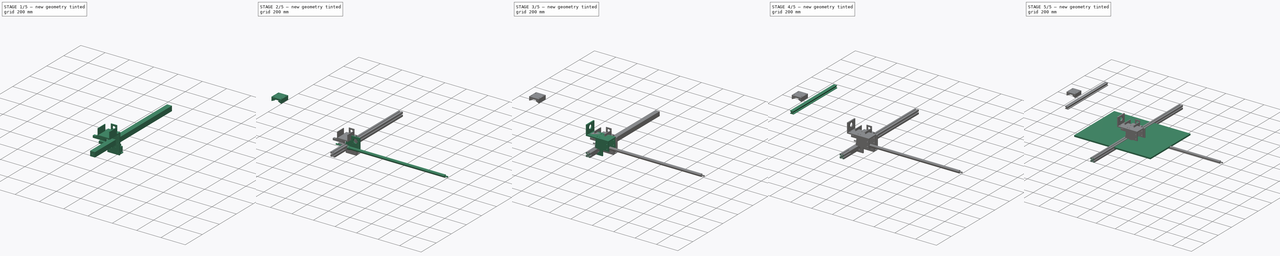
[diagram: build sequence overview — one tinted view per stage of 5, left to right]
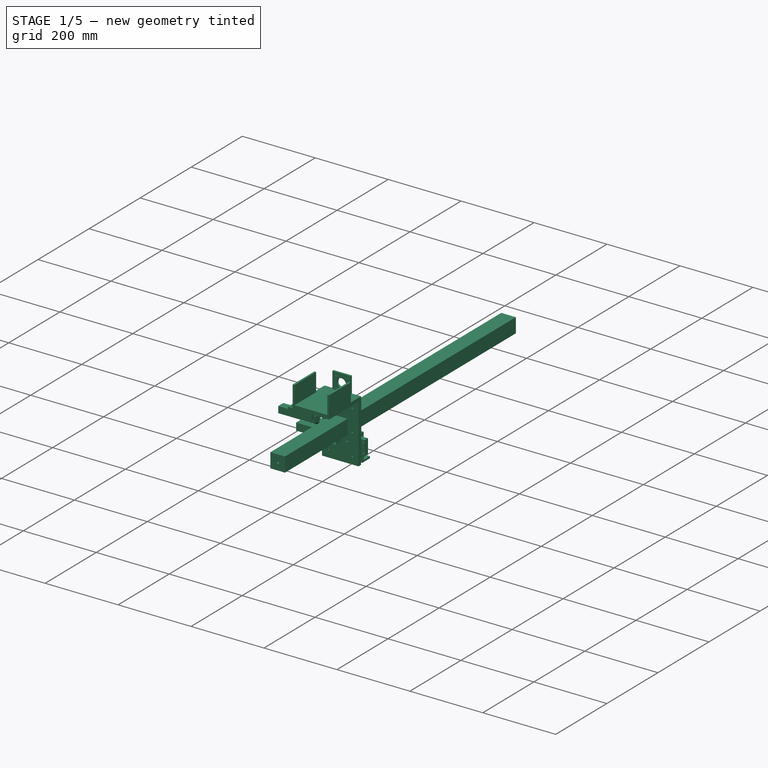
[diagram: stage 1 of 5 — iso view after this stage's code; geometry added in this stage tinted green]
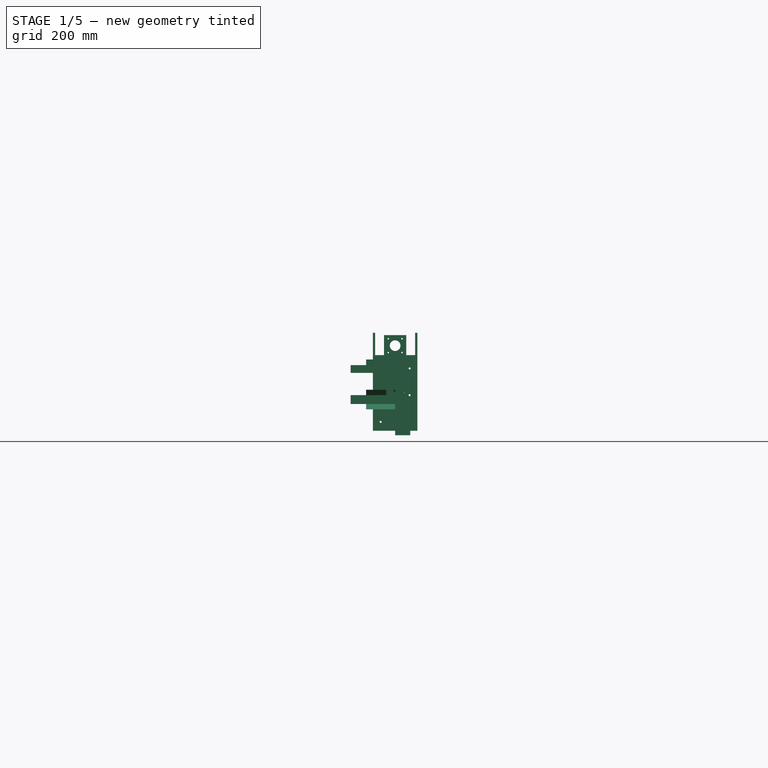
[diagram: stage 1 of 5 — front view after this stage's code; geometry added in this stage tinted green]
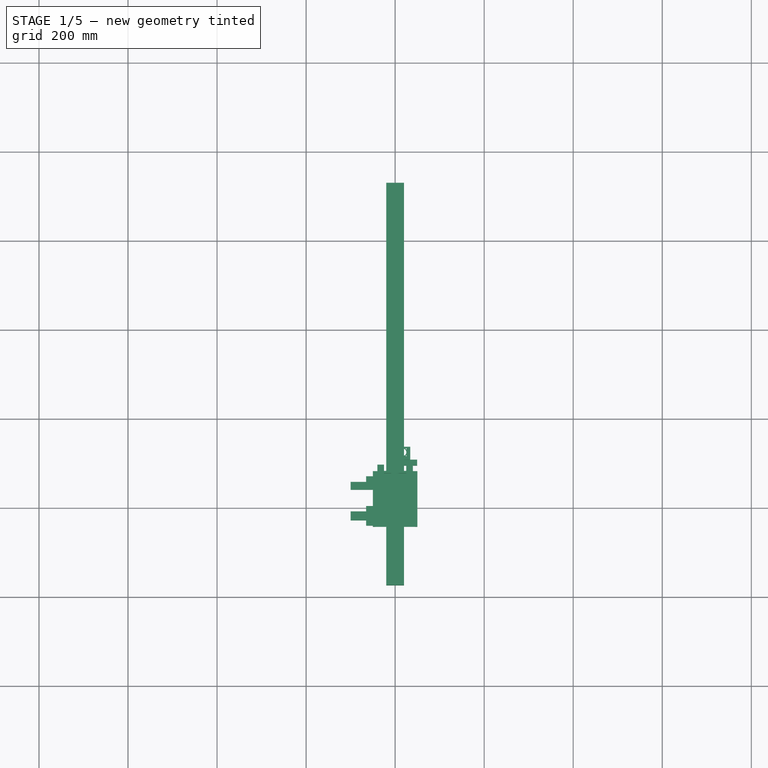
[diagram: stage 1 of 5 — top view after this stage's code; geometry added in this stage tinted green]
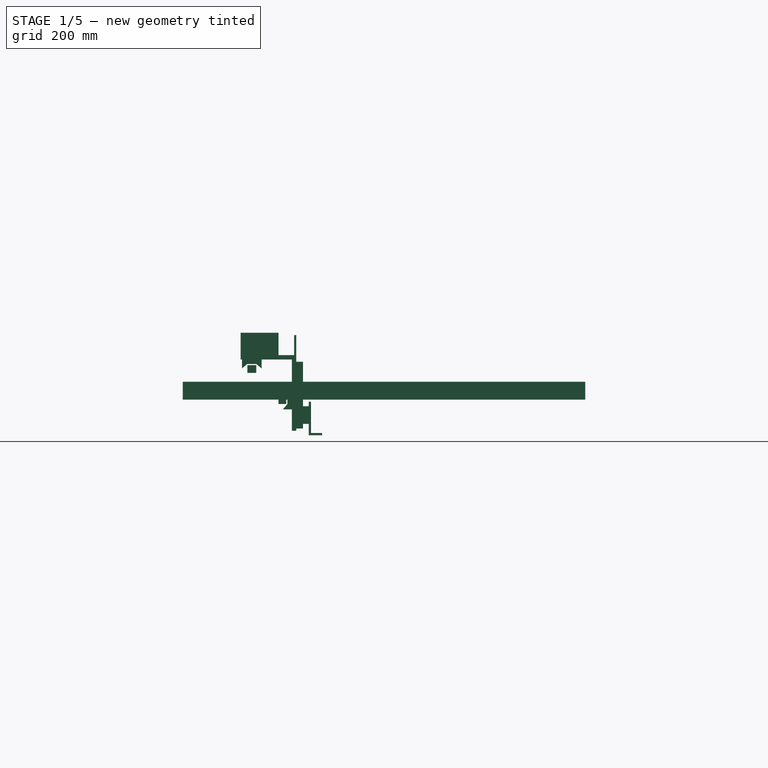
[diagram: stage 1 of 5 — right view after this stage's code; geometry added in this stage tinted green]
FCSTD DOCUMENT  (FreeCAD 0.19R24276 (Git))
Label: OpenPnp
License: All rights reserved
LicenseURL: http://en.wikipedia.org/wiki/All_rights_reserved
objects: Sketcher::SketchObject×99, PartDesign::Pad×55, PartDesign::Body×45, PartDesign::Pocket×44, PartDesign::PolarPattern×21, PartDesign::MultiTransform×21, App::LinkGroup×4, Part::Feature×4, PartDesign::Chamfer×1, App::Part×1
note: 390 computed .brp shape members not serialized (recipe doc carries the construction recipe); baked Part::Feature solids carry a one-line shape summary decoded from their .brp

FEATURE [PartDesign::Body] Body037  label="x_axis_screw"
  Group = -> [Sketch080,Pad043,Sketch081,Pad044,Sketch079,Pocket034]
  Origin = -> Origin038
  Placement = pos=(-98,-56,341) rot=(0,0,1;1.5708rad)
  Tip = -> Pocket034
FEATURE [Sketcher::SketchObject] Sketch082
  FullyConstrained = true
  MapMode = 5
  Placement = pos=(0,0,0) rot=(1,0,0;1.5708rad)
  Support = -> [XZ_Plane040]
  sketch-geometry (18):
    g0: LineSegment StartX=-4 StartY=20 StartZ=0 EndX=-4 EndY=15.5 EndZ=0
    g1: LineSegment StartX=-4 StartY=15.5 StartZ=0 EndX=-5.8 EndY=15.5 EndZ=0
    g2: LineSegment StartX=-5.8 StartY=15.5 StartZ=0 EndX=-5.8 EndY=18 EndZ=0
    g3: LineSegment StartX=-5.8 StartY=18 StartZ=0 EndX=-10 EndY=17 EndZ=0
    g4: LineSegment StartX=-10 StartY=17 StartZ=0 EndX=-10 EndY=13 EndZ=0
    g5: LineSegment StartX=-10 StartY=13 StartZ=0 EndX=-5.8 EndY=7.75 EndZ=0
    g6: LineSegment StartX=-5.8 StartY=7.75 StartZ=0 EndX=5.8 EndY=7.75 EndZ=0
    g7: LineSegment StartX=5.8 StartY=7.75 StartZ=0 EndX=10 EndY=13 EndZ=0
    g8: LineSegment StartX=10 StartY=13 StartZ=0 EndX=10 EndY=17 EndZ=0
    g9: LineSegment StartX=10 StartY=17 StartZ=0 EndX=5.8 EndY=18 EndZ=0
    g10: LineSegment StartX=5.8 StartY=18 StartZ=0 EndX=5.8 EndY=15.5 EndZ=0
    g11: LineSegment StartX=5.8 StartY=15.5 StartZ=0 EndX=4 EndY=15.5 EndZ=0
    g12: LineSegment StartX=4 StartY=15.5 StartZ=0 EndX=4 EndY=20 EndZ=0
    g13: LineSegment StartX=4 StartY=20 StartZ=0 EndX=-4 EndY=20 EndZ=0
    g14: LineSegment StartX=-14 StartY=18 StartZ=0 EndX=-18 EndY=18 EndZ=0
    g15: LineSegment StartX=-18 StartY=18 StartZ=0 EndX=-18 EndY=14 EndZ=0
    g16: LineSegment StartX=-18 StartY=14 StartZ=0 EndX=-14 EndY=14 EndZ=0
    g17: LineSegment StartX=-14 StartY=14 StartZ=0 EndX=-14 EndY=18 EndZ=0
  constraints (54):
    c: Vertical(g0)
    c: Coincident(g0,g1)
    c: Horizontal(g1)
    c: Coincident(g1,g2)
    c: Vertical(g2)
    c: Coincident(g2,g3)
    c: Coincident(g3,g4)
    c: Vertical(g4)
    c: Coincident(g4,g5)
    c: Coincident(g5,g6)
    c: Horizontal(g6)
    c: Coincident(g6,g7)
    c: Coincident(g7,g8)
    c: Vertical(g8)
    c: Coincident(g8,g9)
    c: Coincident(g9,g10)
    c: Coincident(g10,g11)
    c: Horizontal(g11)
    c: Coincident(g11,g12)
    c: Vertical(g12)
    c: Coincident(g12,g13)
    c: Coincident(g13,g0)
    c: Horizontal(g13)
    c: Vertical(g10)
    c: Distance(g12) = 4.5
    c: Distance(g0) = 4.5
    c: DistanceY(g5,g0) = 7.75
    c: Distance(g13) = 8
    c: Horizontal(g9,g2)
    c: Equal(g11,g1)
    c: Vertical(g10,g6)
    c: Vertical(g1,g5)
    c: Equal(g8,g4)
    c: Equal(g9,g3)
    c: Distance(g11) = 1.8
    c: DistanceY(g3,g2) = 1
    c: DistanceY(g2,g0) = 2
    c: Horizontal(g7,g4)
    c: Distance(g8) = 4
    c: DistanceX(g3,g8) = 20
    c: DistanceY(g-1,g12) = 20
    c: DistanceX(g-1,g12) = 4
    c: Coincident(g14,g15)
    c: Coincident(g15,g16)
    c: Coincident(g16,g17)
    c: Coincident(g17,g14)
    c: Horizontal(g14)
    c: Horizontal(g16)
    c: Vertical(g15)
    c: Vertical(g17)
    c: Equal(g17,g16)
    c: Distance(g17) = 4
    c: DistanceY(g-1,g14) = 18
    c: DistanceX(g14,g-1) = 18
FEATURE [PartDesign::PolarPattern] PolarPattern020
  Angle = 360
  Axis = -> Sketch082 [N_Axis]
  Occurrences = 4
  Placement = pos=(0,0,0) rot=(1,0,0;1.5708rad)
FEATURE [Sketcher::SketchObject] Sketch083
  FullyConstrained = true
  MapMode = 5
  Placement = pos=(0,0,0) rot=(1,0,0;1.5708rad)
  Support = -> [XZ_Plane039]
  sketch-geometry (18):
    g0: LineSegment StartX=-4 StartY=20 StartZ=0 EndX=-4 EndY=15.5 EndZ=0
    g1: LineSegment StartX=-4 StartY=15.5 StartZ=0 EndX=-5.8 EndY=15.5 EndZ=0
    g2: LineSegment StartX=-5.8 StartY=15.5 StartZ=0 EndX=-5.8 EndY=18 EndZ=0
    g3: LineSegment StartX=-5.8 StartY=18 StartZ=0 EndX=-10 EndY=17 EndZ=0
    g4: LineSegment StartX=-10 StartY=17 StartZ=0 EndX=-10 EndY=13 EndZ=0
    g5: LineSegment StartX=-10 StartY=13 StartZ=0 EndX=-5.8 EndY=7.75 EndZ=0
    g6: LineSegment StartX=-5.8 StartY=7.75 StartZ=0 EndX=5.8 EndY=7.75 EndZ=0
    g7: LineSegment StartX=5.8 StartY=7.75 StartZ=0 EndX=10 EndY=13 EndZ=0
    g8: LineSegment StartX=10 StartY=13 StartZ=0 EndX=10 EndY=17 EndZ=0
    g9: LineSegment StartX=10 StartY=17 StartZ=0 EndX=5.8 EndY=18 EndZ=0
    g10: LineSegment StartX=5.8 StartY=18 StartZ=0 EndX=5.8 EndY=15.5 EndZ=0
    g11: LineSegment StartX=5.8 StartY=15.5 StartZ=0 EndX=4 EndY=15.5 EndZ=0
    g12: LineSegment StartX=4 StartY=15.5 StartZ=0 EndX=4 EndY=20 EndZ=0
    g13: LineSegment StartX=4 StartY=20 StartZ=0 EndX=-4 EndY=20 EndZ=0
    g14: LineSegment StartX=-14 StartY=18 StartZ=0 EndX=-18 EndY=18 EndZ=0
    g15: LineSegment StartX=-18 StartY=18 StartZ=0 EndX=-18 EndY=14 EndZ=0
    g16: LineSegment StartX=-18 StartY=14 StartZ=0 EndX=-14 EndY=14 EndZ=0
    g17: LineSegment StartX=-14 StartY=14 StartZ=0 EndX=-14 EndY=18 EndZ=0
  constraints (54):
    c: Vertical(g0)
    c: Coincident(g0,g1)
    c: Horizontal(g1)
    c: Coincident(g1,g2)
    c: Vertical(g2)
    c: Coincident(g2,g3)
    c: Coincident(g3,g4)
    c: Vertical(g4)
    c: Coincident(g4,g5)
    c: Coincident(g5,g6)
    c: Horizontal(g6)
    c: Coincident(g6,g7)
    c: Coincident(g7,g8)
    c: Vertical(g8)
    c: Coincident(g8,g9)
    c: Coincident(g9,g10)
    c: Coincident(g10,g11)
    c: Horizontal(g11)
    c: Coincident(g11,g12)
    c: Vertical(g12)
    c: Coincident(g12,g13)
    c: Coincident(g13,g0)
    c: Horizontal(g13)
    c: Vertical(g10)
    c: Distance(g12) = 4.5
    c: Distance(g0) = 4.5
    c: DistanceY(g5,g0) = 7.75
    c: Distance(g13) = 8
    c: Horizontal(g9,g2)
    c: Equal(g11,g1)
    c: Vertical(g10,g6)
    c: Vertical(g1,g5)
    c: Equal(g8,g4)
    c: Equal(g9,g3)
    c: Distance(g11) = 1.8
    c: DistanceY(g3,g2) = 1
    c: DistanceY(g2,g0) = 2
    c: Horizontal(g7,g4)
    c: Distance(g8) = 4
    c: DistanceX(g3,g8) = 20
    c: DistanceY(g-1,g12) = 20
    c: DistanceX(g-1,g12) = 4
    c: Coincident(g14,g15)
    c: Coincident(g15,g16)
    c: Coincident(g16,g17)
    c: Coincident(g17,g14)
    c: Horizontal(g14)
    c: Horizontal(g16)
    c: Vertical(g15)
    c: Vertical(g17)
    c: Equal(g17,g16)
    c: Distance(g17) = 4
    c: DistanceY(g-1,g14) = 18
    c: DistanceX(g14,g-1) = 18
FEATURE [PartDesign::PolarPattern] PolarPattern018
  Angle = 360
  Axis = -> Sketch083 [N_Axis]
  Occurrences = 4
  Placement = pos=(0,0,0) rot=(1,0,0;1.5708rad)
FEATURE [Sketcher::SketchObject] Sketch084
  FullyConstrained = true
  MapMode = 5
  Placement = pos=(0,0,0) rot=(1,0,0;1.5708rad)
  Support = -> [XZ_Plane039]
  sketch-geometry (5):
    g0: Circle CenterX=0 CenterY=0 CenterZ=0 NormalX=0 NormalY=0 NormalZ=1 AngleXU=0 Radius=3.4
    g1: LineSegment StartX=-20 StartY=20 StartZ=0 EndX=20 EndY=20 EndZ=0
    g2: LineSegment StartX=20 StartY=20 StartZ=0 EndX=20 EndY=-20 EndZ=0
    g3: LineSegment StartX=20 StartY=-20 StartZ=0 EndX=-20 EndY=-20 EndZ=0
    g4: LineSegment StartX=-20 StartY=-20 StartZ=0 EndX=-20 EndY=20 EndZ=0
  constraints (14):
    c: Coincident(g0,g-1)
    c: Radius(g0) = 3.4
    c: Coincident(g1,g2)
    c: Coincident(g2,g3)
    c: Coincident(g3,g4)
    c: Coincident(g4,g1)
    c: Horizontal(g1)
    c: Horizontal(g3)
    c: Vertical(g2)
    c: Vertical(g4)
    c: Distance(g2) = 40
    c: Distance(g3) = 40
    c: DistanceX(g0,g2) = 20
    c: DistanceY(g3,g0) = 20
FEATURE [PartDesign::Pad] Pad046  label="base018"
  Direction = (1,1,1)
  Length = 175
  Length2 = 729
  Placement = pos=(0,0,0) rot=(1,0,0;1.5708rad)
  Profile = -> Sketch084
  Reversed = true
  Type = 4
FEATURE [PartDesign::Body] Body039  label="x_profile005"
  Group = -> [Sketch084,Pad046,Sketch083,Pocket036,MultiTransform018,PolarPattern018]
  Origin = -> Origin039
  Placement = pos=(-313,-56,229) rot=(0,0,-1;1.5708rad)
  Tip = -> MultiTransform018
FEATURE [Sketcher::SketchObject] Sketch085
  FullyConstrained = true
  MapMode = 5
  Placement = pos=(0,0,0) rot=(1,0,0;1.5708rad)
  Support = -> [XZ_Plane040]
  sketch-geometry (5):
    g0: Circle CenterX=0 CenterY=0 CenterZ=0 NormalX=0 NormalY=0 NormalZ=1 AngleXU=0 Radius=3.4
    g1: LineSegment StartX=-20 StartY=20 StartZ=0 EndX=20 EndY=20 EndZ=0
    g2: LineSegment StartX=20 StartY=20 StartZ=0 EndX=20 EndY=-20 EndZ=0
    g3: LineSegment StartX=20 StartY=-20 StartZ=0 EndX=-20 EndY=-20 EndZ=0
    g4: LineSegment StartX=-20 StartY=-20 StartZ=0 EndX=-20 EndY=20 EndZ=0
  constraints (14):
    c: Coincident(g0,g-1)
    c: Radius(g0) = 3.4
    c: Coincident(g1,g2)
    c: Coincident(g2,g3)
    c: Coincident(g3,g4)
    c: Coincident(g4,g1)
    c: Horizontal(g1)
    c: Horizontal(g3)
    c: Vertical(g2)
    c: Vertical(g4)
    c: Distance(g2) = 40
    c: Distance(g3) = 40
    c: DistanceX(g0,g2) = 20
    c: DistanceY(g3,g0) = 20
FEATURE [PartDesign::Pad] Pad045  label="base017"
  Direction = (1,1,1)
  Length = 175
  Length2 = 729
  Placement = pos=(0,0,0) rot=(1,0,0;1.5708rad)
  Profile = -> Sketch085
  Reversed = true
  Type = 4
FEATURE [PartDesign::Pocket] Pocket037  label="nut019"
  BaseFeature = -> Pad045
  Length = 1000
  Length2 = 1000
  Placement = pos=(0,0,0) rot=(1,0,0;1.5708rad)
  Profile = -> Sketch082
  Type = 4
FEATURE [PartDesign::MultiTransform] MultiTransform017
  BaseFeature = -> Pocket037
  Originals = -> [Pocket037]
  Placement = pos=(0,0,0) rot=(1,0,0;1.5708rad)
  Transformations = -> [PolarPattern020]
FEATURE [PartDesign::Body] Body041  label="x_profile007"
  Group = -> [Sketch085,Pad045,Sketch082,Pocket037,MultiTransform017,PolarPattern020]
  Origin = -> Origin042
  Placement = pos=(-313,-56,269) rot=(0,0,-1;1.5708rad)
  Tip = -> MultiTransform017
FEATURE [Sketcher::SketchObject] Sketch086
  FullyConstrained = true
  MapMode = 5
  Placement = pos=(0,0,0) rot=(1,0,0;1.5708rad)
  Support = -> [XZ_Plane042]
  sketch-geometry (18):
    g0: LineSegment StartX=-4 StartY=20 StartZ=0 EndX=-4 EndY=15.5 EndZ=0
    g1: LineSegment StartX=-4 StartY=15.5 StartZ=0 EndX=-5.8 EndY=15.5 EndZ=0
    g2: LineSegment StartX=-5.8 StartY=15.5 StartZ=0 EndX=-5.8 EndY=18 EndZ=0
    g3: LineSegment StartX=-5.8 StartY=18 StartZ=0 EndX=-10 EndY=17 EndZ=0
    g4: LineSegment StartX=-10 StartY=17 StartZ=0 EndX=-10 EndY=13 EndZ=0
    g5: LineSegment StartX=-10 StartY=13 StartZ=0 EndX=-5.8 EndY=7.75 EndZ=0
    g6: LineSegment StartX=-5.8 StartY=7.75 StartZ=0 EndX=5.8 EndY=7.75 EndZ=0
    g7: LineSegment StartX=5.8 StartY=7.75 StartZ=0 EndX=10 EndY=13 EndZ=0
    g8: LineSegment StartX=10 StartY=13 StartZ=0 EndX=10 EndY=17 EndZ=0
    g9: LineSegment StartX=10 StartY=17 StartZ=0 EndX=5.8 EndY=18 EndZ=0
    g10: LineSegment StartX=5.8 StartY=18 StartZ=0 EndX=5.8 EndY=15.5 EndZ=0
    g11: LineSegment StartX=5.8 StartY=15.5 StartZ=0 EndX=4 EndY=15.5 EndZ=0
    g12: LineSegment StartX=4 StartY=15.5 StartZ=0 EndX=4 EndY=20 EndZ=0
    g13: LineSegment StartX=4 StartY=20 StartZ=0 EndX=-4 EndY=20 EndZ=0
    g14: LineSegment StartX=-14 StartY=18 StartZ=0 EndX=-18 EndY=18 EndZ=0
    g15: LineSegment StartX=-18 StartY=18 StartZ=0 EndX=-18 EndY=14 EndZ=0
    g16: LineSegment StartX=-18 StartY=14 StartZ=0 EndX=-14 EndY=14 EndZ=0
    g17: LineSegment StartX=-14 StartY=14 StartZ=0 EndX=-14 EndY=18 EndZ=0
  constraints (54):
    c: Vertical(g0)
    c: Coincident(g0,g1)
    c: Horizontal(g1)
    c: Coincident(g1,g2)
    c: Vertical(g2)
    c: Coincident(g2,g3)
    c: Coincident(g3,g4)
    c: Vertical(g4)
    c: Coincident(g4,g5)
    c: Coincident(g5,g6)
    c: Horizontal(g6)
    c: Coincident(g6,g7)
    c: Coincident(g7,g8)
    c: Vertical(g8)
    c: Coincident(g8,g9)
    c: Coincident(g9,g10)
    c: Coincident(g10,g11)
    c: Horizontal(g11)
    c: Coincident(g11,g12)
    c: Vertical(g12)
    c: Coincident(g12,g13)
    c: Coincident(g13,g0)
    c: Horizontal(g13)
    c: Vertical(g10)
    c: Distance(g12) = 4.5
    c: Distance(g0) = 4.5
    c: DistanceY(g5,g0) = 7.75
    c: Distance(g13) = 8
    c: Horizontal(g9,g2)
    c: Equal(g11,g1)
    c: Vertical(g10,g6)
    c: Vertical(g1,g5)
    c: Equal(g8,g4)
    c: Equal(g9,g3)
    c: Distance(g11) = 1.8
    c: DistanceY(g3,g2) = 1
    c: DistanceY(g2,g0) = 2
    c: Horizontal(g7,g4)
    c: Distance(g8) = 4
    c: DistanceX(g3,g8) = 20
    c: DistanceY(g-1,g12) = 20
    c: DistanceX(g-1,g12) = 4
    c: Coincident(g14,g15)
    c: Coincident(g15,g16)
    c: Coincident(g16,g17)
    c: Coincident(g17,g14)
    c: Horizontal(g14)
    c: Horizontal(g16)
    c: Vertical(g15)
    c: Vertical(g17)
    c: Equal(g17,g16)
    c: Distance(g17) = 4
    c: DistanceY(g-1,g14) = 18
    c: DistanceX(g14,g-1) = 18
FEATURE [PartDesign::PolarPattern] PolarPattern019
  Angle = 360
  Axis = -> Sketch086 [N_Axis]
  Occurrences = 4
  Placement = pos=(0,0,0) rot=(1,0,0;1.5708rad)
FEATURE [Sketcher::SketchObject] Sketch087
  FullyConstrained = true
  MapMode = 5
  Placement = pos=(0,0,0) rot=(1,0,0;1.5708rad)
  Support = -> [XZ_Plane041]
  sketch-geometry (18):
    g0: LineSegment StartX=-4 StartY=20 StartZ=0 EndX=-4 EndY=15.5 EndZ=0
    g1: LineSegment StartX=-4 StartY=15.5 StartZ=0 EndX=-5.8 EndY=15.5 EndZ=0
    g2: LineSegment StartX=-5.8 StartY=15.5 StartZ=0 EndX=-5.8 EndY=18 EndZ=0
    g3: LineSegment StartX=-5.8 StartY=18 StartZ=0 EndX=-10 EndY=17 EndZ=0
    g4: LineSegment StartX=-10 StartY=17 StartZ=0 EndX=-10 EndY=13 EndZ=0
    g5: LineSegment StartX=-10 StartY=13 StartZ=0 EndX=-5.8 EndY=7.75 EndZ=0
    g6: LineSegment StartX=-5.8 StartY=7.75 StartZ=0 EndX=5.8 EndY=7.75 EndZ=0
    g7: LineSegment StartX=5.8 StartY=7.75 StartZ=0 EndX=10 EndY=13 EndZ=0
    g8: LineSegment StartX=10 StartY=13 StartZ=0 EndX=10 EndY=17 EndZ=0
    g9: LineSegment StartX=10 StartY=17 StartZ=0 EndX=5.8 EndY=18 EndZ=0
    g10: LineSegment StartX=5.8 StartY=18 StartZ=0 EndX=5.8 EndY=15.5 EndZ=0
    g11: LineSegment StartX=5.8 StartY=15.5 StartZ=0 EndX=4 EndY=15.5 EndZ=0
    g12: LineSegment StartX=4 StartY=15.5 StartZ=0 EndX=4 EndY=20 EndZ=0
    g13: LineSegment StartX=4 StartY=20 StartZ=0 EndX=-4 EndY=20 EndZ=0
    g14: LineSegment StartX=-14 StartY=18 StartZ=0 EndX=-18 EndY=18 EndZ=0
    g15: LineSegment StartX=-18 StartY=18 StartZ=0 EndX=-18 EndY=14 EndZ=0
    g16: LineSegment StartX=-18 StartY=14 StartZ=0 EndX=-14 EndY=14 EndZ=0
    g17: LineSegment StartX=-14 StartY=14 StartZ=0 EndX=-14 EndY=18 EndZ=0
  constraints (54):
    c: Vertical(g0)
    c: Coincident(g0,g1)
    c: Horizontal(g1)
    c: Coincident(g1,g2)
    c: Vertical(g2)
    c: Coincident(g2,g3)
    c: Coincident(g3,g4)
    c: Vertical(g4)
    c: Coincident(g4,g5)
    c: Coincident(g5,g6)
    c: Horizontal(g6)
    c: Coincident(g6,g7)
    c: Coincident(g7,g8)
    c: Vertical(g8)
    c: Coincident(g8,g9)
    c: Coincident(g9,g10)
    c: Coincident(g10,g11)
    c: Horizontal(g11)
    c: Coincident(g11,g12)
    c: Vertical(g12)
    c: Coincident(g12,g13)
    c: Coincident(g13,g0)
    c: Horizontal(g13)
    c: Vertical(g10)
    c: Distance(g12) = 4.5
    c: Distance(g0) = 4.5
    c: DistanceY(g5,g0) = 7.75
    c: Distance(g13) = 8
    c: Horizontal(g9,g2)
    c: Equal(g11,g1)
    c: Vertical(g10,g6)
    c: Vertical(g1,g5)
    c: Equal(g8,g4)
    c: Equal(g9,g3)
    c: Distance(g11) = 1.8
    c: DistanceY(g3,g2) = 1
    c: DistanceY(g2,g0) = 2
    c: Horizontal(g7,g4)
    c: Distance(g8) = 4
    c: DistanceX(g3,g8) = 20
    c: DistanceY(g-1,g12) = 20
    c: DistanceX(g-1,g12) = 4
    c: Coincident(g14,g15)
    c: Coincident(g15,g16)
    c: Coincident(g16,g17)
    c: Coincident(g17,g14)
    c: Horizontal(g14)
    c: Horizontal(g16)
    c: Vertical(g15)
    c: Vertical(g17)
    c: Equal(g17,g16)
    c: Distance(g17) = 4
    c: DistanceY(g-1,g14) = 18
    c: DistanceX(g14,g-1) = 18
FEATURE [PartDesign::PolarPattern] PolarPattern017
  Angle = 360
  Axis = -> Sketch087 [N_Axis]
  Occurrences = 4
  Placement = pos=(0,0,0) rot=(1,0,0;1.5708rad)
FEATURE [Sketcher::SketchObject] Sketch088
  FullyConstrained = true
  MapMode = 5
  Placement = pos=(0,0,0) rot=(1,0,0;1.5708rad)
  Support = -> [XZ_Plane042]
  sketch-geometry (5):
    g0: Circle CenterX=0 CenterY=0 CenterZ=0 NormalX=0 NormalY=0 NormalZ=1 AngleXU=0 Radius=3.4
    g1: LineSegment StartX=-20 StartY=20 StartZ=0 EndX=20 EndY=20 EndZ=0
    g2: LineSegment StartX=20 StartY=20 StartZ=0 EndX=20 EndY=-20 EndZ=0
    g3: LineSegment StartX=20 StartY=-20 StartZ=0 EndX=-20 EndY=-20 EndZ=0
    g4: LineSegment StartX=-20 StartY=-20 StartZ=0 EndX=-20 EndY=20 EndZ=0
  constraints (14):
    c: Coincident(g0,g-1)
    c: Radius(g0) = 3.4
    c: Coincident(g1,g2)
    c: Coincident(g2,g3)
    c: Coincident(g3,g4)
    c: Coincident(g4,g1)
    c: Horizontal(g1)
    c: Horizontal(g3)
    c: Vertical(g2)
    c: Vertical(g4)
    c: Distance(g2) = 40
    c: Distance(g3) = 40
    c: DistanceX(g0,g2) = 20
    c: DistanceY(g3,g0) = 20
FEATURE [PartDesign::Pad] Pad048  label="base020"
  Direction = (1,1,1)
  Length = 175
  Length2 = 729
  Placement = pos=(0,0,0) rot=(1,0,0;1.5708rad)
  Profile = -> Sketch088
  Reversed = true
  Type = 4
FEATURE [PartDesign::Body] Body040  label="x_profile006"
  Group = -> [Sketch088,Pad048,Sketch086,Pocket035,MultiTransform020,PolarPattern019]
  Origin = -> Origin040
  Placement = pos=(-313,-96,269) rot=(0,0,-1;1.5708rad)
  Tip = -> MultiTransform020
FEATURE [Sketcher::SketchObject] Sketch089
  FullyConstrained = true
  MapMode = 5
  Placement = pos=(0,0,0) rot=(1,0,0;1.5708rad)
  Support = -> [XZ_Plane041]
  sketch-geometry (5):
    g0: Circle CenterX=0 CenterY=0 CenterZ=0 NormalX=0 NormalY=0 NormalZ=1 AngleXU=0 Radius=3.4
    g1: LineSegment StartX=-20 StartY=20 StartZ=0 EndX=20 EndY=20 EndZ=0
    g2: LineSegment StartX=20 StartY=20 StartZ=0 EndX=20 EndY=-20 EndZ=0
    g3: LineSegment StartX=20 StartY=-20 StartZ=0 EndX=-20 EndY=-20 EndZ=0
    g4: LineSegment StartX=-20 StartY=-20 StartZ=0 EndX=-20 EndY=20 EndZ=0
  constraints (14):
    c: Coincident(g0,g-1)
    c: Radius(g0) = 3.4
    c: Coincident(g1,g2)
    c: Coincident(g2,g3)
    c: Coincident(g3,g4)
    c: Coincident(g4,g1)
    c: Horizontal(g1)
    c: Horizontal(g3)
    c: Vertical(g2)
    c: Vertical(g4)
    c: Distance(g2) = 40
    c: Distance(g3) = 40
    c: DistanceX(g0,g2) = 20
    c: DistanceY(g3,g0) = 20
FEATURE [PartDesign::Pad] Pad047  label="base019"
  Direction = (1,1,1)
  Length = 175
  Length2 = 729
  Placement = pos=(0,0,0) rot=(1,0,0;1.5708rad)
  Profile = -> Sketch089
  Reversed = true
  Type = 4
FEATURE [PartDesign::Body] Body038  label="x_profile004"
  Group = -> [Sketch089,Pad047,Sketch087,Pocket038,MultiTransform019,PolarPattern017]
  Origin = -> Origin041
  Placement = pos=(-313,-96,229) rot=(0,0,-1;1.5708rad)
  Tip = -> MultiTransform019
FEATURE [App::LinkGroup] LinkGroup002  label="x_axis_copy"
  ElementList = -> [Body040,Body038,Body039,Body041]
  LinkMode = 0
  Placement = pos=(-416,76.0001,-249) rot=(0,0,1;0rad)
FEATURE [Sketcher::SketchObject] Sketch090
  FullyConstrained = true
  MapMode = 5
  Placement = pos=(0,0,0) rot=(0.57735,0.57735,0.57735;2.0944rad)
  Support = -> [YZ_Plane043]
  sketch-geometry (6):
    g0: LineSegment StartX=50 StartY=2 StartZ=0 EndX=70 EndY=2 EndZ=0
    g1: LineSegment StartX=70 StartY=2 StartZ=0 EndX=70 EndY=-42 EndZ=0
    g2: LineSegment StartX=70 StartY=-42 StartZ=0 EndX=50 EndY=-42 EndZ=0
    g3: LineSegment StartX=50 StartY=-42 StartZ=0 EndX=60 EndY=-30 EndZ=0
    g4: LineSegment StartX=60 StartY=-30 StartZ=0 EndX=60 EndY=-10 EndZ=0
    g5: LineSegment StartX=60 StartY=-10 StartZ=0 EndX=50 EndY=2 EndZ=0
  constraints (18):
    c: Horizontal(g0)
    c: Coincident(g0,g1)
    c: Vertical(g1)
    c: Coincident(g1,g2)
    c: Horizontal(g2)
    c: Coincident(g2,g3)
    c: Coincident(g3,g4)
    c: Vertical(g4)
    c: Coincident(g4,g5)
    c: Coincident(g0,g5)
    c: Distance(g4) = 20
    c: DistanceX(g-1,g0) = 70
    c: Distance(g1) = 44
    c: DistanceY(g4,g0) = 12
    c: DistanceX(g-1,g4) = 60
    c: DistanceY(g4,g-1) = 10
    c: Vertical(g0,g2)
    c: DistanceX(g-1,g0) = 50
FEATURE [PartDesign::Pad] Pad049
  Direction = (1,1,1)
  Length = 65.2
  Length2 = 100
  Placement = pos=(0,0,0) rot=(0.57735,0.57735,0.57735;2.0944rad)
  Profile = -> Sketch090
  Reversed = true
  Type = 0
FEATURE [Sketcher::SketchObject] Sketch091
  FullyConstrained = true
  MapMode = 5
  Placement = pos=(0,0,0) rot=(0.57735,0.57735,0.57735;2.0944rad)
  Support = -> [YZ_Plane044]
  sketch-geometry (4):
    g0: LineSegment StartX=40 StartY=-10 StartZ=0 EndX=57.5 EndY=-10 EndZ=0
    g1: LineSegment StartX=57.5 StartY=-10 StartZ=0 EndX=57.5 EndY=-30 EndZ=0
    g2: LineSegment StartX=57.5 StartY=-30 StartZ=0 EndX=40 EndY=-30 EndZ=0
    g3: LineSegment StartX=40 StartY=-30 StartZ=0 EndX=40 EndY=-10 EndZ=0
  constraints (12):
    c: Coincident(g0,g1)
    c: Coincident(g1,g2)
    c: Coincident(g2,g3)
    c: Coincident(g3,g0)
    c: Horizontal(g0)
    c: Horizontal(g2)
    c: Vertical(g1)
    c: Vertical(g3)
    c: Distance(g1) = 20
    c: Distance(g0) = 17.5
    c: DistanceY(g0,g-1) = 10
    c: DistanceX(g-1,g0) = 40
FEATURE [PartDesign::Pad] Pad050
  Direction = (1,1,1)
  Length = 100
  Length2 = 100
  Placement = pos=(0,0,0) rot=(0.57735,0.57735,0.57735;2.0944rad)
  Profile = -> Sketch091
  Reversed = true
  Type = 0
FEATURE [PartDesign::Body] Body043  label="x_axis_lower_rail_1"
  Group = -> [Sketch091,Pad050]
  Origin = -> Origin044
  Tip = -> Pad050
FEATURE [Sketcher::SketchObject] Sketch092
  FullyConstrained = true
  MapMode = 5
  Placement = pos=(3.08e-14,70,-1.54e-14) rot=(0.57735,0.57735,0.57735;4.18879rad)
  Support = -> [Pad049]
  sketch-geometry (7):
    g0: Circle CenterX=-4 CenterY=-7.6 CenterZ=0 NormalX=0 NormalY=0 NormalZ=1 AngleXU=0 Radius=2.55
    g1: Circle CenterX=-4 CenterY=-57.6 CenterZ=0 NormalX=0 NormalY=0 NormalZ=1 AngleXU=0 Radius=2.55
    g2: LineSegment StartX=-4 StartY=-7.6 StartZ=0 EndX=-4 EndY=-57.6 EndZ=0
    g3: Circle CenterX=-36 CenterY=-7.6 CenterZ=0 NormalX=0 NormalY=0 NormalZ=1 AngleXU=0 Radius=2.55
    g4: LineSegment StartX=-4 StartY=-7.6 StartZ=0 EndX=-36 EndY=-7.6 EndZ=0
    g5: Circle CenterX=-36 CenterY=-57.6 CenterZ=0 NormalX=0 NormalY=0 NormalZ=1 AngleXU=0 Radius=2.55
    g6: LineSegment StartX=-36 StartY=-7.6 StartZ=0 EndX=-36 EndY=-57.6 EndZ=0
  constraints (18):
    c: Radius(g0) = 2.55
    c: Equal(g0,g1) = 2.55
    c: Coincident(g0,g2)
    c: Coincident(g1,g2)
    c: Distance(g2) = 50
    c: Angle(g2) = -1.5708
    c: Equal(g0,g3) = 2.55
    c: Coincident(g0,g4)
    c: Coincident(g3,g4)
    c: Distance(g4) = 32
    c: Perpendicular(g4,g2)
    c: Equal(g0,g5) = 2.55
    c: Coincident(g3,g6)
    c: Coincident(g5,g6)
    c: Equal(g2,g6)
    c: Parallel(g6,g2)
    c: DistanceX(g0,g-1) = 4
    c: DistanceY(g0) = -7.6
FEATURE [PartDesign::Pocket] Pocket039
  BaseFeature = -> Pad049
  Length = 8
  Length2 = 100
  Placement = pos=(0,0,0) rot=(0.57735,0.57735,0.57735;2.0944rad)
  Profile = -> Sketch092
  Type = 0
FEATURE [PartDesign::Body] Body042  label="x_axis_vehicle_1_HGR20CA"
  Group = -> [Sketch090,Pad049,Sketch092,Pocket039]
  Origin = -> Origin043
  Tip = -> Pocket039
FEATURE [Sketcher::SketchObject] Sketch093
  FullyConstrained = true
  MapMode = 5
  Placement = pos=(0,0,0) rot=(0.57735,0.57735,0.57735;2.0944rad)
  Support = -> [YZ_Plane045]
  sketch-geometry (4):
    g0: LineSegment StartX=-30 StartY=40 StartZ=0 EndX=-10 EndY=40 EndZ=0
    g1: LineSegment StartX=-10 StartY=40 StartZ=0 EndX=-10 EndY=57.5 EndZ=0
    g2: LineSegment StartX=-10 StartY=57.5 StartZ=0 EndX=-30 EndY=57.5 EndZ=0
    g3: LineSegment StartX=-30 StartY=57.5 StartZ=0 EndX=-30 EndY=40 EndZ=0
  constraints (12):
    c: Coincident(g0,g1)
    c: Coincident(g1,g2)
    c: Coincident(g2,g3)
    c: Coincident(g3,g0)
    c: Horizontal(g0)
    c: Horizontal(g2)
    c: Vertical(g1)
    c: Vertical(g3)
    c: Distance(g2) = 20
    c: Distance(g3) = 17.5
    c: DistanceX(g0,g-1) = 10
    c: DistanceY(g-1,g0) = 40
FEATURE [PartDesign::Pad] Pad051
  Direction = (1,1,1)
  Length = 100
  Length2 = 100
  Placement = pos=(0,0,0) rot=(0.57735,0.57735,0.57735;2.0944rad)
  Profile = -> Sketch093
  Reversed = true
  Type = 0
FEATURE [PartDesign::Body] Body044  label="x_axis_lower_rail_2"
  Group = -> [Sketch093,Pad051]
  Origin = -> Origin045
  Tip = -> Pad051
FEATURE [Sketcher::SketchObject] Sketch094
  FullyConstrained = true
  MapMode = 5
  Placement = pos=(0,0,0) rot=(0.57735,0.57735,0.57735;2.0944rad)
  Support = -> [YZ_Plane046]
  sketch-geometry (6):
    g0: LineSegment StartX=-42 StartY=50 StartZ=0 EndX=-30 EndY=60 EndZ=0
    g1: LineSegment StartX=-30 StartY=60 StartZ=0 EndX=-10 EndY=60 EndZ=0
    g2: LineSegment StartX=-10 StartY=60 StartZ=0 EndX=2 EndY=50 EndZ=0
    g3: LineSegment StartX=2 StartY=50 StartZ=0 EndX=2 EndY=70 EndZ=0
    g4: LineSegment StartX=2 StartY=70 StartZ=0 EndX=-42 EndY=70 EndZ=0
    g5: LineSegment StartX=-42 StartY=70 StartZ=0 EndX=-42 EndY=50 EndZ=0
  constraints (18):
    c: Coincident(g0,g1)
    c: Horizontal(g1)
    c: Coincident(g1,g2)
    c: Coincident(g2,g3)
    c: Vertical(g3)
    c: Coincident(g3,g4)
    c: Horizontal(g4)
    c: Coincident(g4,g5)
    c: Coincident(g5,g0)
    c: Vertical(g5)
    c: DistanceX(g4,g0) = 12
    c: Distance(g1) = 20
    c: Horizontal(g2,g0)
    c: DistanceY(g-1,g3) = 70
    c: DistanceY(g-1,g2) = 50
    c: DistanceX(g1,g3) = 12
    c: DistanceY(g-1,g1) = 60
    c: DistanceX(g-1,g2) = 2
FEATURE [PartDesign::Pad] Pad052
  Direction = (1,1,1)
  Length = 65.2
  Length2 = 100
  Placement = pos=(0,0,0) rot=(0.57735,0.57735,0.57735;2.0944rad)
  Profile = -> Sketch094
  Reversed = true
  Type = 0
FEATURE [Sketcher::SketchObject] Sketch095
  FullyConstrained = true
  MapMode = 5
  Placement = pos=(-1.96e-14,3.08e-14,70) rot=(0,0,-1;1.5708rad)
  Support = -> [Pad052]
  sketch-geometry (7):
    g0: Circle CenterX=36 CenterY=-7.6 CenterZ=0 NormalX=0 NormalY=0 NormalZ=1 AngleXU=0 Radius=2.55
    g1: Circle CenterX=36 CenterY=-57.6 CenterZ=0 NormalX=0 NormalY=0 NormalZ=1 AngleXU=0 Radius=2.55
    g2: LineSegment StartX=36 StartY=-7.6 StartZ=0 EndX=36 EndY=-57.6 EndZ=0
    g3: Circle CenterX=4 CenterY=-7.6 CenterZ=0 NormalX=0 NormalY=0 NormalZ=1 AngleXU=0 Radius=2.55
    g4: LineSegment StartX=36 StartY=-7.6 StartZ=0 EndX=4 EndY=-7.6 EndZ=0
    g5: Circle CenterX=4 CenterY=-57.6 CenterZ=0 NormalX=0 NormalY=0 NormalZ=1 AngleXU=0 Radius=2.55
    g6: LineSegment StartX=4 StartY=-7.6 StartZ=0 EndX=4 EndY=-57.6 EndZ=0
  constraints (18):
    c: Radius(g0) = 2.55
    c: Equal(g0,g1) = 2.55
    c: Coincident(g0,g2)
    c: Coincident(g1,g2)
    c: Distance(g2) = 50
    c: Angle(g2) = -1.5708
    c: Equal(g0,g3) = 2.55
    c: Coincident(g0,g4)
    c: Coincident(g3,g4)
    c: Distance(g4) = 32
    c: Perpendicular(g4,g2)
    c: Equal(g0,g5) = 2.55
    c: Coincident(g3,g6)
    c: Coincident(g5,g6)
    c: Equal(g2,g6)
    c: Parallel(g6,g2)
    c: DistanceY(g0) = -7.6
    c: DistanceX(g-1,g3) = 4
FEATURE [PartDesign::Pocket] Pocket040
  BaseFeature = -> Pad052
  Length = 8
  Length2 = 100
  Placement = pos=(0,0,0) rot=(0.57735,0.57735,0.57735;2.0944rad)
  Profile = -> Sketch095
  Type = 0
FEATURE [PartDesign::Body] Body045  label="x_axis_vehicle_2_HGR_20CA"
  Group = -> [Sketch094,Pad052,Sketch095,Pocket040]
  Origin = -> Origin046
  Tip = -> Pocket040
FEATURE [Sketcher::SketchObject] Sketch096
  FullyConstrained = true
  MapMode = 5
  Placement = pos=(0,0,0) rot=(0.57735,0.57735,0.57735;2.0944rad)
  Support = -> [YZ_Plane047]
  sketch-geometry (8):
    g0: LineSegment StartX=-45 StartY=130 StartZ=0 EndX=-45 EndY=70 EndZ=0
    g1: LineSegment StartX=-45 StartY=70 StartZ=0 EndX=70 EndY=70 EndZ=0
    g2: LineSegment StartX=70 StartY=70 StartZ=0 EndX=70 EndY=-90 EndZ=0
    g3: LineSegment StartX=70 StartY=-90 StartZ=0 EndX=80 EndY=-90 EndZ=0
    g4: LineSegment StartX=80 StartY=-90 StartZ=0 EndX=80 EndY=80 EndZ=0
    g5: LineSegment StartX=80 StartY=80 StartZ=0 EndX=40 EndY=80 EndZ=0
    g6: LineSegment StartX=40 StartY=80 StartZ=0 EndX=40 EndY=130 EndZ=0
    g7: LineSegment StartX=40 StartY=130 StartZ=0 EndX=-45 EndY=130 EndZ=0
  constraints (24):
    c: Vertical(g0)
    c: Coincident(g0,g1)
    c: Horizontal(g1)
    c: Coincident(g1,g2)
    c: Vertical(g2)
    c: Coincident(g2,g3)
    c: Horizontal(g3)
    c: Coincident(g3,g4)
    c: Vertical(g4)
    c: Coincident(g4,g5)
    c: Horizontal(g5)
    c: Coincident(g5,g6)
    c: Vertical(g6)
    c: Coincident(g6,g7)
    c: Horizontal(g7)
    c: Coincident(g0,g7)
    c: DistanceX(g0,g-1) = 45
    c: DistanceY(g1,g4) = 10
    c: Distance(g3) = 10
    c: DistanceX(g-1,g2) = 70
    c: DistanceY(g-1,g0) = 70
    c: DistanceY(g2,g-1) = 90
    c: DistanceX(g-1,g5) = 40
    c: Distance(g6) = 50
FEATURE [PartDesign::Pad] Pad053
  Direction = (1,1,1)
  Length = 50
  Length2 = 50
  Placement = pos=(0,0,0) rot=(0.57735,0.57735,0.57735;2.0944rad)
  Profile = -> Sketch096
  Type = 4
FEATURE [Sketcher::SketchObject] Sketch097
  FullyConstrained = true
  MapMode = 5
  Placement = pos=(3.52e-14,80,-1.76e-14) rot=(0.57735,0.57735,0.57735;4.18879rad)
  Support = -> [Pad053]
  sketch-geometry (7):
    g0: Circle CenterX=-36 CenterY=18 CenterZ=0 NormalX=0 NormalY=0 NormalZ=1 AngleXU=0 Radius=2.6
    g1: Circle CenterX=-4 CenterY=18 CenterZ=0 NormalX=0 NormalY=0 NormalZ=1 AngleXU=0 Radius=2.6
    g2: LineSegment StartX=-36 StartY=18 StartZ=0 EndX=-4 EndY=18 EndZ=0
    g3: Circle CenterX=-36 CenterY=-18 CenterZ=0 NormalX=0 NormalY=0 NormalZ=1 AngleXU=0 Radius=2.6
    g4: LineSegment StartX=-36 StartY=18 StartZ=0 EndX=-36 EndY=-18 EndZ=0
    g5: Circle CenterX=-4 CenterY=-18 CenterZ=0 NormalX=0 NormalY=0 NormalZ=1 AngleXU=0 Radius=2.6
    g6: LineSegment StartX=-36 StartY=-18 StartZ=0 EndX=-4 EndY=-18 EndZ=0
  constraints (18):
    c: Radius(g0) = 2.6
    c: Equal(g0,g1) = 2.6
    c: Coincident(g0,g2)
    c: Coincident(g1,g2)
    c: Distance(g2) = 32
    c: Angle(g2) = 0
    c: Equal(g0,g3) = 2.6
    c: Coincident(g0,g4)
    c: Coincident(g3,g4)
    c: Distance(g4) = 36
    c: Perpendicular(g4,g2)
    c: Equal(g0,g5) = 2.6
    c: Coincident(g3,g6)
    c: Coincident(g5,g6)
    c: Equal(g2,g6)
    c: Parallel(g6,g2)
    c: DistanceX(g1,g-1) = 4
    c: DistanceY(g-1,g1) = 18
FEATURE [PartDesign::Pocket] Pocket041
  BaseFeature = -> Pad053
  Length = 10
  Length2 = 100
  Placement = pos=(0,0,0) rot=(0.57735,0.57735,0.57735;2.0944rad)
  Profile = -> Sketch097
  Type = 0
FEATURE [Sketcher::SketchObject] Sketch099
  FullyConstrained = true
  MapMode = 5
  Placement = pos=(3.52e-14,80,-1.76e-14) rot=(0.57735,0.57735,0.57735;4.18879rad)
  Support = -> [Pocket041]
  sketch-geometry (8):
    g0: LineSegment StartX=-85 StartY=40 StartZ=0 EndX=65 EndY=40 EndZ=0
    g1: LineSegment StartX=65 StartY=40 StartZ=0 EndX=65 EndY=25 EndZ=0
    g2: LineSegment StartX=65 StartY=25 StartZ=0 EndX=-85 EndY=25 EndZ=0
    g3: LineSegment StartX=-85 StartY=25 StartZ=0 EndX=-85 EndY=40 EndZ=0
    g4: LineSegment StartX=-85 StartY=-25 StartZ=0 EndX=65 EndY=-25 EndZ=0
    g5: LineSegment StartX=65 StartY=-25 StartZ=0 EndX=65 EndY=-40 EndZ=0
    g6: LineSegment StartX=65 StartY=-40 StartZ=0 EndX=-85 EndY=-40 EndZ=0
    g7: LineSegment StartX=-85 StartY=-40 StartZ=0 EndX=-85 EndY=-25 EndZ=0
  constraints (24):
    c: Coincident(g0,g1)
    c: Coincident(g1,g2)
    c: Coincident(g2,g3)
    c: Coincident(g3,g0)
    c: Horizontal(g0)
    c: Horizontal(g2)
    c: Vertical(g1)
    c: Vertical(g3)
    c: Distance(g1) = 15
    c: Distance(g2) = 150
    c: DistanceY(g-1,g1) = 25
    c: DistanceX(g2,g-1) = 85
    c: Coincident(g4,g5)
    c: Coincident(g5,g6)
    c: Coincident(g6,g7)
    c: Coincident(g7,g4)
    c: Horizontal(g4)
    c: Horizontal(g6)
    c: Vertical(g5)
    c: Vertical(g7)
    c: Equal(g1,g5) = 15
    c: Equal(g2,g6) = 150
    c: DistanceX(g4,g-1) = 85
    c: DistanceY(g4,g-1) = 25
FEATURE [PartDesign::Pad] Pad054
  BaseFeature = -> Pocket041
  Direction = (1,1,1)
  Length = 15
  Length2 = 100
  Placement = pos=(0,0,0) rot=(0.57735,0.57735,0.57735;2.0944rad)
  Profile = -> Sketch099
  Type = 0
FEATURE [Sketcher::SketchObject] Sketch100
  FullyConstrained = true
  MapMode = 5
  Placement = pos=(4.47e-14,95,-5.89e-14) rot=(0.57735,0.57735,0.57735;4.18879rad)
  Support = -> [Pad054]
  sketch-geometry (10):
    g0: Circle CenterX=-70 CenterY=32.5 CenterZ=0 NormalX=0 NormalY=0 NormalZ=1 AngleXU=0 Radius=2.25
    g1: Circle CenterX=-10 CenterY=32.5 CenterZ=0 NormalX=0 NormalY=0 NormalZ=1 AngleXU=0 Radius=2.25
    g2: LineSegment StartX=-70 StartY=32.5 StartZ=0 EndX=-10 EndY=32.5 EndZ=0
    g3: Circle CenterX=50 CenterY=32.5 CenterZ=0 NormalX=0 NormalY=0 NormalZ=1 AngleXU=0 Radius=2.25
    g4: LineSegment StartX=-10 StartY=32.5 StartZ=0 EndX=50 EndY=32.5 EndZ=0
    g5: Circle CenterX=-70 CenterY=-32.5 CenterZ=0 NormalX=0 NormalY=0 NormalZ=1 AngleXU=0 Radius=2.25
    g6: Circle CenterX=-10 CenterY=-32.5 CenterZ=0 NormalX=0 NormalY=0 NormalZ=1 AngleXU=0 Radius=2.25
    g7: LineSegment StartX=-70 StartY=-32.5 StartZ=0 EndX=-10 EndY=-32.5 EndZ=0
    g8: Circle CenterX=50 CenterY=-32.5 CenterZ=0 NormalX=0 NormalY=0 NormalZ=1 AngleXU=0 Radius=2.25
    g9: LineSegment StartX=-10 StartY=-32.5 StartZ=0 EndX=50 EndY=-32.5 EndZ=0
  constraints (26):
    c: Radius(g0) = 2.25
    c: Equal(g0,g1) = 2.25
    c: Coincident(g0,g2)
    c: Coincident(g1,g2)
    c: Distance(g2) = 60
    c: Angle(g2) = 0
    c: Equal(g0,g3) = 2.25
    c: Coincident(g1,g4)
    c: Coincident(g3,g4)
    c: Equal(g2,g4)
    c: Parallel(g4,g2)
    c: DistanceY(g-1,g1) = 32.5
    c: DistanceX(g1,g-1) = 10
    c: Equal(g0,g5) = 2.25
    c: Equal(g5,g6) = 2.25
    c: Coincident(g5,g7)
    c: Coincident(g6,g7)
    c: Equal(g2,g7) = 60
    c: Parallel(g2,g7)
    c: Equal(g5,g8) = 2.25
    c: Coincident(g6,g9)
    c: Coincident(g8,g9)
    c: Equal(g7,g9)
    c: Parallel(g9,g7)
    c: DistanceX(g6,g-1) = 10
    c: DistanceY(g6,g-1) = 32.5
FEATURE [PartDesign::Pocket] Pocket042
  BaseFeature = -> Pad054
  Length = 5
  Length2 = 100
  Placement = pos=(0,0,0) rot=(0.57735,0.57735,0.57735;2.0944rad)
  Profile = -> Sketch100
  Type = 1
FEATURE [Sketcher::SketchObject] Sketch101
  FullyConstrained = true
  MapMode = 5
  Placement = pos=(4.47e-14,95,-5.89e-14) rot=(0.57735,0.57735,0.57735;4.18879rad)
  Support = -> [Pocket042]
  sketch-geometry (4):
    g0: LineSegment StartX=-74.5 StartY=49.5 StartZ=0 EndX=-35 EndY=49.5 EndZ=0
    g1: LineSegment StartX=-35 StartY=49.5 StartZ=0 EndX=-35 EndY=15.5 EndZ=0
    g2: LineSegment StartX=-35 StartY=15.5 StartZ=0 EndX=-74.5 EndY=15.5 EndZ=0
    g3: LineSegment StartX=-74.5 StartY=15.5 StartZ=0 EndX=-74.5 EndY=49.5 EndZ=0
  constraints (12):
    c: Coincident(g0,g1)
    c: Coincident(g1,g2)
    c: Coincident(g2,g3)
    c: Coincident(g3,g0)
    c: Horizontal(g0)
    c: Horizontal(g2)
    c: Vertical(g1)
    c: Vertical(g3)
    c: Distance(g1) = 34
    c: Distance(g0) = 39.5
    c: DistanceX(g1,g-1) = 35
    c: DistanceY(g-1,g1) = 15.5
FEATURE [PartDesign::Pad] Pad055
  BaseFeature = -> Pocket042
  Direction = (1,1,1)
  Length = 13
  Length2 = 100
  Placement = pos=(0,0,0) rot=(0.57735,0.57735,0.57735;2.0944rad)
  Profile = -> Sketch101
  Type = 0
FEATURE [Sketcher::SketchObject] Sketch102
  FullyConstrained = true
  MapMode = 5
  Placement = pos=(4.54e-14,108,-1.555e-13) rot=(0.57735,0.57735,0.57735;4.18879rad)
  Support = -> [Pad055]
  sketch-geometry (7):
    g0: Circle CenterX=-67.75 CenterY=45.5 CenterZ=0 NormalX=0 NormalY=0 NormalZ=1 AngleXU=0 Radius=2
    g1: Circle CenterX=-41.75 CenterY=45.5 CenterZ=0 NormalX=0 NormalY=0 NormalZ=1 AngleXU=0 Radius=2
    g2: LineSegment StartX=-67.75 StartY=45.5 StartZ=0 EndX=-41.75 EndY=45.5 EndZ=0
    g3: Circle CenterX=-67.75 CenterY=19.5 CenterZ=0 NormalX=0 NormalY=0 NormalZ=1 AngleXU=0 Radius=2
    g4: LineSegment StartX=-67.75 StartY=45.5 StartZ=0 EndX=-67.75 EndY=19.5 EndZ=0
    g5: Circle CenterX=-41.75 CenterY=19.5 CenterZ=0 NormalX=0 NormalY=0 NormalZ=1 AngleXU=0 Radius=2
    g6: LineSegment StartX=-67.75 StartY=19.5 StartZ=0 EndX=-41.75 EndY=19.5 EndZ=0
  constraints (18):
    c: Radius(g0) = 2
    c: Equal(g0,g1) = 2
    c: Coincident(g0,g2)
    c: Coincident(g1,g2)
    c: Distance(g2) = 26
    c: Angle(g2) = 0
    c: Equal(g0,g3) = 2
    c: Coincident(g0,g4)
    c: Coincident(g3,g4)
    c: Distance(g4) = 26
    c: Perpendicular(g4,g2)
    c: Equal(g0,g5) = 2
    c: Coincident(g3,g6)
    c: Coincident(g5,g6)
    c: Equal(g2,g6)
    c: Parallel(g6,g2)
    c: DistanceY(g-1,g5) = 19.5
    c: DistanceX(g5,g-1) = 41.75
FEATURE [PartDesign::Pocket] Pocket043
  BaseFeature = -> Pad055
  Length = 13
  Length2 = 100
  Placement = pos=(0,0,0) rot=(0.57735,0.57735,0.57735;2.0944rad)
  Profile = -> Sketch102
  Type = 0
FEATURE [Part::Feature] Part__Feature002  label="8HS12-0494H"
  Placement = pos=(32.5,125.5,-95) rot=(0,0,1;3.14159rad)
  shape: bbox 20.63 x 40.47 x 41 mm, 348 faces (baked)
FEATURE [Sketcher::SketchObject] Sketch104
  FullyConstrained = true
  MapMode = 5
  Placement = pos=(0,0,0) rot=(0.57735,0.57735,0.57735;2.0944rad)
  Support = -> [YZ_Plane048]
  sketch-geometry (6):
    g0: LineSegment StartX=108 StartY=-25 StartZ=0 EndX=113 EndY=-25 EndZ=0
    g1: LineSegment StartX=113 StartY=-25 StartZ=0 EndX=113 EndY=-95 EndZ=0
    g2: LineSegment StartX=108 StartY=-100 StartZ=0 EndX=108 EndY=-25 EndZ=0
    g3: LineSegment StartX=108 StartY=-100 StartZ=0 EndX=138 EndY=-100 EndZ=0
    g4: LineSegment StartX=138 StartY=-100 StartZ=0 EndX=138 EndY=-95 EndZ=0
    g5: LineSegment StartX=138 StartY=-95 StartZ=0 EndX=113 EndY=-95 EndZ=0
  constraints (18):
    c: Coincident(g0,g1)
    c: Coincident(g2,g0)
    c: Horizontal(g0)
    c: Vertical(g1)
    c: Vertical(g2)
    c: Coincident(g2,g3)
    c: Horizontal(g3)
    c: Coincident(g3,g4)
    c: Vertical(g4)
    c: Coincident(g4,g5)
    c: Coincident(g5,g1)
    c: Horizontal(g5)
    c: Distance(g0) = 5
    c: Distance(g5) = 25
    c: Distance(g2) = 75
    c: Distance(g4) = 5
    c: DistanceX(g-1,g0) = 108
    c: DistanceY(g0,g-1) = 25
FEATURE [PartDesign::Pad] Pad056
  Direction = (1,1,1)
  Length = 34
  Length2 = 100
  Placement = pos=(0,0,0) rot=(0.57735,0.57735,0.57735;2.0944rad)
  Profile = -> Sketch104
  Type = 0
FEATURE [Sketcher::SketchObject] Sketch105
  FullyConstrained = true
  MapMode = 5
  Placement = pos=(4.97e-14,113,-2.49e-14) rot=(0.57735,0.57735,0.57735;4.18879rad)
  Support = -> [Pad056]
  sketch-geometry (7):
    g0: Circle CenterX=-67.75 CenterY=30 CenterZ=0 NormalX=0 NormalY=0 NormalZ=1 AngleXU=0 Radius=2.05
    g1: Circle CenterX=-41.75 CenterY=30 CenterZ=0 NormalX=0 NormalY=0 NormalZ=1 AngleXU=0 Radius=2.05
    g2: LineSegment StartX=-67.75 StartY=30 StartZ=0 EndX=-41.75 EndY=30 EndZ=0
    g3: Circle CenterX=-67.75 CenterY=4 CenterZ=0 NormalX=0 NormalY=0 NormalZ=1 AngleXU=0 Radius=2.05
    g4: LineSegment StartX=-67.75 StartY=30 StartZ=0 EndX=-67.75 EndY=4 EndZ=0
    g5: Circle CenterX=-41.75 CenterY=4 CenterZ=0 NormalX=0 NormalY=0 NormalZ=1 AngleXU=0 Radius=2.05
    g6: LineSegment StartX=-67.75 StartY=4 StartZ=0 EndX=-41.75 EndY=4 EndZ=0
  constraints (18):
    c: Radius(g0) = 2.05
    c: Equal(g0,g1) = 2.05
    c: Coincident(g0,g2)
    c: Coincident(g1,g2)
    c: Distance(g2) = 26
    c: Angle(g2) = 0
    c: Equal(g0,g3) = 2.05
    c: Coincident(g0,g4)
    c: Coincident(g3,g4)
    c: Distance(g4) = 26
    c: Perpendicular(g4,g2)
    c: Equal(g0,g5) = 2.05
    c: Coincident(g3,g6)
    c: Coincident(g5,g6)
    c: Equal(g2,g6)
    c: Parallel(g6,g2)
    c: DistanceY(g-1,g5) = 4
    c: DistanceX(g5,g-1) = 41.75
FEATURE [PartDesign::Pocket] Pocket044
  BaseFeature = -> Pad056
  Length = 5
  Length2 = 100
  Placement = pos=(0,0,0) rot=(0.57735,0.57735,0.57735;2.0944rad)
  Profile = -> Sketch105
  Type = 0
FEATURE [PartDesign::Chamfer] Chamfer
  Angle = 45
  Base = -> Pocket044 [Edge17,Edge15,Edge16,Edge18]
  BaseFeature = -> Pocket044
  ChamferType = 0
  FlipDirection = false
  Placement = pos=(0,0,0) rot=(0.57735,0.57735,0.57735;2.0944rad)
  Size = 1
  Size2 = 1
  SupportTransform = false
FEATURE [Sketcher::SketchObject] Sketch106
  FullyConstrained = true
  MapMode = 5
  Placement = pos=(2.66e-14,-4.18e-14,-95) rot=(0,0,-1;1.5708rad)
  Support = -> [Chamfer]
  sketch-geometry (8):
    g0: Circle CenterX=-133.3 CenterY=24.7 CenterZ=0 NormalX=0 NormalY=0 NormalZ=1 AngleXU=0 Radius=1.1
    g1: Circle CenterX=-117.9 CenterY=24.7 CenterZ=0 NormalX=0 NormalY=0 NormalZ=1 AngleXU=0 Radius=1.1
    g2: LineSegment StartX=-133.3 StartY=24.7 StartZ=0 EndX=-117.9 EndY=24.7 EndZ=0
    g3: Circle CenterX=-133.3 CenterY=9.3 CenterZ=0 NormalX=0 NormalY=0 NormalZ=1 AngleXU=0 Radius=1.1
    g4: LineSegment StartX=-133.3 StartY=24.7 StartZ=0 EndX=-133.3 EndY=9.3 EndZ=0
    g5: Circle CenterX=-117.9 CenterY=9.3 CenterZ=0 NormalX=0 NormalY=0 NormalZ=1 AngleXU=0 Radius=1.1
    g6: LineSegment StartX=-133.3 StartY=9.3 StartZ=0 EndX=-117.9 EndY=9.3 EndZ=0
    g7: Circle CenterX=-125.6 CenterY=17 CenterZ=0 NormalX=0 NormalY=0 NormalZ=1 AngleXU=0 Radius=8.25
  constraints (21):
    c: Radius(g0) = 1.1
    c: Equal(g0,g1) = 1.1
    c: Coincident(g0,g2)
    c: Coincident(g1,g2)
    c: Distance(g2) = 15.4
    c: Angle(g2) = 0
    c: Equal(g0,g3) = 1.1
    c: Coincident(g0,g4)
    c: Coincident(g3,g4)
    c: Distance(g4) = 15.4
    c: Perpendicular(g4,g2)
    c: Equal(g0,g5) = 1.1
    c: Coincident(g3,g6)
    c: Coincident(g5,g6)
    c: Equal(g2,g6)
    c: Parallel(g6,g2)
    c: DistanceY(g-1,g5) = 9.3
    c: DistanceX(g5,g-1) = 117.9
    c: Radius(g7) = 8.25
    c: DistanceY(g7,g0) = 7.7
    c: DistanceX(g0,g7) = 7.7
FEATURE [PartDesign::Pocket] Pocket045
  BaseFeature = -> Chamfer
  Length = 5
  Length2 = 100
  Placement = pos=(0,0,0) rot=(0.57735,0.57735,0.57735;2.0944rad)
  Profile = -> Sketch106
  Type = 0
FEATURE [PartDesign::Body] Body047  label="z_axis_motor_mount"
  Group = -> [Sketch104,Pad056,Sketch105,Pocket044,Chamfer,Sketch106,Pocket045]
  Origin = -> Origin048
  Placement = pos=(15.5,0,0) rot=(0,0,1;0rad)
  Tip = -> Pocket045
FEATURE [Sketcher::SketchObject] Sketch107
  FullyConstrained = true
  MapMode = 5
  Placement = pos=(1.76e-14,40,-8.8e-15) rot=(0.57735,0.57735,0.57735;4.18879rad)
  Support = -> [Pocket043]
  sketch-geometry (4):
    g0: LineSegment StartX=80 StartY=45 StartZ=0 EndX=130 EndY=45 EndZ=0
    g1: LineSegment StartX=130 StartY=45 StartZ=0 EndX=130 EndY=-45 EndZ=0
    g2: LineSegment StartX=130 StartY=-45 StartZ=0 EndX=80 EndY=-45 EndZ=0
    g3: LineSegment StartX=80 StartY=-45 StartZ=0 EndX=80 EndY=45 EndZ=0
  constraints (12):
    c: Coincident(g0,g1)
    c: Coincident(g1,g2)
    c: Coincident(g2,g3)
    c: Coincident(g3,g0)
    c: Horizontal(g0)
    c: Horizontal(g2)
    c: Vertical(g1)
    c: Vertical(g3)
    c: Distance(g2) = 50
    c: Distance(g1) = 90
    c: DistanceX(g-1,g2) = 80
    c: DistanceY(g-1,g0) = 45
FEATURE [PartDesign::Pocket] Pocket046
  BaseFeature = -> Pocket043
  Length = 5
  Length2 = 100
  Placement = pos=(0,0,0) rot=(0.57735,0.57735,0.57735;2.0944rad)
  Profile = -> Sketch107
  Type = 1
FEATURE [Sketcher::SketchObject] Sketch108
  FullyConstrained = true
  MapMode = 5
  Placement = pos=(3.52e-14,80,-1.76e-14) rot=(0.57735,0.57735,0.57735;4.18879rad)
  Support = -> [Pocket046]
  sketch-geometry (12):
    g0: LineSegment StartX=124.9 StartY=25 StartZ=0 EndX=79.9 EndY=25 EndZ=0
    g1: LineSegment StartX=79.9 StartY=25 StartZ=0 EndX=79.9 EndY=-25 EndZ=0
    g2: LineSegment StartX=79.9 StartY=-25 StartZ=0 EndX=124.9 EndY=-25 EndZ=0
    g3: LineSegment StartX=124.9 StartY=-25 StartZ=0 EndX=124.9 EndY=25 EndZ=0
    g4: Circle CenterX=85.6 CenterY=15.5 CenterZ=0 NormalX=0 NormalY=0 NormalZ=1 AngleXU=0 Radius=1.7
    g5: Circle CenterX=116.6 CenterY=15.5 CenterZ=0 NormalX=0 NormalY=0 NormalZ=1 AngleXU=0 Radius=1.7
    g6: LineSegment StartX=85.6 StartY=15.5 StartZ=0 EndX=116.6 EndY=15.5 EndZ=0
    g7: Circle CenterX=85.6 CenterY=-15.5 CenterZ=0 NormalX=0 NormalY=0 NormalZ=1 AngleXU=0 Radius=1.7
    g8: LineSegment StartX=85.6 StartY=15.5 StartZ=0 EndX=85.6 EndY=-15.5 EndZ=0
    g9: Circle CenterX=116.6 CenterY=-15.5 CenterZ=0 NormalX=0 NormalY=0 NormalZ=1 AngleXU=0 Radius=1.7
    g10: LineSegment StartX=85.6 StartY=-15.5 StartZ=0 EndX=116.6 EndY=-15.5 EndZ=0
    g11: Circle CenterX=101.1 CenterY=0 CenterZ=0 NormalX=0 NormalY=0 NormalZ=1 AngleXU=0 Radius=12
  constraints (33):
    c: Coincident(g0,g1)
    c: Coincident(g1,g2)
    c: Coincident(g2,g3)
    c: Coincident(g3,g0)
    c: Horizontal(g0)
    c: Horizontal(g2)
    c: Vertical(g1)
    c: Vertical(g3)
    c: Distance(g1) = 50
    c: DistanceX(g-1,g0) = 79.9
    c: DistanceY(g-1,g0) = 25
    c: Coincident(g4,g6)
    c: Coincident(g5,g6)
    c: Distance(g6) = 31
    c: Angle(g6) = 0
    c: Coincident(g4,g8)
    c: Coincident(g7,g8)
    c: Distance(g8) = 31
    c: Perpendicular(g8,g6)
    c: Coincident(g7,g10)
    c: Coincident(g9,g10)
    c: Equal(g6,g10)
    c: Parallel(g10,g6)
    c: DistanceY(g-1,g4) = 15.5
    c: DistanceX(g-1,g4) = 85.6
    c: Radius(g4) = 1.7
    c: Equal(g4,g5)
    c: Equal(g5,g9)
    c: Equal(g9,g7)
    c: Distance(g2) = 45
    c: PointOnObject(g11,g-1)
    c: Radius(g11) = 12
    c: DistanceX(g-1,g11) = 101.1
FEATURE [Part::Feature] Part__Feature003  label="17HS13-0404S1"
  Placement = pos=(0,42,101) rot=(-1,0,0;1.5708rad)
  shape: bbox 42.32 x 53 x 60.31 mm, 278 faces (baked)
FEATURE [PartDesign::Pad] Pad057
  BaseFeature = -> Pocket046
  Direction = (1,1,1)
  Length = 5
  Length2 = 100
  Placement = pos=(0,0,0) rot=(0.57735,0.57735,0.57735;2.0944rad)
  Profile = -> Sketch108
  Reversed = true
  Type = 0
FEATURE [PartDesign::Body] Body046  label="x_axis_carriage"
  Group = -> [Sketch096,Pad053,Sketch097,Pocket041,Sketch099,Pad054,Sketch100,Pocket042,Sketch101,Pad055,Sketch102,Pocket043,Sketch107,Pocket046,Sketch108,Pad057]
  Origin = -> Origin047
  Tip = -> Pad057
FEATURE [App::LinkGroup] LinkGroup003
  ElementList = -> [Part__Feature003,Body042,Body043,Body044,Body045,Body046,Body047,Part__Feature002]
  LinkMode = 0
  Placement = pos=(-154,-56,242) rot=(0,0,1;0rad)
FEATURE [App::Part] Part
  Group = -> [Body,Body001,Body002,Body003,Body004,Body005,Body006,Body007,Body008,Body009,Body010,Body011,Body012,Body013,Body014,Body021,Body022,Body023,Body025,Body017,Body018,Body024,LinkGroup,Body016,LinkGroup001,Body026,Body027,Body028,Part__Feature,Body029,Body030,Body031,Body033,Part__Feature001,Body032,Body034,Body035,Body037,Part__Feature002,Part__Feature003,Body043,Body047,Body044,Body042,Body045,+2 more]
  Origin = -> Origin032
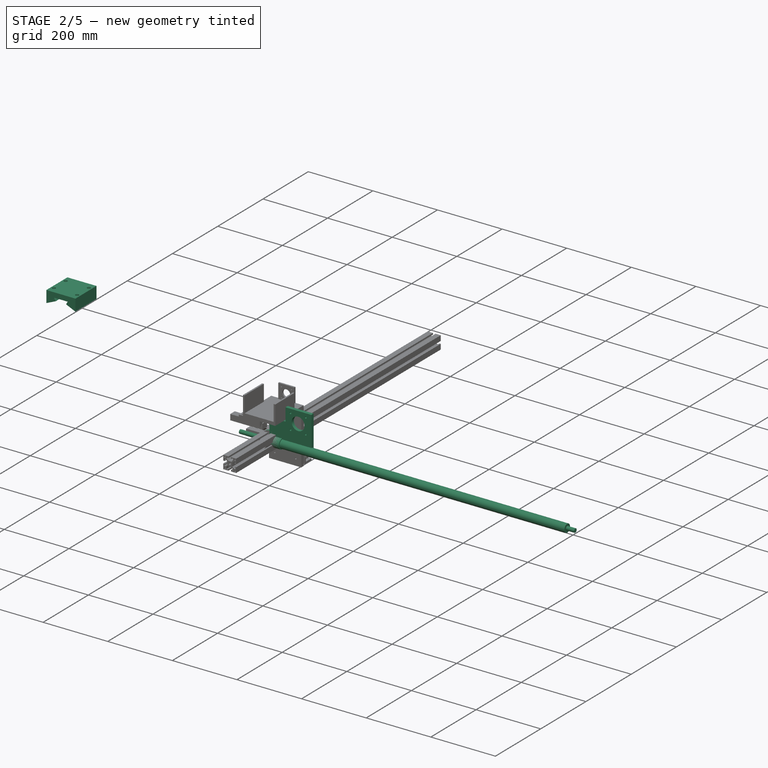
[diagram: stage 2 of 5 — iso view after this stage's code; geometry added in this stage tinted green]
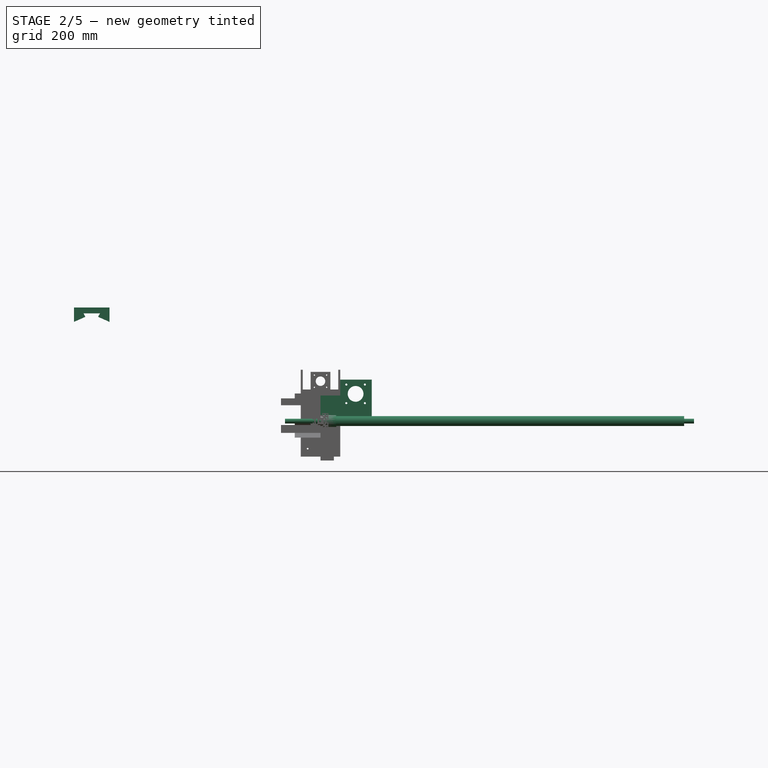
[diagram: stage 2 of 5 — front view after this stage's code; geometry added in this stage tinted green]
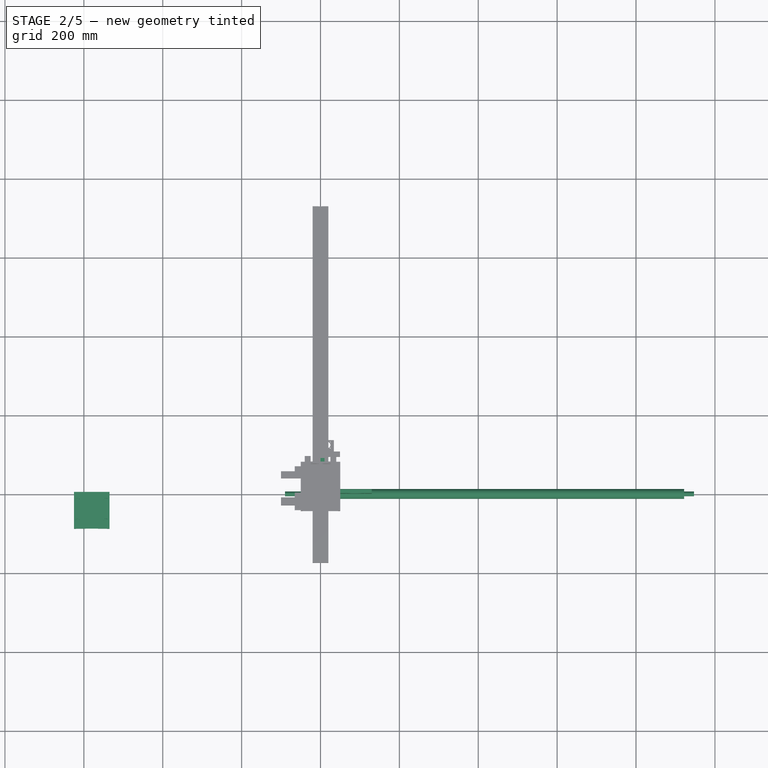
[diagram: stage 2 of 5 — top view after this stage's code; geometry added in this stage tinted green]
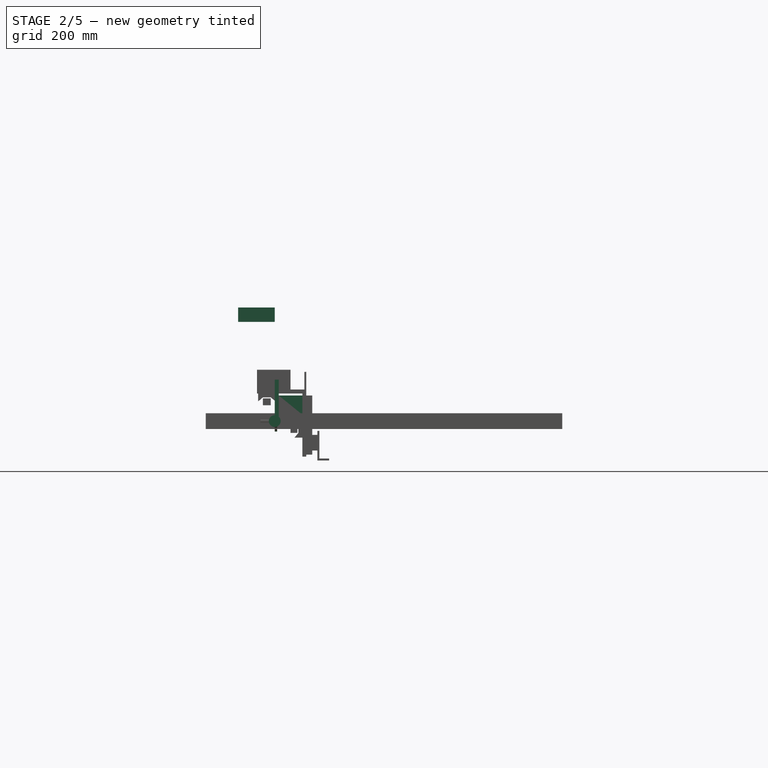
[diagram: stage 2 of 5 — right view after this stage's code; geometry added in this stage tinted green]
FEATURE [PartDesign::Body] Body030  label="top_pillar005"
  Group = -> [Sketch061,Pad030,Sketch060,Pocket030,MultiTransform016,PolarPattern016]
  Origin = -> Origin030
  Placement = pos=(-580,-240,200) rot=(1,0,0;1.5708rad)
  Tip = -> MultiTransform016
FEATURE [Sketcher::SketchObject] Sketch062
  FullyConstrained = true
  MapMode = 5
  Support = -> [XY_Plane031]
  sketch-geometry (6):
    g0: LineSegment StartX=10 StartY=90 StartZ=0 EndX=0 EndY=90 EndZ=0
    g1: LineSegment StartX=0 StartY=90 StartZ=0 EndX=0 EndY=0 EndZ=0
    g2: LineSegment StartX=0 StartY=0 StartZ=0 EndX=130 EndY=0 EndZ=0
    g3: LineSegment StartX=130 StartY=0 StartZ=0 EndX=130 EndY=10 EndZ=0
    g4: LineSegment StartX=130 StartY=10 StartZ=0 EndX=10 EndY=10 EndZ=0
    g5: LineSegment StartX=10 StartY=10 StartZ=0 EndX=10 EndY=90 EndZ=0
  constraints (17):
    c: Horizontal(g0)
    c: Coincident(g0,g1)
    c: Vertical(g1)
    c: Coincident(g1,g2)
    c: Horizontal(g2)
    c: Coincident(g2,g3)
    c: Vertical(g3)
    c: Coincident(g3,g4)
    c: Horizontal(g4)
    c: Coincident(g4,g5)
    c: Coincident(g5,g0)
    c: Vertical(g5)
    c: Distance(g0) = 10
    c: Distance(g3) = 10
    c: Distance(g5) = 80
    c: Distance(g2) = 130
    c: Coincident(g1,g-1)
FEATURE [PartDesign::Pad] Pad031
  Direction = (1,1,1)
  Length = 65
  Length2 = 100
  Profile = -> Sketch062
  Type = 0
FEATURE [Sketcher::SketchObject] Sketch064
  FullyConstrained = true
  MapMode = 5
  Placement = pos=(0,0,0) rot=(1,0,0;1.5708rad)
  Support = -> [Pad031]
  sketch-geometry (4):
    g0: LineSegment StartX=130 StartY=65 StartZ=0 EndX=50 EndY=65 EndZ=0
    g1: LineSegment StartX=50 StartY=65 StartZ=0 EndX=50 EndY=105 EndZ=0
    g2: LineSegment StartX=50 StartY=105 StartZ=0 EndX=130 EndY=105 EndZ=0
    g3: LineSegment StartX=130 StartY=105 StartZ=0 EndX=130 EndY=65 EndZ=0
  constraints (12):
    c: Coincident(g0,g1)
    c: Coincident(g1,g2)
    c: Coincident(g2,g3)
    c: Coincident(g3,g0)
    c: Horizontal(g0)
    c: Horizontal(g2)
    c: Vertical(g1)
    c: Vertical(g3)
    c: Distance(g3) = 40
    c: Distance(g2) = 80
    c: DistanceX(g-1,g0) = 50
    c: DistanceY(g-1,g0) = 65
FEATURE [PartDesign::Pad] Pad032
  BaseFeature = -> Pad031
  Direction = (1,1,1)
  Length = 10
  Length2 = 100
  Profile = -> Sketch064
  Reversed = true
  Type = 0
FEATURE [Sketcher::SketchObject] Sketch065
  FullyConstrained = true
  MapMode = 5
  Placement = pos=(0,0,0) rot=(1,0,0;1.5708rad)
  Support = -> [XZ_Plane031]
  sketch-geometry (8):
    g0: Circle CenterX=65.43 CenterY=92.6 CenterZ=0 NormalX=0 NormalY=0 NormalZ=1 AngleXU=0 Radius=2.6
    g1: Circle CenterX=112.6 CenterY=92.6 CenterZ=0 NormalX=0 NormalY=0 NormalZ=1 AngleXU=0 Radius=2.6
    g2: LineSegment StartX=65.43 StartY=92.6 StartZ=0 EndX=112.6 EndY=92.6 EndZ=0
    g3: Circle CenterX=65.43 CenterY=45.43 CenterZ=0 NormalX=0 NormalY=0 NormalZ=1 AngleXU=0 Radius=2.6
    g4: LineSegment StartX=65.43 StartY=92.6 StartZ=0 EndX=65.43 EndY=45.43 EndZ=0
    g5: Circle CenterX=112.6 CenterY=45.43 CenterZ=0 NormalX=0 NormalY=0 NormalZ=1 AngleXU=0 Radius=2.6
    g6: LineSegment StartX=65.43 StartY=45.43 StartZ=0 EndX=112.6 EndY=45.43 EndZ=0
    g7: Circle CenterX=89 CenterY=69 CenterZ=0 NormalX=0 NormalY=0 NormalZ=1 AngleXU=0 Radius=20
  constraints (21):
    c: Radius(g0) = 2.6
    c: Equal(g0,g1) = 2.6
    c: Coincident(g0,g2)
    c: Coincident(g1,g2)
    c: Distance(g2) = 47.17
    c: Angle(g2) = 0
    c: Equal(g0,g3) = 2.6
    c: Coincident(g0,g4)
    c: Coincident(g3,g4)
    c: Equal(g4,g2)
    c: Perpendicular(g4,g2)
    c: Equal(g0,g5) = 2.6
    c: Coincident(g3,g6)
    c: Coincident(g5,g6)
    c: Equal(g2,g6)
    c: Parallel(g6,g2)
    c: Radius(g7) = 20
    c: DistanceX(g3,g7) = 23.57
    c: DistanceY(g3,g7) = 23.57
    c: DistanceX(g-1,g7) = 89
    c: DistanceY(g-1,g7) = 69
FEATURE [PartDesign::Pocket] Pocket031
  BaseFeature = -> Pad032
  Length = 20
  Length2 = 100
  Profile = -> Sketch065
  Type = 0
FEATURE [PartDesign::Body] Body031  label="y_motor_mount"
  Group = -> [Sketch062,Pad031,Sketch064,Pad032,Sketch065,Pocket031]
  Origin = -> Origin031
  Placement = pos=(-610,-312,127) rot=(0,0,1;0rad)
  Tip = -> Pocket031
FEATURE [Part::Feature] Part__Feature001  label="motor002"
  Placement = pos=(-521,-261,197) rot=(1,0,0;3.14159rad)
  shape: bbox 57.06 x 130 x 66.23 mm, 1619 faces, 8 solids (baked)
FEATURE [Sketcher::SketchObject] Sketch066
  FullyConstrained = true
  MapMode = 5
  Placement = pos=(0,0,0) rot=(0.57735,0.57735,0.57735;2.0944rad)
  Support = -> [YZ_Plane033]
  sketch-geometry (1):
    g0: Circle CenterX=0 CenterY=0 CenterZ=0 NormalX=0 NormalY=0 NormalZ=1 AngleXU=0 Radius=15
  constraints (2):
    c: Coincident(g0,g-1)
    c: Radius(g0) = 15
FEATURE [PartDesign::Pad] Pad033
  Direction = (1,1,1)
  Length = 40
  Length2 = 100
  Placement = pos=(0,0,0) rot=(0.57735,0.57735,0.57735;2.0944rad)
  Profile = -> Sketch066
  Type = 0
FEATURE [PartDesign::Body] Body032  label="couple002"
  Group = -> [Sketch066,Pad033]
  Origin = -> Origin033
  Placement = pos=(-521,-257,196) rot=(0,0,-1;1.5708rad)
  Tip = -> Pad033
FEATURE [Sketcher::SketchObject] Sketch067
  FullyConstrained = true
  MapMode = 5
  Placement = pos=(0,0,0) rot=(0.57735,0.57735,0.57735;2.0944rad)
  Support = -> [YZ_Plane034]
  sketch-geometry (1):
    g0: Circle CenterX=0 CenterY=0 CenterZ=0 NormalX=0 NormalY=0 NormalZ=1 AngleXU=0 Radius=12.5
  constraints (2):
    c: Coincident(g0,g-1)
    c: Radius(g0) = 12.5
FEATURE [PartDesign::Pad] Pad034
  Direction = (1,1,1)
  Length = 922
  Length2 = 100
  Placement = pos=(0,0,0) rot=(0.57735,0.57735,0.57735;2.0944rad)
  Profile = -> Sketch067
  Type = 0
FEATURE [Sketcher::SketchObject] Sketch069
  FullyConstrained = true
  MapMode = 5
  Placement = pos=(922,-2.028e-13,2.028e-13) rot=(0.57735,0.57735,0.57735;2.0944rad)
  Support = -> [Pad034]
  sketch-geometry (1):
    g0: Circle CenterX=0 CenterY=0 CenterZ=0 NormalX=0 NormalY=0 NormalZ=1 AngleXU=0 Radius=6
  constraints (2):
    c: Coincident(g0,g-1)
    c: Radius(g0) = 6
FEATURE [PartDesign::Pad] Pad035
  BaseFeature = -> Pad034
  Direction = (1,1,1)
  Length = 25
  Length2 = 100
  Placement = pos=(0,0,0) rot=(0.57735,0.57735,0.57735;2.0944rad)
  Profile = -> Sketch069
  Type = 0
FEATURE [Sketcher::SketchObject] Sketch070
  FullyConstrained = true
  MapMode = 5
  Placement = pos=(0,0,0) rot=(0.57735,0.57735,-0.57735;4.18879rad)
  Support = -> [Pad035]
  sketch-geometry (1):
    g0: Circle CenterX=0 CenterY=0 CenterZ=0 NormalX=0 NormalY=0 NormalZ=1 AngleXU=0 Radius=6
  constraints (2):
    c: Coincident(g0,g-1)
    c: Radius(g0) = 6
FEATURE [PartDesign::Pad] Pad036
  BaseFeature = -> Pad035
  Direction = (1,1,1)
  Length = 90
  Length2 = 100
  Placement = pos=(0,0,0) rot=(0.57735,0.57735,0.57735;2.0944rad)
  Profile = -> Sketch070
  Type = 0
FEATURE [PartDesign::Body] Body033  label="x_axis_rod"
  Group = -> [Sketch067,Pad034,Sketch069,Pad035,Sketch070,Pad036]
  Origin = -> Origin034
  Placement = pos=(-512,-56,341) rot=(0,0,1;0rad)
  Tip = -> Pad036
FEATURE [Sketcher::SketchObject] Sketch072
  FullyConstrained = true
  MapMode = 5
  Placement = pos=(0,0,0) rot=(0.57735,0.57735,0.57735;2.0944rad)
  Support = -> [YZ_Plane035]
  sketch-geometry (1):
    g0: Circle CenterX=0 CenterY=0 CenterZ=0 NormalX=0 NormalY=0 NormalZ=1 AngleXU=0 Radius=12.5
  constraints (2):
    c: Coincident(g0,g-1)
    c: Radius(g0) = 12.5
FEATURE [PartDesign::Pad] Pad037
  Direction = (1,1,1)
  Length = 500
  Length2 = 100
  Placement = pos=(0,0,0) rot=(0.57735,0.57735,0.57735;2.0944rad)
  Profile = -> Sketch072
  Type = 0
FEATURE [Sketcher::SketchObject] Sketch073
  FullyConstrained = true
  MapMode = 5
  Placement = pos=(500,-1.1e-13,1.1e-13) rot=(0.57735,0.57735,0.57735;2.0944rad)
  Support = -> [Pad037]
  sketch-geometry (1):
    g0: Circle CenterX=0 CenterY=0 CenterZ=0 NormalX=0 NormalY=0 NormalZ=1 AngleXU=0 Radius=6
  constraints (2):
    c: Coincident(g0,g-1)
    c: Radius(g0) = 6
FEATURE [PartDesign::Pad] Pad039
  BaseFeature = -> Pad037
  Direction = (1,1,1)
  Length = 25
  Length2 = 100
  Placement = pos=(0,0,0) rot=(0.57735,0.57735,0.57735;2.0944rad)
  Profile = -> Sketch073
  Type = 0
FEATURE [Sketcher::SketchObject] Sketch071
  FullyConstrained = true
  MapMode = 5
  Placement = pos=(0,0,0) rot=(0.57735,0.57735,-0.57735;4.18879rad)
  Support = -> [Pad039]
  sketch-geometry (1):
    g0: Circle CenterX=0 CenterY=0 CenterZ=0 NormalX=0 NormalY=0 NormalZ=1 AngleXU=0 Radius=6
  constraints (2):
    c: Coincident(g0,g-1)
    c: Radius(g0) = 6
FEATURE [PartDesign::Pad] Pad038
  BaseFeature = -> Pad039
  Direction = (1,1,1)
  Length = 50
  Length2 = 100
  Placement = pos=(0,0,0) rot=(0.57735,0.57735,0.57735;2.0944rad)
  Profile = -> Sketch071
  Type = 0
FEATURE [PartDesign::Body] Body034  label="y_axis_rod"
  Group = -> [Sketch072,Pad037,Sketch073,Pad039,Sketch071,Pad038]
  Origin = -> Origin035
  Placement = pos=(-521,-230,195) rot=(0,0,1;1.5708rad)
  Tip = -> Pad038
FEATURE [Sketcher::SketchObject] Sketch074
  FullyConstrained = true
  MapMode = 5
  Placement = pos=(0,0,0) rot=(1,0,0;1.5708rad)
  Support = -> [XZ_Plane036]
  sketch-geometry (2):
    g0: Circle CenterX=0 CenterY=0 CenterZ=0 NormalX=0 NormalY=0 NormalZ=1 AngleXU=0 Radius=26.5
    g1: Circle CenterX=0 CenterY=0 CenterZ=0 NormalX=0 NormalY=0 NormalZ=1 AngleXU=0 Radius=12.5
  constraints (4):
    c: Coincident(g0,g-1)
    c: Radius(g0) = 26.5
    c: Coincident(g1,g0)
    c: Radius(g1) = 12.5
FEATURE [PartDesign::Pad] Pad040
  Direction = (1,1,1)
  Length = 6
  Length2 = 100
  Placement = pos=(0,0,0) rot=(1,0,0;1.5708rad)
  Profile = -> Sketch074
  Reversed = true
  Type = 0
FEATURE [Sketcher::SketchObject] Sketch075
  FullyConstrained = true
  MapMode = 5
  Placement = pos=(0,0,0) rot=(1,0,0;1.5708rad)
  Support = -> [XZ_Plane036]
  sketch-geometry (2):
    g0: Circle CenterX=0 CenterY=0 CenterZ=0 NormalX=0 NormalY=0 NormalZ=1 AngleXU=0 Radius=12.5
    g1: Circle CenterX=0 CenterY=0 CenterZ=0 NormalX=0 NormalY=0 NormalZ=1 AngleXU=0 Radius=15.5
  constraints (4):
    c: Coincident(g0,g-1)
    c: Radius(g0) = 12.5
    c: Coincident(g1,g0)
    c: Radius(g1) = 15.5
FEATURE [PartDesign::Pad] Pad041
  BaseFeature = -> Pad040
  Direction = (1,1,1)
  Length = 36
  Length2 = 100
  Placement = pos=(0,0,0) rot=(1,0,0;1.5708rad)
  Profile = -> Sketch075
  Type = 0
FEATURE [Sketcher::SketchObject] Sketch076
  FullyConstrained = false
  MapMode = 5
  Placement = pos=(0,0,0) rot=(1,0,0;1.5708rad)
  Support = -> [XZ_Plane036]
  sketch-geometry (7):
    g0: Circle CenterX=-14.8492 CenterY=14.8492 CenterZ=0 NormalX=0 NormalY=0 NormalZ=1 AngleXU=0 Radius=2.7
    g1: Circle CenterX=14.8492 CenterY=14.8492 CenterZ=0 NormalX=0 NormalY=0 NormalZ=1 AngleXU=0 Radius=2.7
    g2: LineSegment StartX=-14.8492 StartY=14.8492 StartZ=0 EndX=14.8492 EndY=14.8492 EndZ=0
    g3: Circle CenterX=-14.8492 CenterY=-14.8492 CenterZ=0 NormalX=0 NormalY=0 NormalZ=1 AngleXU=0 Radius=2.7
    g4: LineSegment StartX=-14.8492 StartY=14.8492 StartZ=0 EndX=-14.8492 EndY=-14.8492 EndZ=0
    g5: Circle CenterX=14.8492 CenterY=-14.8492 CenterZ=0 NormalX=0 NormalY=0 NormalZ=1 AngleXU=0 Radius=2.7
    g6: LineSegment StartX=-14.8492 StartY=-14.8492 StartZ=0 EndX=14.8492 EndY=-14.8492 EndZ=0
  constraints (15):
    c: Radius(g0) = 2.7
    c: Equal(g0,g1) = 2.7
    c: Coincident(g0,g2)
    c: Coincident(g1,g2)
    c: Angle(g2) = 0
    c: Equal(g0,g3) = 2.7
    c: Coincident(g0,g4)
    c: Coincident(g3,g4)
    c: Equal(g4,g2)
    c: Perpendicular(g4,g2)
    c: Equal(g0,g5) = 2.7
    c: Coincident(g3,g6)
    c: Coincident(g5,g6)
    c: Equal(g2,g6)
    c: Parallel(g6,g2)
FEATURE [PartDesign::Pocket] Pocket032
  BaseFeature = -> Pad041
  Length = 6
  Length2 = 100
  Placement = pos=(0,0,0) rot=(1,0,0;1.5708rad)
  Profile = -> Sketch076
  Type = 0
FEATURE [PartDesign::Body] Body035  label="y_axis_screw"
  Group = -> [Sketch074,Pad040,Sketch075,Pad041,Sketch076,Pocket032]
  Origin = -> Origin036
  Placement = pos=(-521,-106,195) rot=(0,0,1;3.14159rad)
  Tip = -> Pocket032
FEATURE [Sketcher::SketchObject] Sketch077
  FullyConstrained = true
  MapMode = 5
  Placement = pos=(0,0,0) rot=(1,0,0;1.5708rad)
  Support = -> [XZ_Plane037]
  sketch-geometry (8):
    g0: LineSegment StartX=-625 StartY=288 StartZ=0 EndX=-535 EndY=288 EndZ=0
    g1: LineSegment StartX=-535 StartY=288 StartZ=0 EndX=-535 EndY=251.5 EndZ=0
    g2: LineSegment StartX=-535 StartY=251.5 StartZ=0 EndX=-564 EndY=264.34 EndZ=0
    g3: LineSegment StartX=-564 StartY=264.34 StartZ=0 EndX=-559 EndY=273 EndZ=0
    g4: LineSegment StartX=-559 StartY=273 StartZ=0 EndX=-601 EndY=273 EndZ=0
    g5: LineSegment StartX=-601 StartY=273 StartZ=0 EndX=-596 EndY=264.34 EndZ=0
    g6: LineSegment StartX=-596 StartY=264.34 StartZ=0 EndX=-625 EndY=251.5 EndZ=0
    g7: LineSegment StartX=-625 StartY=251.5 StartZ=0 EndX=-625 EndY=288 EndZ=0
  constraints (24):
    c: Horizontal(g0)
    c: Coincident(g0,g1)
    c: Vertical(g1)
    c: Coincident(g1,g2)
    c: Coincident(g2,g3)
    c: Coincident(g3,g4)
    c: Horizontal(g4)
    c: Coincident(g4,g5)
    c: Coincident(g5,g6)
    c: Coincident(g6,g7)
    c: Coincident(g7,g0)
    c: Vertical(g7)
    c: Distance(g0) = 90
    c: Distance(g1) = 36.5
    c: Horizontal(g6,g1)
    c: Horizontal(g5,g2)
    c: Distance(g4) = 42
    c: Equal(g5,g3)
    c: DistanceY(g3,g0) = 15
    c: DistanceX(g3,g0) = 24
    c: Angle(g4,g3) = 1.0472
    c: Distance(g5) = 10
    c: DistanceY(g-1,g0) = 288
    c: DistanceX(g0,g-1) = 535
FEATURE [PartDesign::Pad] Pad042
  Direction = (1,1,1)
  Length = 93
  Length2 = 100
  Placement = pos=(0,0,0) rot=(1,0,0;1.5708rad)
  Profile = -> Sketch077
  Type = 0
FEATURE [Sketcher::SketchObject] Sketch078
  FullyConstrained = true
  MapMode = 5
  Placement = pos=(0,6.39e-14,288) rot=(0,0,1;3.14159rad)
  Support = -> [Pad042]
  sketch-geometry (7):
    g0: Circle CenterX=544 CenterY=20.5 CenterZ=0 NormalX=0 NormalY=0 NormalZ=1 AngleXU=0 Radius=5.1
    g1: Circle CenterX=544 CenterY=72.5 CenterZ=0 NormalX=0 NormalY=0 NormalZ=1 AngleXU=0 Radius=5.1
    g2: LineSegment StartX=544 StartY=20.5 StartZ=0 EndX=544 EndY=72.5 EndZ=0
    g3: Circle CenterX=616 CenterY=20.5 CenterZ=0 NormalX=0 NormalY=0 NormalZ=1 AngleXU=0 Radius=5.1
    g4: LineSegment StartX=544 StartY=20.5 StartZ=0 EndX=616 EndY=20.5 EndZ=0
    g5: Circle CenterX=616 CenterY=72.5 CenterZ=0 NormalX=0 NormalY=0 NormalZ=1 AngleXU=0 Radius=5.1
    g6: LineSegment StartX=616 StartY=20.5 StartZ=0 EndX=616 EndY=72.5 EndZ=0
  constraints (18):
    c: Radius(g0) = 5.1
    c: DistanceY(g-1,g0) = 20.5
    c: Equal(g0,g1) = 5.1
    c: Coincident(g0,g2)
    c: Coincident(g1,g2)
    c: Distance(g2) = 52
    c: Angle(g2) = 1.5708
    c: Equal(g0,g3) = 5.1
    c: Coincident(g0,g4)
    c: Coincident(g3,g4)
    c: Distance(g4) = 72
    c: Perpendicular(g4,g2)
    c: Equal(g0,g5) = 5.1
    c: Coincident(g3,g6)
    c: Coincident(g5,g6)
    c: Equal(g2,g6)
    c: Parallel(g6,g2)
    c: DistanceX(g-1,g0) = 544
FEATURE [PartDesign::Pocket] Pocket033
  BaseFeature = -> Pad042
  Length = 12
  Length2 = 100
  Placement = pos=(0,0,0) rot=(1,0,0;1.5708rad)
  Profile = -> Sketch078
  Type = 0
FEATURE [PartDesign::Body] Body036  label="linear_block_y1"
  Group = -> [Sketch077,Pad042,Sketch078,Pocket033]
  Origin = -> Origin037
  Tip = -> Pocket033
FEATURE [App::LinkGroup] LinkGroup001  label="y_axis_blocks"
  ElementList = -> [Body016,Body036]
  LinkMode = 0
  Placement = pos=(3.8147e-06,-9.50001,-5.99999) rot=(0,0,1;0rad)
FEATURE [Sketcher::SketchObject] Sketch079
  FullyConstrained = false
  MapMode = 5
  Placement = pos=(0,0,0) rot=(1,0,0;1.5708rad)
  Support = -> [XZ_Plane038]
  sketch-geometry (7):
    g0: Circle CenterX=-14.8492 CenterY=14.8492 CenterZ=0 NormalX=0 NormalY=0 NormalZ=1 AngleXU=0 Radius=2.7
    g1: Circle CenterX=14.8492 CenterY=14.8492 CenterZ=0 NormalX=0 NormalY=0 NormalZ=1 AngleXU=0 Radius=2.7
    g2: LineSegment StartX=-14.8492 StartY=14.8492 StartZ=0 EndX=14.8492 EndY=14.8492 EndZ=0
    g3: Circle CenterX=-14.8492 CenterY=-14.8492 CenterZ=0 NormalX=0 NormalY=0 NormalZ=1 AngleXU=0 Radius=2.7
    g4: LineSegment StartX=-14.8492 StartY=14.8492 StartZ=0 EndX=-14.8492 EndY=-14.8492 EndZ=0
    g5: Circle CenterX=14.8492 CenterY=-14.8492 CenterZ=0 NormalX=0 NormalY=0 NormalZ=1 AngleXU=0 Radius=2.7
    g6: LineSegment StartX=-14.8492 StartY=-14.8492 StartZ=0 EndX=14.8492 EndY=-14.8492 EndZ=0
  constraints (15):
    c: Radius(g0) = 2.7
    c: Equal(g0,g1) = 2.7
    c: Coincident(g0,g2)
    c: Coincident(g1,g2)
    c: Angle(g2) = 0
    c: Equal(g0,g3) = 2.7
    c: Coincident(g0,g4)
    c: Coincident(g3,g4)
    c: Equal(g4,g2)
    c: Perpendicular(g4,g2)
    c: Equal(g0,g5) = 2.7
    c: Coincident(g3,g6)
    c: Coincident(g5,g6)
    c: Equal(g2,g6)
    c: Parallel(g6,g2)
FEATURE [Sketcher::SketchObject] Sketch080
  FullyConstrained = true
  MapMode = 5
  Placement = pos=(0,0,0) rot=(1,0,0;1.5708rad)
  Support = -> [XZ_Plane038]
  sketch-geometry (2):
    g0: Circle CenterX=0 CenterY=0 CenterZ=0 NormalX=0 NormalY=0 NormalZ=1 AngleXU=0 Radius=26.5
    g1: Circle CenterX=0 CenterY=0 CenterZ=0 NormalX=0 NormalY=0 NormalZ=1 AngleXU=0 Radius=12.5
  constraints (4):
    c: Coincident(g0,g-1)
    c: Radius(g0) = 26.5
    c: Coincident(g1,g0)
    c: Radius(g1) = 12.5
FEATURE [PartDesign::Pad] Pad043
  Direction = (1,1,1)
  Length = 6
  Length2 = 100
  Placement = pos=(0,0,0) rot=(1,0,0;1.5708rad)
  Profile = -> Sketch080
  Reversed = true
  Type = 0
FEATURE [Sketcher::SketchObject] Sketch081
  FullyConstrained = true
  MapMode = 5
  Placement = pos=(0,0,0) rot=(1,0,0;1.5708rad)
  Support = -> [XZ_Plane038]
  sketch-geometry (2):
    g0: Circle CenterX=0 CenterY=0 CenterZ=0 NormalX=0 NormalY=0 NormalZ=1 AngleXU=0 Radius=12.5
    g1: Circle CenterX=0 CenterY=0 CenterZ=0 NormalX=0 NormalY=0 NormalZ=1 AngleXU=0 Radius=15.5
  constraints (4):
    c: Coincident(g0,g-1)
    c: Radius(g0) = 12.5
    c: Coincident(g1,g0)
    c: Radius(g1) = 15.5
FEATURE [PartDesign::Pad] Pad044
  BaseFeature = -> Pad043
  Direction = (1,1,1)
  Length = 36
  Length2 = 100
  Placement = pos=(0,0,0) rot=(1,0,0;1.5708rad)
  Profile = -> Sketch081
  Type = 0
FEATURE [PartDesign::Pocket] Pocket034
  BaseFeature = -> Pad044
  Length = 6
  Length2 = 100
  Placement = pos=(0,0,0) rot=(1,0,0;1.5708rad)
  Profile = -> Sketch079
  Type = 0
FEATURE [PartDesign::Pocket] Pocket036  label="nut018"
  BaseFeature = -> Pad046
  Length = 1000
  Length2 = 1000
  Placement = pos=(0,0,0) rot=(1,0,0;1.5708rad)
  Profile = -> Sketch083
  Type = 4
FEATURE [PartDesign::MultiTransform] MultiTransform018
  BaseFeature = -> Pocket036
  Originals = -> [Pocket036]
  Placement = pos=(0,0,0) rot=(1,0,0;1.5708rad)
  Transformations = -> [PolarPattern018]
FEATURE [PartDesign::Pocket] Pocket035  label="nut017"
  BaseFeature = -> Pad048
  Length = 1000
  Length2 = 1000
  Placement = pos=(0,0,0) rot=(1,0,0;1.5708rad)
  Profile = -> Sketch086
  Type = 4
FEATURE [PartDesign::MultiTransform] MultiTransform020
  BaseFeature = -> Pocket035
  Originals = -> [Pocket035]
  Placement = pos=(0,0,0) rot=(1,0,0;1.5708rad)
  Transformations = -> [PolarPattern019]
FEATURE [PartDesign::Pocket] Pocket038  label="nut020"
  BaseFeature = -> Pad047
  Length = 1000
  Length2 = 1000
  Placement = pos=(0,0,0) rot=(1,0,0;1.5708rad)
  Profile = -> Sketch087
  Type = 4
FEATURE [PartDesign::MultiTransform] MultiTransform019
  BaseFeature = -> Pocket038
  Originals = -> [Pocket038]
  Placement = pos=(0,0,0) rot=(1,0,0;1.5708rad)
  Transformations = -> [PolarPattern017]
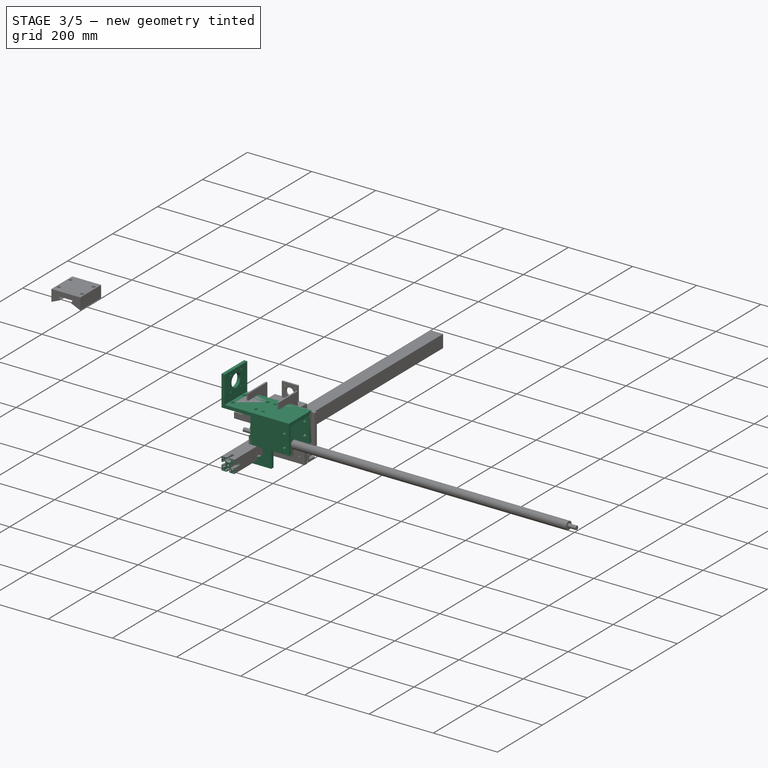
[diagram: stage 3 of 5 — iso view after this stage's code; geometry added in this stage tinted green]
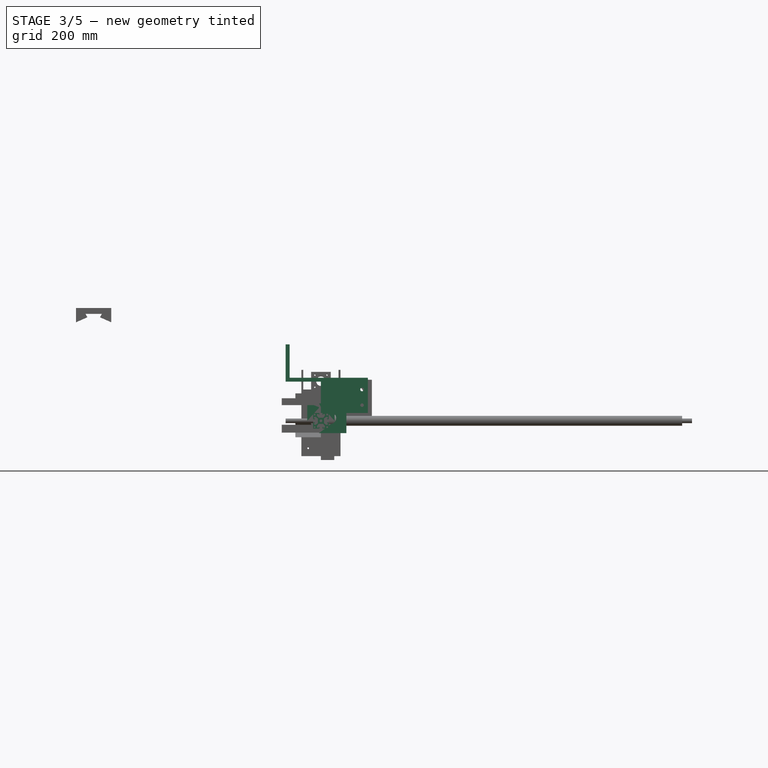
[diagram: stage 3 of 5 — front view after this stage's code; geometry added in this stage tinted green]
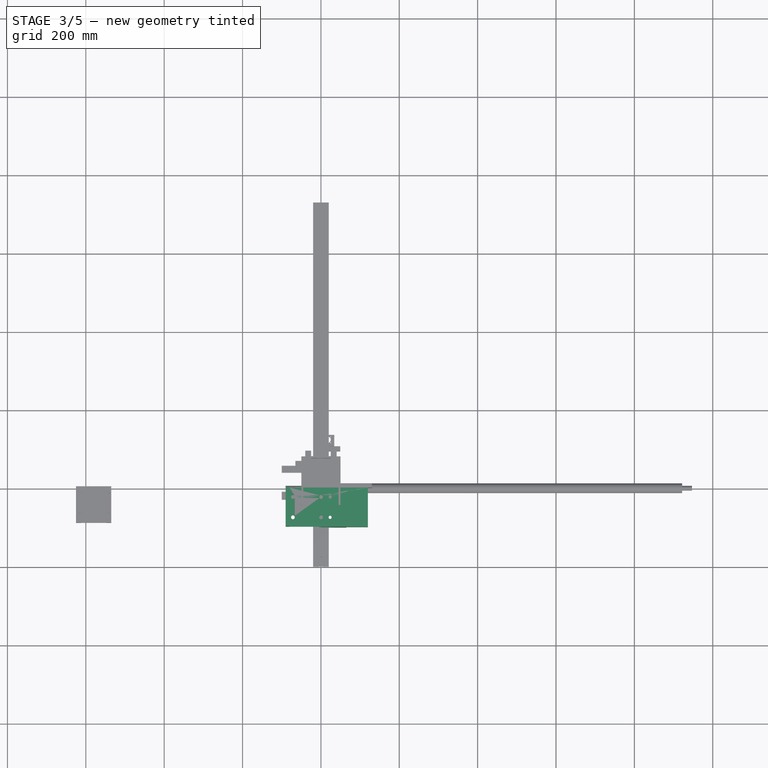
[diagram: stage 3 of 5 — top view after this stage's code; geometry added in this stage tinted green]
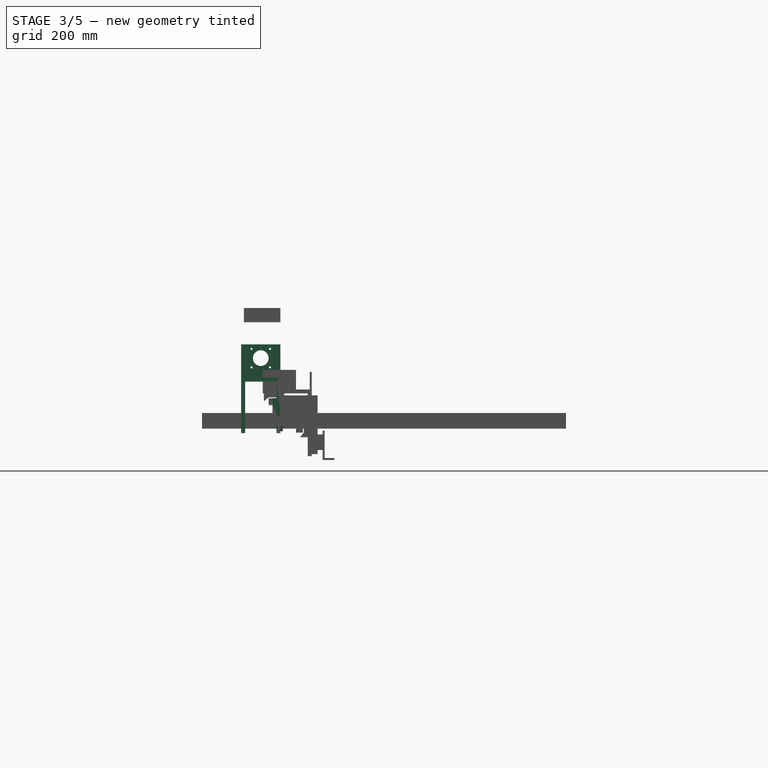
[diagram: stage 3 of 5 — right view after this stage's code; geometry added in this stage tinted green]
FEATURE [PartDesign::Body] Body014  label="top_frame003"
  Group = -> [Sketch026,Pad014,Sketch025,Pocket011,MultiTransform011,PolarPattern011]
  Origin = -> Origin014
  Placement = pos=(-620,0,220) rot=(0,0,1;0rad)
  Tip = -> MultiTransform011
FEATURE [Sketcher::SketchObject] Sketch028
  FullyConstrained = true
  MapMode = 5
  Placement = pos=(0,0,0) rot=(1,0,0;1.5708rad)
  Support = -> [XZ_Plane016]
  sketch-geometry (8):
    g0: LineSegment StartX=-625 StartY=288 StartZ=0 EndX=-535 EndY=288 EndZ=0
    g1: LineSegment StartX=-535 StartY=288 StartZ=0 EndX=-535 EndY=251.5 EndZ=0
    g2: LineSegment StartX=-535 StartY=251.5 StartZ=0 EndX=-564 EndY=264.34 EndZ=0
    g3: LineSegment StartX=-564 StartY=264.34 StartZ=0 EndX=-559 EndY=273 EndZ=0
    g4: LineSegment StartX=-559 StartY=273 StartZ=0 EndX=-601 EndY=273 EndZ=0
    g5: LineSegment StartX=-601 StartY=273 StartZ=0 EndX=-596 EndY=264.34 EndZ=0
    g6: LineSegment StartX=-596 StartY=264.34 StartZ=0 EndX=-625 EndY=251.5 EndZ=0
    g7: LineSegment StartX=-625 StartY=251.5 StartZ=0 EndX=-625 EndY=288 EndZ=0
  constraints (24):
    c: Horizontal(g0)
    c: Coincident(g0,g1)
    c: Vertical(g1)
    c: Coincident(g1,g2)
    c: Coincident(g2,g3)
    c: Coincident(g3,g4)
    c: Horizontal(g4)
    c: Coincident(g4,g5)
    c: Coincident(g5,g6)
    c: Coincident(g6,g7)
    c: Coincident(g7,g0)
    c: Vertical(g7)
    c: Distance(g0) = 90
    c: Distance(g1) = 36.5
    c: Horizontal(g6,g1)
    c: Horizontal(g5,g2)
    c: Distance(g4) = 42
    c: Equal(g5,g3)
    c: DistanceY(g3,g0) = 15
    c: DistanceX(g3,g0) = 24
    c: Angle(g4,g3) = 1.0472
    c: Distance(g5) = 10
    c: DistanceY(g-1,g0) = 288
    c: DistanceX(g0,g-1) = 535
FEATURE [PartDesign::Pad] Pad016
  Direction = (1,1,1)
  Length = 93
  Length2 = 100
  Placement = pos=(0,0,0) rot=(1,0,0;1.5708rad)
  Profile = -> Sketch028
  Type = 0
FEATURE [Sketcher::SketchObject] Sketch030
  FullyConstrained = true
  MapMode = 5
  Placement = pos=(0,6.39e-14,288) rot=(0,0,1;3.14159rad)
  Support = -> [Pad016]
  sketch-geometry (7):
    g0: Circle CenterX=544 CenterY=20.5 CenterZ=0 NormalX=0 NormalY=0 NormalZ=1 AngleXU=0 Radius=5.1
    g1: Circle CenterX=544 CenterY=72.5 CenterZ=0 NormalX=0 NormalY=0 NormalZ=1 AngleXU=0 Radius=5.1
    g2: LineSegment StartX=544 StartY=20.5 StartZ=0 EndX=544 EndY=72.5 EndZ=0
    g3: Circle CenterX=616 CenterY=20.5 CenterZ=0 NormalX=0 NormalY=0 NormalZ=1 AngleXU=0 Radius=5.1
    g4: LineSegment StartX=544 StartY=20.5 StartZ=0 EndX=616 EndY=20.5 EndZ=0
    g5: Circle CenterX=616 CenterY=72.5 CenterZ=0 NormalX=0 NormalY=0 NormalZ=1 AngleXU=0 Radius=5.1
    g6: LineSegment StartX=616 StartY=20.5 StartZ=0 EndX=616 EndY=72.5 EndZ=0
  constraints (18):
    c: Radius(g0) = 5.1
    c: DistanceY(g-1,g0) = 20.5
    c: Equal(g0,g1) = 5.1
    c: Coincident(g0,g2)
    c: Coincident(g1,g2)
    c: Distance(g2) = 52
    c: Angle(g2) = 1.5708
    c: Equal(g0,g3) = 5.1
    c: Coincident(g0,g4)
    c: Coincident(g3,g4)
    c: Distance(g4) = 72
    c: Perpendicular(g4,g2)
    c: Equal(g0,g5) = 5.1
    c: Coincident(g3,g6)
    c: Coincident(g5,g6)
    c: Equal(g2,g6)
    c: Parallel(g6,g2)
    c: DistanceX(g-1,g0) = 544
FEATURE [PartDesign::Pocket] Pocket013
  BaseFeature = -> Pad016
  Length = 12
  Length2 = 100
  Placement = pos=(0,0,0) rot=(1,0,0;1.5708rad)
  Profile = -> Sketch030
  Type = 0
FEATURE [PartDesign::Body] Body017  label="x_profile"
  Group = -> [Sketch032,Pad017,Sketch031,Pocket014,MultiTransform012,PolarPattern012]
  Origin = -> Origin017
  Placement = pos=(-313,-56,269) rot=(0,0,-1;1.5708rad)
  Tip = -> MultiTransform012
FEATURE [Sketcher::SketchObject] Sketch033
  FullyConstrained = true
  MapMode = 5
  Placement = pos=(0,0,0) rot=(1,0,0;1.5708rad)
  Support = -> [XZ_Plane018]
  sketch-geometry (18):
    g0: LineSegment StartX=-4 StartY=20 StartZ=0 EndX=-4 EndY=15.5 EndZ=0
    g1: LineSegment StartX=-4 StartY=15.5 StartZ=0 EndX=-5.8 EndY=15.5 EndZ=0
    g2: LineSegment StartX=-5.8 StartY=15.5 StartZ=0 EndX=-5.8 EndY=18 EndZ=0
    g3: LineSegment StartX=-5.8 StartY=18 StartZ=0 EndX=-10 EndY=17 EndZ=0
    g4: LineSegment StartX=-10 StartY=17 StartZ=0 EndX=-10 EndY=13 EndZ=0
    g5: LineSegment StartX=-10 StartY=13 StartZ=0 EndX=-5.8 EndY=7.75 EndZ=0
    g6: LineSegment StartX=-5.8 StartY=7.75 StartZ=0 EndX=5.8 EndY=7.75 EndZ=0
    g7: LineSegment StartX=5.8 StartY=7.75 StartZ=0 EndX=10 EndY=13 EndZ=0
    g8: LineSegment StartX=10 StartY=13 StartZ=0 EndX=10 EndY=17 EndZ=0
    g9: LineSegment StartX=10 StartY=17 StartZ=0 EndX=5.8 EndY=18 EndZ=0
    g10: LineSegment StartX=5.8 StartY=18 StartZ=0 EndX=5.8 EndY=15.5 EndZ=0
    g11: LineSegment StartX=5.8 StartY=15.5 StartZ=0 EndX=4 EndY=15.5 EndZ=0
    g12: LineSegment StartX=4 StartY=15.5 StartZ=0 EndX=4 EndY=20 EndZ=0
    g13: LineSegment StartX=4 StartY=20 StartZ=0 EndX=-4 EndY=20 EndZ=0
    g14: LineSegment StartX=-14 StartY=18 StartZ=0 EndX=-18 EndY=18 EndZ=0
    g15: LineSegment StartX=-18 StartY=18 StartZ=0 EndX=-18 EndY=14 EndZ=0
    g16: LineSegment StartX=-18 StartY=14 StartZ=0 EndX=-14 EndY=14 EndZ=0
    g17: LineSegment StartX=-14 StartY=14 StartZ=0 EndX=-14 EndY=18 EndZ=0
  constraints (54):
    c: Vertical(g0)
    c: Coincident(g0,g1)
    c: Horizontal(g1)
    c: Coincident(g1,g2)
    c: Vertical(g2)
    c: Coincident(g2,g3)
    c: Coincident(g3,g4)
    c: Vertical(g4)
    c: Coincident(g4,g5)
    c: Coincident(g5,g6)
    c: Horizontal(g6)
    c: Coincident(g6,g7)
    c: Coincident(g7,g8)
    c: Vertical(g8)
    c: Coincident(g8,g9)
    c: Coincident(g9,g10)
    c: Coincident(g10,g11)
    c: Horizontal(g11)
    c: Coincident(g11,g12)
    c: Vertical(g12)
    c: Coincident(g12,g13)
    c: Coincident(g13,g0)
    c: Horizontal(g13)
    c: Vertical(g10)
    c: Distance(g12) = 4.5
    c: Distance(g0) = 4.5
    c: DistanceY(g5,g0) = 7.75
    c: Distance(g13) = 8
    c: Horizontal(g9,g2)
    c: Equal(g11,g1)
    c: Vertical(g10,g6)
    c: Vertical(g1,g5)
    c: Equal(g8,g4)
    c: Equal(g9,g3)
    c: Distance(g11) = 1.8
    c: DistanceY(g3,g2) = 1
    c: DistanceY(g2,g0) = 2
    c: Horizontal(g7,g4)
    c: Distance(g8) = 4
    c: DistanceX(g3,g8) = 20
    c: DistanceY(g-1,g12) = 20
    c: DistanceX(g-1,g12) = 4
    c: Coincident(g14,g15)
    c: Coincident(g15,g16)
    c: Coincident(g16,g17)
    c: Coincident(g17,g14)
    c: Horizontal(g14)
    c: Horizontal(g16)
    c: Vertical(g15)
    c: Vertical(g17)
    c: Equal(g17,g16)
    c: Distance(g17) = 4
    c: DistanceY(g-1,g14) = 18
    c: DistanceX(g14,g-1) = 18
FEATURE [PartDesign::PolarPattern] PolarPattern013
  Angle = 360
  Axis = -> Sketch033 [N_Axis]
  Occurrences = 4
  Placement = pos=(0,0,0) rot=(1,0,0;1.5708rad)
FEATURE [Sketcher::SketchObject] Sketch034
  FullyConstrained = true
  MapMode = 5
  Placement = pos=(0,0,0) rot=(1,0,0;1.5708rad)
  Support = -> [XZ_Plane018]
  sketch-geometry (5):
    g0: Circle CenterX=0 CenterY=0 CenterZ=0 NormalX=0 NormalY=0 NormalZ=1 AngleXU=0 Radius=3.4
    g1: LineSegment StartX=-20 StartY=20 StartZ=0 EndX=20 EndY=20 EndZ=0
    g2: LineSegment StartX=20 StartY=20 StartZ=0 EndX=20 EndY=-20 EndZ=0
    g3: LineSegment StartX=20 StartY=-20 StartZ=0 EndX=-20 EndY=-20 EndZ=0
    g4: LineSegment StartX=-20 StartY=-20 StartZ=0 EndX=-20 EndY=20 EndZ=0
  constraints (14):
    c: Coincident(g0,g-1)
    c: Radius(g0) = 3.4
    c: Coincident(g1,g2)
    c: Coincident(g2,g3)
    c: Coincident(g3,g4)
    c: Coincident(g4,g1)
    c: Horizontal(g1)
    c: Horizontal(g3)
    c: Vertical(g2)
    c: Vertical(g4)
    c: Distance(g2) = 40
    c: Distance(g3) = 40
    c: DistanceX(g0,g2) = 20
    c: DistanceY(g3,g0) = 20
FEATURE [PartDesign::Pad] Pad018  label="base013"
  Direction = (1,1,1)
  Length = 175
  Length2 = 729
  Placement = pos=(0,0,0) rot=(1,0,0;1.5708rad)
  Profile = -> Sketch034
  Reversed = true
  Type = 4
FEATURE [PartDesign::Body] Body022  label="T_screw_holder_y_bearing002"
  Group = -> [Sketch042,Pad022,Sketch041,Pocket019]
  Origin = -> Origin022
  Placement = pos=(-560,290,195) rot=(0,1,0;1.5708rad)
  Tip = -> Pocket019
FEATURE [Sketcher::SketchObject] Sketch043
  FullyConstrained = true
  MapMode = 5
  Placement = pos=(0,0,0) rot=(1,0,0;1.5708rad)
  Support = -> [XZ_Plane023]
  sketch-geometry (20):
    g0: LineSegment StartX=-80 StartY=110 StartZ=0 EndX=120 EndY=110 EndZ=0
    g1: LineSegment StartX=65 StartY=-31.5 StartZ=0 EndX=-5 EndY=-31.5 EndZ=0
    g2: LineSegment StartX=15 StartY=100 StartZ=0 EndX=-90 EndY=100 EndZ=0
    g3: LineSegment StartX=-90 StartY=100 StartZ=0 EndX=-90 EndY=195 EndZ=0
    g4: LineSegment StartX=-90 StartY=195 StartZ=0 EndX=-80 EndY=195 EndZ=0
    g5: LineSegment StartX=-80 StartY=195 StartZ=0 EndX=-80 EndY=110 EndZ=0
    g6: LineSegment StartX=-5 StartY=-31.5 StartZ=0 EndX=-5 EndY=44.5 EndZ=0
    g7: LineSegment StartX=-5 StartY=44.5 StartZ=0 EndX=15 EndY=44.5 EndZ=0
    g8: LineSegment StartX=15 StartY=44.5 StartZ=0 EndX=15 EndY=100 EndZ=0
    g9: LineSegment StartX=120 StartY=110 StartZ=0 EndX=120 EndY=20 EndZ=0
    g10: LineSegment StartX=120 StartY=20 StartZ=0 EndX=65 EndY=20 EndZ=0
    g11: LineSegment StartX=65 StartY=20 StartZ=0 EndX=65 EndY=-31.5 EndZ=0
    g12: Circle CenterX=24 CenterY=7 CenterZ=0 NormalX=0 NormalY=0 NormalZ=1 AngleXU=0 Radius=15
    g13: Circle CenterX=65 CenterY=80 CenterZ=0 NormalX=0 NormalY=0 NormalZ=1 AngleXU=0 Radius=4.5
    g14: Circle CenterX=105 CenterY=80 CenterZ=0 NormalX=0 NormalY=0 NormalZ=1 AngleXU=0 Radius=4.5
    g15: LineSegment StartX=65 StartY=80 StartZ=0 EndX=105 EndY=80 EndZ=0
    g16: Circle CenterX=65 CenterY=40 CenterZ=0 NormalX=0 NormalY=0 NormalZ=1 AngleXU=0 Radius=4.5
    g17: LineSegment StartX=65 StartY=80 StartZ=0 EndX=65 EndY=40 EndZ=0
    g18: Circle CenterX=105 CenterY=40 CenterZ=0 NormalX=0 NormalY=0 NormalZ=1 AngleXU=0 Radius=4.5
    g19: LineSegment StartX=65 StartY=40 StartZ=0 EndX=105 EndY=40 EndZ=0
  constraints (57):
    c: Horizontal(g0)
    c: Horizontal(g1)
    c: Horizontal(g2)
    c: Coincident(g2,g3)
    c: Vertical(g3)
    c: Coincident(g3,g4)
    c: Horizontal(g4)
    c: Coincident(g4,g5)
    c: Coincident(g5,g0)
    c: Vertical(g5)
    c: DistanceY(g2,g0) = 10
    c: DistanceX(g0,g-1) = 80
    c: Distance(g4) = 10
    c: Distance(g5) = 85
    c: Distance(g1) = 70
    c: Coincident(g1,g6)
    c: Vertical(g6)
    c: Coincident(g6,g7)
    c: Horizontal(g7)
    c: Coincident(g7,g8)
    c: Coincident(g8,g2)
    c: Vertical(g8)
    c: Distance(g6) = 76
    c: DistanceY(g-1,g2) = 100
    c: DistanceY(g1,g0) = 141.5
    c: Vertical(g9)
    c: Coincident(g9,g10)
    c: Horizontal(g10)
    c: Coincident(g10,g11)
    c: Coincident(g11,g1)
    c: Vertical(g11)
    c: Distance(g10) = 55
    c: DistanceX(g-1,g12) = 24
    c: DistanceY(g-1,g12) = 7
    c: Radius(g12) = 15
    c: Coincident(g9,g0)
    c: DistanceX(g2,g0) = 105
    c: Distance(g11) = 51.5
    c: Radius(g13) = 4.5
    c: Equal(g13,g14) = 4.5
    c: Coincident(g13,g15)
    c: Coincident(g14,g15)
    c: Distance(g15) = 40
    c: Angle(g15) = 0
    c: Equal(g13,g16) = 4.5
    c: Coincident(g13,g17)
    c: Coincident(g16,g17)
    c: Equal(g17,g15)
    c: Perpendicular(g17,g15)
    c: Equal(g13,g18) = 4.5
    c: Coincident(g16,g19)
    c: Coincident(g18,g19)
    c: Equal(g15,g19)
    c: Parallel(g19,g15)
    c: DistanceY(g14,g0) = 30
    c: DistanceX(g14,g0) = 15
    c: DistanceX(g-1,g2) = 15
FEATURE [PartDesign::Pad] Pad023  label="x_axis_conn_base"
  Direction = (1,1,1)
  Length = 100
  Length2 = 100
  Placement = pos=(0,0,0) rot=(1,0,0;1.5708rad)
  Profile = -> Sketch043
  Type = 0
FEATURE [Sketcher::SketchObject] Sketch044
  FullyConstrained = true
  MapMode = 5
  Placement = pos=(0,0,0) rot=(1,0,0;1.5708rad)
  Support = -> [XZ_Plane024]
  sketch-geometry (18):
    g0: LineSegment StartX=-4 StartY=20 StartZ=0 EndX=-4 EndY=15.5 EndZ=0
    g1: LineSegment StartX=-4 StartY=15.5 StartZ=0 EndX=-5.8 EndY=15.5 EndZ=0
    g2: LineSegment StartX=-5.8 StartY=15.5 StartZ=0 EndX=-5.8 EndY=18 EndZ=0
    g3: LineSegment StartX=-5.8 StartY=18 StartZ=0 EndX=-10 EndY=17 EndZ=0
    g4: LineSegment StartX=-10 StartY=17 StartZ=0 EndX=-10 EndY=13 EndZ=0
    g5: LineSegment StartX=-10 StartY=13 StartZ=0 EndX=-5.8 EndY=7.75 EndZ=0
    g6: LineSegment StartX=-5.8 StartY=7.75 StartZ=0 EndX=5.8 EndY=7.75 EndZ=0
    g7: LineSegment StartX=5.8 StartY=7.75 StartZ=0 EndX=10 EndY=13 EndZ=0
    g8: LineSegment StartX=10 StartY=13 StartZ=0 EndX=10 EndY=17 EndZ=0
    g9: LineSegment StartX=10 StartY=17 StartZ=0 EndX=5.8 EndY=18 EndZ=0
    g10: LineSegment StartX=5.8 StartY=18 StartZ=0 EndX=5.8 EndY=15.5 EndZ=0
    g11: LineSegment StartX=5.8 StartY=15.5 StartZ=0 EndX=4 EndY=15.5 EndZ=0
    g12: LineSegment StartX=4 StartY=15.5 StartZ=0 EndX=4 EndY=20 EndZ=0
    g13: LineSegment StartX=4 StartY=20 StartZ=0 EndX=-4 EndY=20 EndZ=0
    g14: LineSegment StartX=-14 StartY=18 StartZ=0 EndX=-18 EndY=18 EndZ=0
    g15: LineSegment StartX=-18 StartY=18 StartZ=0 EndX=-18 EndY=14 EndZ=0
    g16: LineSegment StartX=-18 StartY=14 StartZ=0 EndX=-14 EndY=14 EndZ=0
    g17: LineSegment StartX=-14 StartY=14 StartZ=0 EndX=-14 EndY=18 EndZ=0
  constraints (54):
    c: Vertical(g0)
    c: Coincident(g0,g1)
    c: Horizontal(g1)
    c: Coincident(g1,g2)
    c: Vertical(g2)
    c: Coincident(g2,g3)
    c: Coincident(g3,g4)
    c: Vertical(g4)
    c: Coincident(g4,g5)
    c: Coincident(g5,g6)
    c: Horizontal(g6)
    c: Coincident(g6,g7)
    c: Coincident(g7,g8)
    c: Vertical(g8)
    c: Coincident(g8,g9)
    c: Coincident(g9,g10)
    c: Coincident(g10,g11)
    c: Horizontal(g11)
    c: Coincident(g11,g12)
    c: Vertical(g12)
    c: Coincident(g12,g13)
    c: Coincident(g13,g0)
    c: Horizontal(g13)
    c: Vertical(g10)
    c: Distance(g12) = 4.5
    c: Distance(g0) = 4.5
    c: DistanceY(g5,g0) = 7.75
    c: Distance(g13) = 8
    c: Horizontal(g9,g2)
    c: Equal(g11,g1)
    c: Vertical(g10,g6)
    c: Vertical(g1,g5)
    c: Equal(g8,g4)
    c: Equal(g9,g3)
    c: Distance(g11) = 1.8
    c: DistanceY(g3,g2) = 1
    c: DistanceY(g2,g0) = 2
    c: Horizontal(g7,g4)
    c: Distance(g8) = 4
    c: DistanceX(g3,g8) = 20
    c: DistanceY(g-1,g12) = 20
    c: DistanceX(g-1,g12) = 4
    c: Coincident(g14,g15)
    c: Coincident(g15,g16)
    c: Coincident(g16,g17)
    c: Coincident(g17,g14)
    c: Horizontal(g14)
    c: Horizontal(g16)
    c: Vertical(g15)
    c: Vertical(g17)
    c: Equal(g17,g16)
    c: Distance(g17) = 4
    c: DistanceY(g-1,g14) = 18
    c: DistanceX(g14,g-1) = 18
FEATURE [PartDesign::PolarPattern] PolarPattern014
  Angle = 360
  Axis = -> Sketch044 [N_Axis]
  Occurrences = 4
  Placement = pos=(0,0,0) rot=(1,0,0;1.5708rad)
FEATURE [Sketcher::SketchObject] Sketch045
  FullyConstrained = true
  MapMode = 5
  Placement = pos=(0,0,0) rot=(1,0,0;1.5708rad)
  Support = -> [XZ_Plane024]
  sketch-geometry (5):
    g0: Circle CenterX=0 CenterY=0 CenterZ=0 NormalX=0 NormalY=0 NormalZ=1 AngleXU=0 Radius=3.4
    g1: LineSegment StartX=-20 StartY=20 StartZ=0 EndX=20 EndY=20 EndZ=0
    g2: LineSegment StartX=20 StartY=20 StartZ=0 EndX=20 EndY=-20 EndZ=0
    g3: LineSegment StartX=20 StartY=-20 StartZ=0 EndX=-20 EndY=-20 EndZ=0
    g4: LineSegment StartX=-20 StartY=-20 StartZ=0 EndX=-20 EndY=20 EndZ=0
  constraints (14):
    c: Coincident(g0,g-1)
    c: Radius(g0) = 3.4
    c: Coincident(g1,g2)
    c: Coincident(g2,g3)
    c: Coincident(g3,g4)
    c: Coincident(g4,g1)
    c: Horizontal(g1)
    c: Horizontal(g3)
    c: Vertical(g2)
    c: Vertical(g4)
    c: Distance(g2) = 40
    c: Distance(g3) = 40
    c: DistanceX(g0,g2) = 20
    c: DistanceY(g3,g0) = 20
FEATURE [PartDesign::Pad] Pad025  label="base015"
  Direction = (1,1,1)
  Length = 175
  Length2 = 729
  Placement = pos=(0,0,0) rot=(1,0,0;1.5708rad)
  Profile = -> Sketch045
  Reversed = true
  Type = 4
FEATURE [PartDesign::Pocket] Pocket021  label="nut015"
  BaseFeature = -> Pad025
  Length = 1000
  Length2 = 1000
  Placement = pos=(0,0,0) rot=(1,0,0;1.5708rad)
  Profile = -> Sketch044
  Type = 4
FEATURE [PartDesign::MultiTransform] MultiTransform015
  BaseFeature = -> Pocket021
  Originals = -> [Pocket021]
  Placement = pos=(0,0,0) rot=(1,0,0;1.5708rad)
  Transformations = -> [PolarPattern014]
FEATURE [PartDesign::Body] Body025  label="x_profile003"
  Group = -> [Sketch045,Pad025,Sketch044,Pocket021,MultiTransform015,PolarPattern014]
  Origin = -> Origin024
  Placement = pos=(-313,-96,269) rot=(0,0,-1;1.5708rad)
  Tip = -> MultiTransform015
FEATURE [Sketcher::SketchObject] Sketch046
  FullyConstrained = true
  MapMode = 5
  Placement = pos=(0,0,0) rot=(1,0,0;1.5708rad)
  Support = -> [XZ_Plane025]
  sketch-geometry (5):
    g0: Circle CenterX=0 CenterY=0 CenterZ=0 NormalX=0 NormalY=0 NormalZ=1 AngleXU=0 Radius=3.4
    g1: LineSegment StartX=-20 StartY=20 StartZ=0 EndX=20 EndY=20 EndZ=0
    g2: LineSegment StartX=20 StartY=20 StartZ=0 EndX=20 EndY=-20 EndZ=0
    g3: LineSegment StartX=20 StartY=-20 StartZ=0 EndX=-20 EndY=-20 EndZ=0
    g4: LineSegment StartX=-20 StartY=-20 StartZ=0 EndX=-20 EndY=20 EndZ=0
  constraints (14):
    c: Coincident(g0,g-1)
    c: Radius(g0) = 3.4
    c: Coincident(g1,g2)
    c: Coincident(g2,g3)
    c: Coincident(g3,g4)
    c: Coincident(g4,g1)
    c: Horizontal(g1)
    c: Horizontal(g3)
    c: Vertical(g2)
    c: Vertical(g4)
    c: Distance(g2) = 40
    c: Distance(g3) = 40
    c: DistanceX(g0,g2) = 20
    c: DistanceY(g3,g0) = 20
FEATURE [PartDesign::Pad] Pad024  label="base014"
  Direction = (1,1,1)
  Length = 175
  Length2 = 729
  Placement = pos=(0,0,0) rot=(1,0,0;1.5708rad)
  Profile = -> Sketch046
  Reversed = true
  Type = 4
FEATURE [Sketcher::SketchObject] Sketch047
  FullyConstrained = true
  MapMode = 5
  Placement = pos=(0,0,0) rot=(1,0,0;1.5708rad)
  Support = -> [XZ_Plane025]
  sketch-geometry (18):
    g0: LineSegment StartX=-4 StartY=20 StartZ=0 EndX=-4 EndY=15.5 EndZ=0
    g1: LineSegment StartX=-4 StartY=15.5 StartZ=0 EndX=-5.8 EndY=15.5 EndZ=0
    g2: LineSegment StartX=-5.8 StartY=15.5 StartZ=0 EndX=-5.8 EndY=18 EndZ=0
    g3: LineSegment StartX=-5.8 StartY=18 StartZ=0 EndX=-10 EndY=17 EndZ=0
    g4: LineSegment StartX=-10 StartY=17 StartZ=0 EndX=-10 EndY=13 EndZ=0
    g5: LineSegment StartX=-10 StartY=13 StartZ=0 EndX=-5.8 EndY=7.75 EndZ=0
    g6: LineSegment StartX=-5.8 StartY=7.75 StartZ=0 EndX=5.8 EndY=7.75 EndZ=0
    g7: LineSegment StartX=5.8 StartY=7.75 StartZ=0 EndX=10 EndY=13 EndZ=0
    g8: LineSegment StartX=10 StartY=13 StartZ=0 EndX=10 EndY=17 EndZ=0
    g9: LineSegment StartX=10 StartY=17 StartZ=0 EndX=5.8 EndY=18 EndZ=0
    g10: LineSegment StartX=5.8 StartY=18 StartZ=0 EndX=5.8 EndY=15.5 EndZ=0
    g11: LineSegment StartX=5.8 StartY=15.5 StartZ=0 EndX=4 EndY=15.5 EndZ=0
    g12: LineSegment StartX=4 StartY=15.5 StartZ=0 EndX=4 EndY=20 EndZ=0
    g13: LineSegment StartX=4 StartY=20 StartZ=0 EndX=-4 EndY=20 EndZ=0
    g14: LineSegment StartX=-14 StartY=18 StartZ=0 EndX=-18 EndY=18 EndZ=0
    g15: LineSegment StartX=-18 StartY=18 StartZ=0 EndX=-18 EndY=14 EndZ=0
    g16: LineSegment StartX=-18 StartY=14 StartZ=0 EndX=-14 EndY=14 EndZ=0
    g17: LineSegment StartX=-14 StartY=14 StartZ=0 EndX=-14 EndY=18 EndZ=0
  constraints (54):
    c: Vertical(g0)
    c: Coincident(g0,g1)
    c: Horizontal(g1)
    c: Coincident(g1,g2)
    c: Vertical(g2)
    c: Coincident(g2,g3)
    c: Coincident(g3,g4)
    c: Vertical(g4)
    c: Coincident(g4,g5)
    c: Coincident(g5,g6)
    c: Horizontal(g6)
    c: Coincident(g6,g7)
    c: Coincident(g7,g8)
    c: Vertical(g8)
    c: Coincident(g8,g9)
    c: Coincident(g9,g10)
    c: Coincident(g10,g11)
    c: Horizontal(g11)
    c: Coincident(g11,g12)
    c: Vertical(g12)
    c: Coincident(g12,g13)
    c: Coincident(g13,g0)
    c: Horizontal(g13)
    c: Vertical(g10)
    c: Distance(g12) = 4.5
    c: Distance(g0) = 4.5
    c: DistanceY(g5,g0) = 7.75
    c: Distance(g13) = 8
    c: Horizontal(g9,g2)
    c: Equal(g11,g1)
    c: Vertical(g10,g6)
    c: Vertical(g1,g5)
    c: Equal(g8,g4)
    c: Equal(g9,g3)
    c: Distance(g11) = 1.8
    c: DistanceY(g3,g2) = 1
    c: DistanceY(g2,g0) = 2
    c: Horizontal(g7,g4)
    c: Distance(g8) = 4
    c: DistanceX(g3,g8) = 20
    c: DistanceY(g-1,g12) = 20
    c: DistanceX(g-1,g12) = 4
    c: Coincident(g14,g15)
    c: Coincident(g15,g16)
    c: Coincident(g16,g17)
    c: Coincident(g17,g14)
    c: Horizontal(g14)
    c: Horizontal(g16)
    c: Vertical(g15)
    c: Vertical(g17)
    c: Equal(g17,g16)
    c: Distance(g17) = 4
    c: DistanceY(g-1,g14) = 18
    c: DistanceX(g14,g-1) = 18
FEATURE [PartDesign::PolarPattern] PolarPattern015
  Angle = 360
  Axis = -> Sketch047 [N_Axis]
  Occurrences = 4
  Placement = pos=(0,0,0) rot=(1,0,0;1.5708rad)
FEATURE [PartDesign::Pocket] Pocket020  label="nut014"
  BaseFeature = -> Pad024
  Length = 1000
  Length2 = 1000
  Placement = pos=(0,0,0) rot=(1,0,0;1.5708rad)
  Profile = -> Sketch047
  Type = 4
FEATURE [PartDesign::MultiTransform] MultiTransform014
  BaseFeature = -> Pocket020
  Originals = -> [Pocket020]
  Placement = pos=(0,0,0) rot=(1,0,0;1.5708rad)
  Transformations = -> [PolarPattern015]
FEATURE [PartDesign::Body] Body024  label="x_profile002"
  Group = -> [Sketch046,Pad024,Sketch047,Pocket020,MultiTransform014,PolarPattern015]
  Origin = -> Origin025
  Placement = pos=(-313,-96,229) rot=(0,0,-1;1.5708rad)
  Tip = -> MultiTransform014
FEATURE [App::LinkGroup] LinkGroup  label="x_axis"
  ElementList = -> [Body025,Body024,Body018,Body017]
  LinkMode = 0
  Placement = pos=(-3,20,-7.00002) rot=(0,0,1;0rad)
FEATURE [Sketcher::SketchObject] Sketch048
  FullyConstrained = true
  MapMode = 5
  Placement = pos=(65,0,0) rot=(0.707107,0,0.707107;3.14159rad)
  Support = -> [Pad023]
  sketch-geometry (4):
    g0: LineSegment StartX=100 StartY=90 StartZ=0 EndX=-31.5 EndY=90 EndZ=0
    g1: LineSegment StartX=-31.5 StartY=90 StartZ=0 EndX=-31.5 EndY=10 EndZ=0
    g2: LineSegment StartX=-31.5 StartY=10 StartZ=0 EndX=100 EndY=10 EndZ=0
    g3: LineSegment StartX=100 StartY=10 StartZ=0 EndX=100 EndY=90 EndZ=0
  constraints (12):
    c: Coincident(g0,g1)
    c: Coincident(g1,g2)
    c: Coincident(g2,g3)
    c: Coincident(g3,g0)
    c: Horizontal(g0)
    c: Horizontal(g2)
    c: Vertical(g1)
    c: Vertical(g3)
    c: Distance(g3) = 80
    c: Distance(g2) = 131.5
    c: DistanceY(g-1,g1) = 10
    c: DistanceX(g1,g-1) = 31.5
FEATURE [PartDesign::Pocket] Pocket022
  BaseFeature = -> Pad023
  Length = 1000
  Length2 = 1000
  Placement = pos=(0,0,0) rot=(1,0,0;1.5708rad)
  Profile = -> Sketch048
  Type = 4
FEATURE [Sketcher::SketchObject] Sketch049
  FullyConstrained = true
  MapMode = 5
  Placement = pos=(-90,0,0) rot=(0.707107,0,-0.707107;3.14159rad)
  Support = -> [Pocket022]
  sketch-geometry (8):
    g0: Circle CenterX=-183.57 CenterY=26.43 CenterZ=0 NormalX=0 NormalY=0 NormalZ=1 AngleXU=0 Radius=2.6
    g1: Circle CenterX=-183.57 CenterY=73.57 CenterZ=0 NormalX=0 NormalY=0 NormalZ=1 AngleXU=0 Radius=2.6
    g2: LineSegment StartX=-183.57 StartY=26.43 StartZ=0 EndX=-183.57 EndY=73.57 EndZ=0
    g3: Circle CenterX=-136.43 CenterY=26.43 CenterZ=0 NormalX=0 NormalY=0 NormalZ=1 AngleXU=0 Radius=2.6
    g4: LineSegment StartX=-183.57 StartY=26.43 StartZ=0 EndX=-136.43 EndY=26.43 EndZ=0
    g5: Circle CenterX=-136.43 CenterY=73.57 CenterZ=0 NormalX=0 NormalY=0 NormalZ=1 AngleXU=0 Radius=2.6
    g6: LineSegment StartX=-136.43 StartY=26.43 StartZ=0 EndX=-136.43 EndY=73.57 EndZ=0
    g7: Circle CenterX=-160 CenterY=50 CenterZ=0 NormalX=0 NormalY=0 NormalZ=1 AngleXU=0 Radius=20
  constraints (21):
    c: Radius(g0) = 2.6
    c: Equal(g0,g1) = 2.55
    c: Coincident(g0,g2)
    c: Coincident(g1,g2)
    c: Distance(g2) = 47.14
    c: Angle(g2) = 1.5708
    c: Equal(g0,g3) = 2.55
    c: Coincident(g0,g4)
    c: Coincident(g3,g4)
    c: Equal(g4,g2)
    c: Perpendicular(g4,g2)
    c: Equal(g0,g5) = 2.55
    c: Coincident(g3,g6)
    c: Coincident(g5,g6)
    c: Equal(g2,g6)
    c: Parallel(g6,g2)
    c: Radius(g7) = 20
    c: DistanceX(g7,g3) = 23.57
    c: DistanceY(g3,g7) = 23.57
    c: DistanceX(g7,g-1) = 160
    c: DistanceY(g-1,g7) = 50
FEATURE [Sketcher::SketchObject] Sketch051
  FullyConstrained = true
  MapMode = 5
  Placement = pos=(0,0,0) rot=(1,0,0;1.5708rad)
  Support = -> [XZ_Plane026]
  sketch-geometry (9):
    g0: Circle CenterX=0 CenterY=39 CenterZ=0 NormalX=0 NormalY=0 NormalZ=1 AngleXU=0 Radius=6
    g1: LineSegment StartX=-18 StartY=58 StartZ=0 EndX=18 EndY=58 EndZ=0
    g2: LineSegment StartX=18 StartY=58 StartZ=0 EndX=18 EndY=40 EndZ=0
    g3: LineSegment StartX=18 StartY=40 StartZ=0 EndX=35 EndY=40 EndZ=0
    g4: LineSegment StartX=35 StartY=40 StartZ=0 EndX=35 EndY=0 EndZ=0
    g5: LineSegment StartX=35 StartY=0 StartZ=0 EndX=-35 EndY=0 EndZ=0
    g6: LineSegment StartX=-35 StartY=0 StartZ=0 EndX=-35 EndY=40 EndZ=0
    g7: LineSegment StartX=-35 StartY=40 StartZ=0 EndX=-18 EndY=40 EndZ=0
    g8: LineSegment StartX=-18 StartY=40 StartZ=0 EndX=-18 EndY=58 EndZ=0
  constraints (27):
    c: PointOnObject(g0,g-2)
    c: Radius(g0) = 6
    c: Horizontal(g1)
    c: Coincident(g1,g2)
    c: Vertical(g2)
    c: Coincident(g2,g3)
    c: Horizontal(g3)
    c: Coincident(g3,g4)
    c: PointOnObject(g4,g-1)
    c: Vertical(g4)
    c: Coincident(g4,g5)
    c: PointOnObject(g5,g-1)
    c: Coincident(g5,g6)
    c: Vertical(g6)
    c: Coincident(g6,g7)
    c: Horizontal(g7)
    c: Coincident(g8,g7)
    c: Coincident(g8,g1)
    c: Vertical(g8)
    c: DistanceY(g5,g1) = 58
    c: Distance(g6) = 40
    c: Equal(g4,g6)
    c: Distance(g1) = 36
    c: DistanceY(g-1,g0) = 39
    c: DistanceX(g-1,g1) = 18
    c: Distance(g5) = 70
    c: DistanceX(g-1,g4) = 35
FEATURE [PartDesign::Pad] Pad026
  Direction = (1,1,1)
  Length = 20
  Length2 = 100
  Placement = pos=(0,0,0) rot=(1,0,0;1.5708rad)
  Profile = -> Sketch051
  Type = 0
FEATURE [Sketcher::SketchObject] Sketch050
  FullyConstrained = true
  MapMode = 5
  Placement = pos=(0,0,0) rot=(1,0,0;3.14159rad)
  Support = -> [Pad026]
  sketch-geometry (2):
    g0: Circle CenterX=-26 CenterY=10 CenterZ=0 NormalX=0 NormalY=0 NormalZ=1 AngleXU=0 Radius=4.5
    g1: Circle CenterX=26 CenterY=10 CenterZ=0 NormalX=0 NormalY=0 NormalZ=1 AngleXU=0 Radius=4.5
  constraints (6):
    c: Radius(g0) = 4.5
    c: Equal(g0,g1) = 4.5
    c: Horizontal(g1,g0)
    c: Distance(g1,g0) = 52
    c: DistanceX(g0,g-1) = 26
    c: DistanceY(g-1,g0) = 10
FEATURE [PartDesign::Pocket] Pocket023
  BaseFeature = -> Pad026
  Length = 5
  Length2 = 100
  Placement = pos=(0,0,0) rot=(1,0,0;1.5708rad)
  Profile = -> Sketch050
  Type = 1
FEATURE [PartDesign::Body] Body026  label="T_screw_holder_x_bearing1"
  Group = -> [Sketch051,Pad026,Sketch050,Pocket023]
  Origin = -> Origin026
  Placement = pos=(-512,-56,302) rot=(0,0,-1;1.5708rad)
  Tip = -> Pocket023
FEATURE [PartDesign::Pocket] Pocket024
  BaseFeature = -> Pocket022
  Length = 5
  Length2 = 100
  Placement = pos=(0,0,0) rot=(1,0,0;1.5708rad)
  Profile = -> Sketch049
  Type = 1
FEATURE [Sketcher::SketchObject] Sketch052
  FullyConstrained = true
  MapMode = 5
  Placement = pos=(0,0,0) rot=(1,0,0;1.5708rad)
  Support = -> [XZ_Plane027]
  sketch-geometry (9):
    g0: Circle CenterX=0 CenterY=39 CenterZ=0 NormalX=0 NormalY=0 NormalZ=1 AngleXU=0 Radius=6
    g1: LineSegment StartX=-18 StartY=58 StartZ=0 EndX=18 EndY=58 EndZ=0
    g2: LineSegment StartX=18 StartY=58 StartZ=0 EndX=18 EndY=40 EndZ=0
    g3: LineSegment StartX=18 StartY=40 StartZ=0 EndX=35 EndY=40 EndZ=0
    g4: LineSegment StartX=35 StartY=40 StartZ=0 EndX=35 EndY=0 EndZ=0
    g5: LineSegment StartX=35 StartY=0 StartZ=0 EndX=-35 EndY=0 EndZ=0
    g6: LineSegment StartX=-35 StartY=0 StartZ=0 EndX=-35 EndY=40 EndZ=0
    g7: LineSegment StartX=-35 StartY=40 StartZ=0 EndX=-18 EndY=40 EndZ=0
    g8: LineSegment StartX=-18 StartY=40 StartZ=0 EndX=-18 EndY=58 EndZ=0
  constraints (27):
    c: PointOnObject(g0,g-2)
    c: Radius(g0) = 6
    c: Horizontal(g1)
    c: Coincident(g1,g2)
    c: Vertical(g2)
    c: Coincident(g2,g3)
    c: Horizontal(g3)
    c: Coincident(g3,g4)
    c: PointOnObject(g4,g-1)
    c: Vertical(g4)
    c: Coincident(g4,g5)
    c: PointOnObject(g5,g-1)
    c: Coincident(g5,g6)
    c: Vertical(g6)
    c: Coincident(g6,g7)
    c: Horizontal(g7)
    c: Coincident(g8,g7)
    c: Coincident(g8,g1)
    c: Vertical(g8)
    c: DistanceY(g5,g1) = 58
    c: Distance(g6) = 40
    c: Equal(g4,g6)
    c: Distance(g1) = 36
    c: DistanceY(g-1,g0) = 39
    c: DistanceX(g-1,g1) = 18
    c: Distance(g5) = 70
    c: DistanceX(g-1,g4) = 35
FEATURE [PartDesign::Pad] Pad027
  Direction = (1,1,1)
  Length = 20
  Length2 = 100
  Placement = pos=(0,0,0) rot=(1,0,0;1.5708rad)
  Profile = -> Sketch052
  Type = 0
FEATURE [Sketcher::SketchObject] Sketch053
  FullyConstrained = true
  MapMode = 5
  Placement = pos=(0,0,0) rot=(1,0,0;3.14159rad)
  Support = -> [Pad027]
  sketch-geometry (2):
    g0: Circle CenterX=-26 CenterY=10 CenterZ=0 NormalX=0 NormalY=0 NormalZ=1 AngleXU=0 Radius=4.5
    g1: Circle CenterX=26 CenterY=10 CenterZ=0 NormalX=0 NormalY=0 NormalZ=1 AngleXU=0 Radius=4.5
  constraints (6):
    c: Radius(g0) = 4.5
    c: Equal(g0,g1) = 4.5
    c: Horizontal(g1,g0)
    c: Distance(g1,g0) = 52
    c: DistanceX(g0,g-1) = 26
    c: DistanceY(g-1,g0) = 10
FEATURE [PartDesign::Pocket] Pocket025
  BaseFeature = -> Pad027
  Length = 5
  Length2 = 100
  Placement = pos=(0,0,0) rot=(1,0,0;1.5708rad)
  Profile = -> Sketch053
  Type = 1
FEATURE [PartDesign::Body] Body027  label="T_screw_holder_x_bearing002"
  Group = -> [Sketch052,Pad027,Sketch053,Pocket025]
  Origin = -> Origin027
  Placement = pos=(430,-56,301) rot=(0,0,-1;1.5708rad)
  Tip = -> Pocket025
FEATURE [Sketcher::SketchObject] Sketch054
  FullyConstrained = true
  MapMode = 5
  Placement = pos=(0,-2.44e-14,110) rot=(0,0,1;3.14159rad)
  Support = -> [Pocket024]
  sketch-geometry (9):
    g0: Circle CenterX=-1 CenterY=24 CenterZ=0 NormalX=0 NormalY=0 NormalZ=1 AngleXU=0 Radius=5.2
    g1: Circle CenterX=-23 CenterY=24 CenterZ=0 NormalX=0 NormalY=0 NormalZ=1 AngleXU=0 Radius=4.5
    g2: Circle CenterX=-23 CenterY=76 CenterZ=0 NormalX=0 NormalY=0 NormalZ=1 AngleXU=0 Radius=4.5
    g3: Circle CenterX=-1 CenterY=76 CenterZ=0 NormalX=0 NormalY=0 NormalZ=1 AngleXU=0 Radius=5.2
    g4: LineSegment StartX=-1 StartY=24 StartZ=0 EndX=-1 EndY=76 EndZ=0
    g5: Circle CenterX=71 CenterY=24 CenterZ=0 NormalX=0 NormalY=0 NormalZ=1 AngleXU=0 Radius=5.2
    g6: LineSegment StartX=-1 StartY=24 StartZ=0 EndX=71 EndY=24 EndZ=0
    g7: Circle CenterX=71 CenterY=76 CenterZ=0 NormalX=0 NormalY=0 NormalZ=1 AngleXU=0 Radius=5.2
    g8: LineSegment StartX=71 StartY=24 StartZ=0 EndX=71 EndY=76 EndZ=0
  constraints (24):
    c: Radius(g0) = 5.2
    c: Vertical(g1,g2)
    c: DistanceX(g1,g-1) = 23
    c: Radius(g1) = 4.5
    c: DistanceY(g-1,g1) = 24
    c: DistanceY(g1,g2) = 52
    c: Radius(g2) = 4.5
    c: DistanceY(g-1,g0) = 24
    c: DistanceX(g0,g-1) = 1
    c: Equal(g0,g3) = 5.1
    c: Coincident(g0,g4)
    c: Coincident(g3,g4)
    c: Distance(g4) = 52
    c: Angle(g4) = 1.5708
    c: Equal(g0,g5) = 5.1
    c: Coincident(g0,g6)
    c: Coincident(g5,g6)
    c: Distance(g6) = 72
    c: Perpendicular(g6,g4)
    c: Equal(g0,g7) = 5.1
    c: Coincident(g5,g8)
    c: Coincident(g7,g8)
    c: Equal(g4,g8)
    c: Parallel(g8,g4)
FEATURE [PartDesign::Pocket] Pocket026
  BaseFeature = -> Pocket024
  Length = 20
  Length2 = 100
  Placement = pos=(0,0,0) rot=(1,0,0;1.5708rad)
  Profile = -> Sketch054
  Type = 0
FEATURE [PartDesign::Body] Body023  label="left_x_axis_connector"
  Group = -> [Sketch043,Pad023,Sketch048,Pocket022,Sketch049,Pocket024,Sketch054,Pocket026]
  Origin = -> Origin023
  Placement = pos=(-545,-6,182) rot=(0,0,1;0rad)
  Tip = -> Pocket026
FEATURE [Sketcher::SketchObject] Sketch055
  FullyConstrained = true
  MapMode = 5
  Placement = pos=(0,-2.4e-14,110) rot=(0,0,1;3.14159rad)
  sketch-geometry (9):
    g0: Circle CenterX=0 CenterY=24 CenterZ=0 NormalX=0 NormalY=0 NormalZ=1 AngleXU=0 Radius=5.2
    g1: Circle CenterX=-24 CenterY=76 CenterZ=0 NormalX=0 NormalY=0 NormalZ=1 AngleXU=0 Radius=4.5
    g2: Circle CenterX=-24 CenterY=24 CenterZ=0 NormalX=0 NormalY=0 NormalZ=1 AngleXU=0 Radius=4.5
    g3: Circle CenterX=3.2e-15 CenterY=76 CenterZ=0 NormalX=0 NormalY=0 NormalZ=1 AngleXU=0 Radius=5.2
    g4: LineSegment StartX=0 StartY=24 StartZ=0 EndX=3.2e-15 EndY=76 EndZ=0
    g5: Circle CenterX=72 CenterY=24 CenterZ=0 NormalX=0 NormalY=0 NormalZ=1 AngleXU=0 Radius=5.2
    g6: LineSegment StartX=0 StartY=24 StartZ=0 EndX=72 EndY=24 EndZ=0
    g7: Circle CenterX=72 CenterY=76 CenterZ=0 NormalX=0 NormalY=0 NormalZ=1 AngleXU=0 Radius=5.2
    g8: LineSegment StartX=72 StartY=24 StartZ=0 EndX=72 EndY=76 EndZ=0
  constraints (24):
    c: Radius(g0) = 5.2
    c: DistanceX(g1,g-1) = 24
    c: DistanceY(g-1,g1) = 76
    c: Vertical(g1,g2)
    c: DistanceY(g2,g1) = 52
    c: Radius(g1) = 4.5
    c: Radius(g2) = 4.5
    c: DistanceY(g-1,g0) = 24
    c: Vertical(g0,g-1)
    c: Equal(g0,g3) = 5.2
    c: Coincident(g0,g4)
    c: Coincident(g3,g4)
    c: Distance(g4) = 52
    c: Angle(g4) = 1.5708
    c: Equal(g0,g5) = 5.2
    c: Coincident(g0,g6)
    c: Coincident(g5,g6)
    c: Distance(g6) = 72
    c: Perpendicular(g6,g4)
    c: Equal(g0,g7) = 5.2
    c: Coincident(g5,g8)
    c: Coincident(g7,g8)
    c: Equal(g4,g8)
    c: Parallel(g8,g4)
FEATURE [Sketcher::SketchObject] Sketch056
  FullyConstrained = true
  MapMode = 5
  Placement = pos=(0,0,0) rot=(1,0,0;1.5708rad)
  Support = -> [XZ_Plane028]
  sketch-geometry (15):
    g0: LineSegment StartX=-80 StartY=110 StartZ=0 EndX=90 EndY=110 EndZ=0
    g1: LineSegment StartX=0 StartY=100 StartZ=0 EndX=-90 EndY=100 EndZ=0
    g2: LineSegment StartX=-90 StartY=100 StartZ=0 EndX=-90 EndY=195 EndZ=0
    g3: LineSegment StartX=-90 StartY=195 StartZ=0 EndX=-80 EndY=195 EndZ=0
    g4: LineSegment StartX=-80 StartY=195 StartZ=0 EndX=-80 EndY=110 EndZ=0
    g5: LineSegment StartX=0 StartY=20 StartZ=0 EndX=0 EndY=100 EndZ=0
    g6: LineSegment StartX=90 StartY=110 StartZ=0 EndX=90 EndY=20 EndZ=0
    g7: LineSegment StartX=90 StartY=20 StartZ=0 EndX=0 EndY=20 EndZ=0
    g8: Circle CenterX=40 CenterY=80 CenterZ=0 NormalX=0 NormalY=0 NormalZ=1 AngleXU=0 Radius=4.5
    g9: Circle CenterX=80 CenterY=80 CenterZ=0 NormalX=0 NormalY=0 NormalZ=1 AngleXU=0 Radius=4.5
    g10: LineSegment StartX=40 StartY=80 StartZ=0 EndX=80 EndY=80 EndZ=0
    g11: Circle CenterX=40 CenterY=40 CenterZ=0 NormalX=0 NormalY=0 NormalZ=1 AngleXU=0 Radius=4.5
    g12: LineSegment StartX=40 StartY=80 StartZ=0 EndX=40 EndY=40 EndZ=0
    g13: Circle CenterX=80 CenterY=40 CenterZ=0 NormalX=0 NormalY=0 NormalZ=1 AngleXU=0 Radius=4.5
    g14: LineSegment StartX=40 StartY=40 StartZ=0 EndX=80 EndY=40 EndZ=0
  constraints (42):
    c: Horizontal(g0)
    c: Horizontal(g1)
    c: Coincident(g1,g2)
    c: Vertical(g2)
    c: Coincident(g2,g3)
    c: Horizontal(g3)
    c: Coincident(g3,g4)
    c: Coincident(g4,g0)
    c: Vertical(g4)
    c: DistanceY(g1,g0) = 10
    c: DistanceX(g0,g-1) = 80
    c: Distance(g3) = 10
    c: Distance(g4) = 85
    c: PointOnObject(g5,g-2)
    c: Coincident(g5,g1)
    c: Vertical(g5)
    c: DistanceY(g-1,g1) = 100
    c: Vertical(g6)
    c: Coincident(g6,g7)
    c: Horizontal(g7)
    c: Coincident(g6,g0)
    c: DistanceX(g1,g0) = 90
    c: Radius(g8) = 4.5
    c: Equal(g8,g9) = 4.5
    c: Coincident(g8,g10)
    c: Coincident(g9,g10)
    c: Distance(g10) = 40
    c: Angle(g10) = 0
    c: Equal(g8,g11) = 4.5
    c: Coincident(g8,g12)
    c: Coincident(g11,g12)
    c: Equal(g12,g10)
    c: Perpendicular(g12,g10)
    c: Equal(g8,g13) = 4.5
    c: Coincident(g11,g14)
    c: Coincident(g13,g14)
    c: Equal(g10,g14)
    c: Parallel(g14,g10)
    c: DistanceY(g9,g0) = 30
    c: DistanceX(g9,g0) = 10
    c: Coincident(g7,g5)
    c: Distance(g6) = 90
FEATURE [PartDesign::Pad] Pad028  label="x_axis_conn_base001"
  Direction = (1,1,1)
  Length = 100
  Length2 = 100
  Placement = pos=(0,0,0) rot=(1,0,0;1.5708rad)
  Profile = -> Sketch056
  Type = 0
FEATURE [Sketcher::SketchObject] Sketch058
  FullyConstrained = true
  MapMode = 5
  Placement = pos=(0,0,0) rot=(0.707107,0,-0.707107;3.14159rad)
  Support = -> [Pad028]
  sketch-geometry (4):
    g0: LineSegment StartX=31.5 StartY=90 StartZ=0 EndX=-100 EndY=90 EndZ=0
    g1: LineSegment StartX=-100 StartY=90 StartZ=0 EndX=-100 EndY=10 EndZ=0
    g2: LineSegment StartX=-100 StartY=10 StartZ=0 EndX=31.5 EndY=10 EndZ=0
    g3: LineSegment StartX=31.5 StartY=10 StartZ=0 EndX=31.5 EndY=90 EndZ=0
  constraints (12):
    c: Coincident(g0,g1)
    c: Coincident(g1,g2)
    c: Coincident(g2,g3)
    c: Coincident(g3,g0)
    c: Horizontal(g0)
    c: Horizontal(g2)
    c: Vertical(g1)
    c: Vertical(g3)
    c: Distance(g3) = 80
    c: Distance(g2) = 131.5
    c: DistanceY(g-1,g1) = 10
    c: DistanceX(g1,g-1) = 100
FEATURE [PartDesign::Pocket] Pocket028
  BaseFeature = -> Pad028
  Length = 1000
  Length2 = 1000
  Placement = pos=(0,0,0) rot=(1,0,0;1.5708rad)
  Profile = -> Sketch058
  Type = 4
FEATURE [PartDesign::Pocket] Pocket027
  BaseFeature = -> Pocket028
  Length = 20
  Length2 = 100
  Placement = pos=(0,0,0) rot=(1,0,0;1.5708rad)
  Profile = -> Sketch055
  Type = 0
FEATURE [Sketcher::SketchObject] Sketch057
  FullyConstrained = true
  MapMode = 5
  Placement = pos=(-90,0,0) rot=(0.707107,0,-0.707107;3.14159rad)
  Support = -> [Pocket028]
  sketch-geometry (8):
    g0: Circle CenterX=-183.57 CenterY=26.43 CenterZ=0 NormalX=0 NormalY=0 NormalZ=1 AngleXU=0 Radius=2.6
    g1: Circle CenterX=-183.57 CenterY=73.57 CenterZ=0 NormalX=0 NormalY=0 NormalZ=1 AngleXU=0 Radius=2.6
    g2: LineSegment StartX=-183.57 StartY=26.43 StartZ=0 EndX=-183.57 EndY=73.57 EndZ=0
    g3: Circle CenterX=-136.43 CenterY=26.43 CenterZ=0 NormalX=0 NormalY=0 NormalZ=1 AngleXU=0 Radius=2.6
    g4: LineSegment StartX=-183.57 StartY=26.43 StartZ=0 EndX=-136.43 EndY=26.43 EndZ=0
    g5: Circle CenterX=-136.43 CenterY=73.57 CenterZ=0 NormalX=0 NormalY=0 NormalZ=1 AngleXU=0 Radius=2.6
    g6: LineSegment StartX=-136.43 StartY=26.43 StartZ=0 EndX=-136.43 EndY=73.57 EndZ=0
    g7: Circle CenterX=-160 CenterY=50 CenterZ=0 NormalX=0 NormalY=0 NormalZ=1 AngleXU=0 Radius=20
  constraints (21):
    c: Radius(g0) = 2.6
    c: Equal(g0,g1) = 2.55
    c: Coincident(g0,g2)
    c: Coincident(g1,g2)
    c: Distance(g2) = 47.14
    c: Angle(g2) = 1.5708
    c: Equal(g0,g3) = 2.55
    c: Coincident(g0,g4)
    c: Coincident(g3,g4)
    c: Equal(g4,g2)
    c: Perpendicular(g4,g2)
    c: Equal(g0,g5) = 2.55
    c: Coincident(g3,g6)
    c: Coincident(g5,g6)
    c: Equal(g2,g6)
    c: Parallel(g6,g2)
    c: Radius(g7) = 20
    c: DistanceX(g7,g3) = 23.57
    c: DistanceY(g3,g7) = 23.57
    c: DistanceX(g7,g-1) = 160
    c: DistanceY(g-1,g7) = 50
FEATURE [PartDesign::Pocket] Pocket029
  BaseFeature = -> Pocket027
  Length = 10
  Length2 = 100
  Placement = pos=(0,0,0) rot=(1,0,0;1.5708rad)
  Profile = -> Sketch057
  Type = 0
FEATURE [PartDesign::Body] Body028  label="right_x_axis_connector"
  Group = -> [Sketch056,Pad028,Sketch058,Pocket028,Sketch057,Sketch055,Pocket027,Pocket029]
  Origin = -> Origin028
  Placement = pos=(444,-106,182) rot=(0,0,1;3.14159rad)
  Tip = -> Pocket029
FEATURE [Part::Feature] Part__Feature  label="motor1"
  Placement = pos=(-585,-56,342) rot=(0,0,1;1.5708rad)
  shape: bbox 130 x 57.06 x 66.23 mm, 1619 faces, 8 solids (baked)
FEATURE [Sketcher::SketchObject] Sketch059
  FullyConstrained = true
  MapMode = 5
  Placement = pos=(0,0,0) rot=(0.57735,0.57735,0.57735;2.0944rad)
  Support = -> [YZ_Plane029]
  sketch-geometry (1):
    g0: Circle CenterX=0 CenterY=0 CenterZ=0 NormalX=0 NormalY=0 NormalZ=1 AngleXU=0 Radius=15
  constraints (2):
    c: Coincident(g0,g-1)
    c: Radius(g0) = 15
FEATURE [PartDesign::Pad] Pad029
  Direction = (1,1,1)
  Length = 40
  Length2 = 100
  Placement = pos=(0,0,0) rot=(0.57735,0.57735,0.57735;2.0944rad)
  Profile = -> Sketch059
  Type = 0
FEATURE [PartDesign::Body] Body029  label="couple1"
  Group = -> [Sketch059,Pad029]
  Origin = -> Origin029
  Placement = pos=(-624,-56,341) rot=(0,0,1;0rad)
  Tip = -> Pad029
FEATURE [Sketcher::SketchObject] Sketch060
  FullyConstrained = true
  MapMode = 5
  Placement = pos=(0,0,0) rot=(1,0,0;1.5708rad)
  Support = -> [XZ_Plane030]
  sketch-geometry (18):
    g0: LineSegment StartX=-4 StartY=20 StartZ=0 EndX=-4 EndY=15.5 EndZ=0
    g1: LineSegment StartX=-4 StartY=15.5 StartZ=0 EndX=-5.8 EndY=15.5 EndZ=0
    g2: LineSegment StartX=-5.8 StartY=15.5 StartZ=0 EndX=-5.8 EndY=18 EndZ=0
    g3: LineSegment StartX=-5.8 StartY=18 StartZ=0 EndX=-10 EndY=17 EndZ=0
    g4: LineSegment StartX=-10 StartY=17 StartZ=0 EndX=-10 EndY=13 EndZ=0
    g5: LineSegment StartX=-10 StartY=13 StartZ=0 EndX=-5.8 EndY=7.75 EndZ=0
    g6: LineSegment StartX=-5.8 StartY=7.75 StartZ=0 EndX=5.8 EndY=7.75 EndZ=0
    g7: LineSegment StartX=5.8 StartY=7.75 StartZ=0 EndX=10 EndY=13 EndZ=0
    g8: LineSegment StartX=10 StartY=13 StartZ=0 EndX=10 EndY=17 EndZ=0
    g9: LineSegment StartX=10 StartY=17 StartZ=0 EndX=5.8 EndY=18 EndZ=0
    g10: LineSegment StartX=5.8 StartY=18 StartZ=0 EndX=5.8 EndY=15.5 EndZ=0
    g11: LineSegment StartX=5.8 StartY=15.5 StartZ=0 EndX=4 EndY=15.5 EndZ=0
    g12: LineSegment StartX=4 StartY=15.5 StartZ=0 EndX=4 EndY=20 EndZ=0
    g13: LineSegment StartX=4 StartY=20 StartZ=0 EndX=-4 EndY=20 EndZ=0
    g14: LineSegment StartX=-14 StartY=18 StartZ=0 EndX=-18 EndY=18 EndZ=0
    g15: LineSegment StartX=-18 StartY=18 StartZ=0 EndX=-18 EndY=14 EndZ=0
    g16: LineSegment StartX=-18 StartY=14 StartZ=0 EndX=-14 EndY=14 EndZ=0
    g17: LineSegment StartX=-14 StartY=14 StartZ=0 EndX=-14 EndY=18 EndZ=0
  constraints (54):
    c: Vertical(g0)
    c: Coincident(g0,g1)
    c: Horizontal(g1)
    c: Coincident(g1,g2)
    c: Vertical(g2)
    c: Coincident(g2,g3)
    c: Coincident(g3,g4)
    c: Vertical(g4)
    c: Coincident(g4,g5)
    c: Coincident(g5,g6)
    c: Horizontal(g6)
    c: Coincident(g6,g7)
    c: Coincident(g7,g8)
    c: Vertical(g8)
    c: Coincident(g8,g9)
    c: Coincident(g9,g10)
    c: Coincident(g10,g11)
    c: Horizontal(g11)
    c: Coincident(g11,g12)
    c: Vertical(g12)
    c: Coincident(g12,g13)
    c: Coincident(g13,g0)
    c: Horizontal(g13)
    c: Vertical(g10)
    c: Distance(g12) = 4.5
    c: Distance(g0) = 4.5
    c: DistanceY(g5,g0) = 7.75
    c: Distance(g13) = 8
    c: Horizontal(g9,g2)
    c: Equal(g11,g1)
    c: Vertical(g10,g6)
    c: Vertical(g1,g5)
    c: Equal(g8,g4)
    c: Equal(g9,g3)
    c: Distance(g11) = 1.8
    c: DistanceY(g3,g2) = 1
    c: DistanceY(g2,g0) = 2
    c: Horizontal(g7,g4)
    c: Distance(g8) = 4
    c: DistanceX(g3,g8) = 20
    c: DistanceY(g-1,g12) = 20
    c: DistanceX(g-1,g12) = 4
    c: Coincident(g14,g15)
    c: Coincident(g15,g16)
    c: Coincident(g16,g17)
    c: Coincident(g17,g14)
    c: Horizontal(g14)
    c: Horizontal(g16)
    c: Vertical(g15)
    c: Vertical(g17)
    c: Equal(g17,g16)
    c: Distance(g17) = 4
    c: DistanceY(g-1,g14) = 18
    c: DistanceX(g14,g-1) = 18
FEATURE [PartDesign::PolarPattern] PolarPattern016
  Angle = 360
  Axis = -> Sketch060 [N_Axis]
  Occurrences = 4
  Placement = pos=(0,0,0) rot=(1,0,0;1.5708rad)
FEATURE [Sketcher::SketchObject] Sketch061
  FullyConstrained = true
  MapMode = 5
  Placement = pos=(0,0,0) rot=(1,0,0;1.5708rad)
  Support = -> [XZ_Plane030]
  sketch-geometry (5):
    g0: Circle CenterX=0 CenterY=0 CenterZ=0 NormalX=0 NormalY=0 NormalZ=1 AngleXU=0 Radius=3.4
    g1: LineSegment StartX=-20 StartY=20 StartZ=0 EndX=20 EndY=20 EndZ=0
    g2: LineSegment StartX=20 StartY=20 StartZ=0 EndX=20 EndY=-20 EndZ=0
    g3: LineSegment StartX=20 StartY=-20 StartZ=0 EndX=-20 EndY=-20 EndZ=0
    g4: LineSegment StartX=-20 StartY=-20 StartZ=0 EndX=-20 EndY=20 EndZ=0
  constraints (14):
    c: Coincident(g0,g-1)
    c: Radius(g0) = 3.4
    c: Coincident(g1,g2)
    c: Coincident(g2,g3)
    c: Coincident(g3,g4)
    c: Coincident(g4,g1)
    c: Horizontal(g1)
    c: Horizontal(g3)
    c: Vertical(g2)
    c: Vertical(g4)
    c: Distance(g2) = 40
    c: Distance(g3) = 40
    c: DistanceX(g0,g2) = 20
    c: DistanceY(g3,g0) = 20
FEATURE [PartDesign::Pad] Pad030  label="base016"
  Direction = (1,1,1)
  Length = 200
  Length2 = 0
  Placement = pos=(0,0,0) rot=(1,0,0;1.5708rad)
  Profile = -> Sketch061
  Reversed = true
  Type = 4
FEATURE [PartDesign::Pocket] Pocket030  label="nut016"
  BaseFeature = -> Pad030
  Length = 1000
  Length2 = 1000
  Placement = pos=(0,0,0) rot=(1,0,0;1.5708rad)
  Profile = -> Sketch060
  Type = 4
FEATURE [PartDesign::MultiTransform] MultiTransform016
  BaseFeature = -> Pocket030
  Originals = -> [Pocket030]
  Placement = pos=(0,0,0) rot=(1,0,0;1.5708rad)
  Transformations = -> [PolarPattern016]
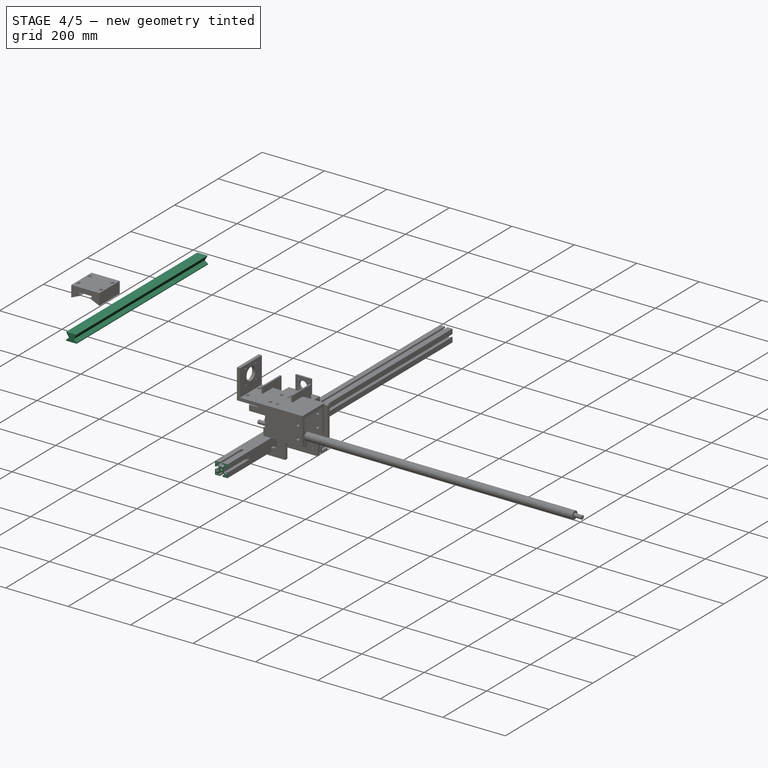
[diagram: stage 4 of 5 — iso view after this stage's code; geometry added in this stage tinted green]
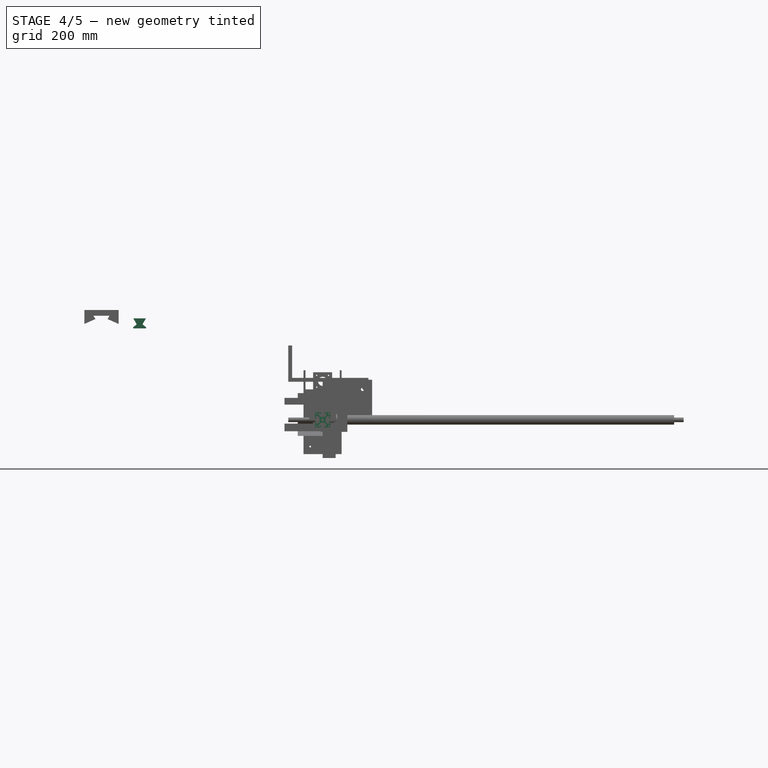
[diagram: stage 4 of 5 — front view after this stage's code; geometry added in this stage tinted green]
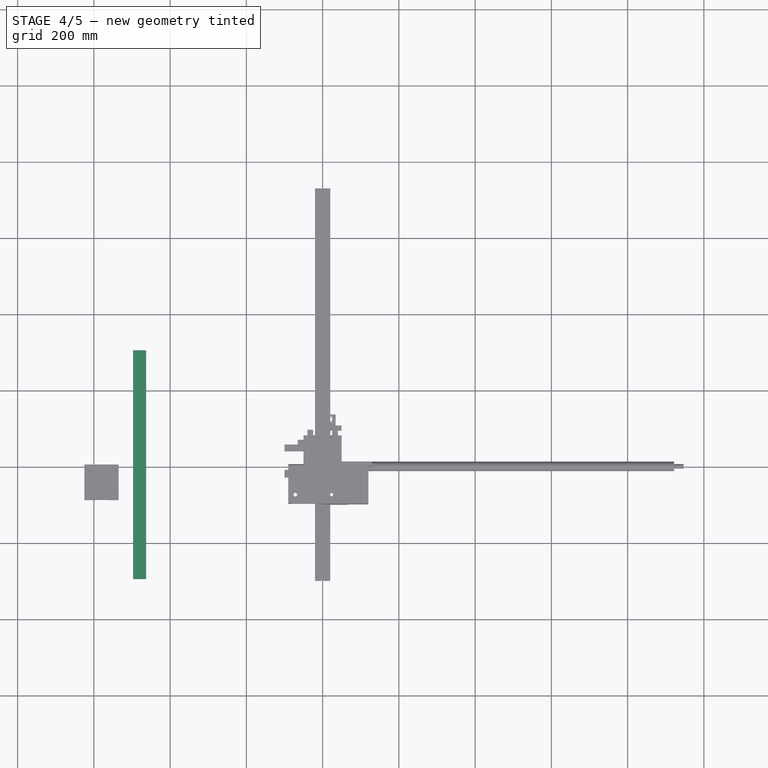
[diagram: stage 4 of 5 — top view after this stage's code; geometry added in this stage tinted green]
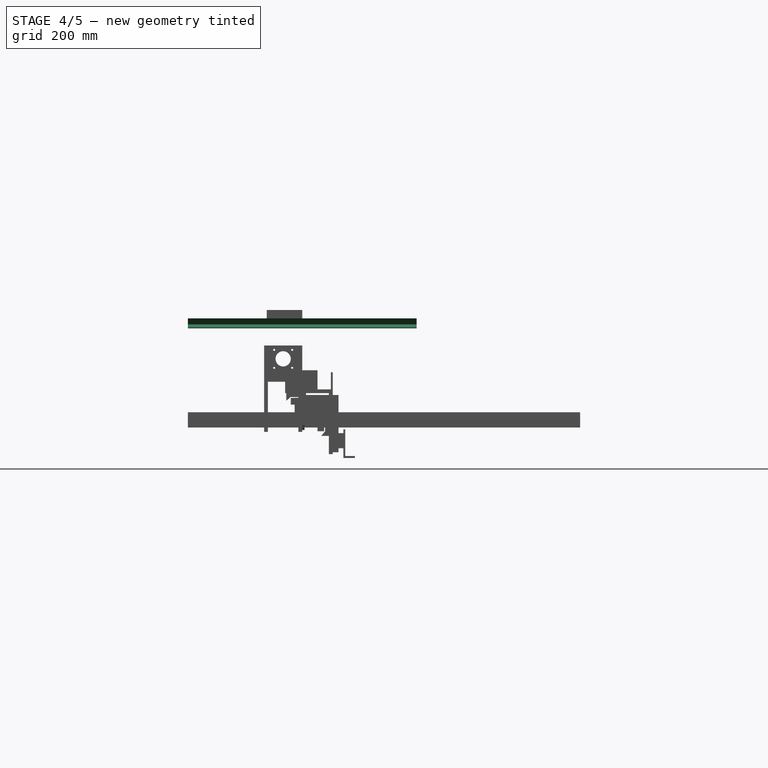
[diagram: stage 4 of 5 — right view after this stage's code; geometry added in this stage tinted green]
FEATURE [PartDesign::Body] Body007  label="top_pillar002"
  Group = -> [Sketch014,Pad007,Sketch013,Pocket006,MultiTransform006,PolarPattern006]
  Origin = -> Origin007
  Placement = pos=(-580,280,200) rot=(1,0,0;1.5708rad)
  Tip = -> MultiTransform006
FEATURE [Sketcher::SketchObject] Sketch015
  FullyConstrained = true
  MapMode = 5
  Placement = pos=(0,0,0) rot=(1,0,0;1.5708rad)
  Support = -> [XZ_Plane008]
  sketch-geometry (18):
    g0: LineSegment StartX=-4 StartY=20 StartZ=0 EndX=-4 EndY=15.5 EndZ=0
    g1: LineSegment StartX=-4 StartY=15.5 StartZ=0 EndX=-5.8 EndY=15.5 EndZ=0
    g2: LineSegment StartX=-5.8 StartY=15.5 StartZ=0 EndX=-5.8 EndY=18 EndZ=0
    g3: LineSegment StartX=-5.8 StartY=18 StartZ=0 EndX=-10 EndY=17 EndZ=0
    g4: LineSegment StartX=-10 StartY=17 StartZ=0 EndX=-10 EndY=13 EndZ=0
    g5: LineSegment StartX=-10 StartY=13 StartZ=0 EndX=-5.8 EndY=7.75 EndZ=0
    g6: LineSegment StartX=-5.8 StartY=7.75 StartZ=0 EndX=5.8 EndY=7.75 EndZ=0
    g7: LineSegment StartX=5.8 StartY=7.75 StartZ=0 EndX=10 EndY=13 EndZ=0
    g8: LineSegment StartX=10 StartY=13 StartZ=0 EndX=10 EndY=17 EndZ=0
    g9: LineSegment StartX=10 StartY=17 StartZ=0 EndX=5.8 EndY=18 EndZ=0
    g10: LineSegment StartX=5.8 StartY=18 StartZ=0 EndX=5.8 EndY=15.5 EndZ=0
    g11: LineSegment StartX=5.8 StartY=15.5 StartZ=0 EndX=4 EndY=15.5 EndZ=0
    g12: LineSegment StartX=4 StartY=15.5 StartZ=0 EndX=4 EndY=20 EndZ=0
    g13: LineSegment StartX=4 StartY=20 StartZ=0 EndX=-4 EndY=20 EndZ=0
    g14: LineSegment StartX=-14 StartY=18 StartZ=0 EndX=-18 EndY=18 EndZ=0
    g15: LineSegment StartX=-18 StartY=18 StartZ=0 EndX=-18 EndY=14 EndZ=0
    g16: LineSegment StartX=-18 StartY=14 StartZ=0 EndX=-14 EndY=14 EndZ=0
    g17: LineSegment StartX=-14 StartY=14 StartZ=0 EndX=-14 EndY=18 EndZ=0
  constraints (54):
    c: Vertical(g0)
    c: Coincident(g0,g1)
    c: Horizontal(g1)
    c: Coincident(g1,g2)
    c: Vertical(g2)
    c: Coincident(g2,g3)
    c: Coincident(g3,g4)
    c: Vertical(g4)
    c: Coincident(g4,g5)
    c: Coincident(g5,g6)
    c: Horizontal(g6)
    c: Coincident(g6,g7)
    c: Coincident(g7,g8)
    c: Vertical(g8)
    c: Coincident(g8,g9)
    c: Coincident(g9,g10)
    c: Coincident(g10,g11)
    c: Horizontal(g11)
    c: Coincident(g11,g12)
    c: Vertical(g12)
    c: Coincident(g12,g13)
    c: Coincident(g13,g0)
    c: Horizontal(g13)
    c: Vertical(g10)
    c: Distance(g12) = 4.5
    c: Distance(g0) = 4.5
    c: DistanceY(g5,g0) = 7.75
    c: Distance(g13) = 8
    c: Horizontal(g9,g2)
    c: Equal(g11,g1)
    c: Vertical(g10,g6)
    c: Vertical(g1,g5)
    c: Equal(g8,g4)
    c: Equal(g9,g3)
    c: Distance(g11) = 1.8
    c: DistanceY(g3,g2) = 1
    c: DistanceY(g2,g0) = 2
    c: Horizontal(g7,g4)
    c: Distance(g8) = 4
    c: DistanceX(g3,g8) = 20
    c: DistanceY(g-1,g12) = 20
    c: DistanceX(g-1,g12) = 4
    c: Coincident(g14,g15)
    c: Coincident(g15,g16)
    c: Coincident(g16,g17)
    c: Coincident(g17,g14)
    c: Horizontal(g14)
    c: Horizontal(g16)
    c: Vertical(g15)
    c: Vertical(g17)
    c: Equal(g17,g16)
    c: Distance(g17) = 4
    c: DistanceY(g-1,g14) = 18
    c: DistanceX(g14,g-1) = 18
FEATURE [PartDesign::PolarPattern] PolarPattern007
  Angle = 360
  Axis = -> Sketch015 [N_Axis]
  Occurrences = 4
  Placement = pos=(0,0,0) rot=(1,0,0;1.5708rad)
FEATURE [Sketcher::SketchObject] Sketch016
  FullyConstrained = true
  MapMode = 5
  Placement = pos=(0,0,0) rot=(1,0,0;1.5708rad)
  Support = -> [XZ_Plane008]
  sketch-geometry (5):
    g0: Circle CenterX=0 CenterY=0 CenterZ=0 NormalX=0 NormalY=0 NormalZ=1 AngleXU=0 Radius=3.4
    g1: LineSegment StartX=-20 StartY=20 StartZ=0 EndX=20 EndY=20 EndZ=0
    g2: LineSegment StartX=20 StartY=20 StartZ=0 EndX=20 EndY=-20 EndZ=0
    g3: LineSegment StartX=20 StartY=-20 StartZ=0 EndX=-20 EndY=-20 EndZ=0
    g4: LineSegment StartX=-20 StartY=-20 StartZ=0 EndX=-20 EndY=20 EndZ=0
  constraints (14):
    c: Coincident(g0,g-1)
    c: Radius(g0) = 3.4
    c: Coincident(g1,g2)
    c: Coincident(g2,g3)
    c: Coincident(g3,g4)
    c: Coincident(g4,g1)
    c: Horizontal(g1)
    c: Horizontal(g3)
    c: Vertical(g2)
    c: Vertical(g4)
    c: Distance(g2) = 40
    c: Distance(g3) = 40
    c: DistanceX(g0,g2) = 20
    c: DistanceY(g3,g0) = 20
FEATURE [PartDesign::Pad] Pad008  label="base007"
  Direction = (1,1,1)
  Length = 200
  Length2 = 0
  Placement = pos=(0,0,0) rot=(1,0,0;1.5708rad)
  Profile = -> Sketch016
  Reversed = true
  Type = 4
FEATURE [PartDesign::Body] Body008  label="top_pillar003"
  Group = -> [Sketch016,Pad008,Sketch015,Pocket007,MultiTransform007,PolarPattern007]
  Origin = -> Origin008
  Placement = pos=(480,280,200) rot=(1,0,0;1.5708rad)
  Tip = -> MultiTransform007
FEATURE [Sketcher::SketchObject] Sketch017
  FullyConstrained = true
  MapMode = 5
  Placement = pos=(0,0,0) rot=(1,0,0;1.5708rad)
  Support = -> [XZ_Plane009]
  sketch-geometry (18):
    g0: LineSegment StartX=-4 StartY=20 StartZ=0 EndX=-4 EndY=15.5 EndZ=0
    g1: LineSegment StartX=-4 StartY=15.5 StartZ=0 EndX=-5.8 EndY=15.5 EndZ=0
    g2: LineSegment StartX=-5.8 StartY=15.5 StartZ=0 EndX=-5.8 EndY=18 EndZ=0
    g3: LineSegment StartX=-5.8 StartY=18 StartZ=0 EndX=-10 EndY=17 EndZ=0
    g4: LineSegment StartX=-10 StartY=17 StartZ=0 EndX=-10 EndY=13 EndZ=0
    g5: LineSegment StartX=-10 StartY=13 StartZ=0 EndX=-5.8 EndY=7.75 EndZ=0
    g6: LineSegment StartX=-5.8 StartY=7.75 StartZ=0 EndX=5.8 EndY=7.75 EndZ=0
    g7: LineSegment StartX=5.8 StartY=7.75 StartZ=0 EndX=10 EndY=13 EndZ=0
    g8: LineSegment StartX=10 StartY=13 StartZ=0 EndX=10 EndY=17 EndZ=0
    g9: LineSegment StartX=10 StartY=17 StartZ=0 EndX=5.8 EndY=18 EndZ=0
    g10: LineSegment StartX=5.8 StartY=18 StartZ=0 EndX=5.8 EndY=15.5 EndZ=0
    g11: LineSegment StartX=5.8 StartY=15.5 StartZ=0 EndX=4 EndY=15.5 EndZ=0
    g12: LineSegment StartX=4 StartY=15.5 StartZ=0 EndX=4 EndY=20 EndZ=0
    g13: LineSegment StartX=4 StartY=20 StartZ=0 EndX=-4 EndY=20 EndZ=0
    g14: LineSegment StartX=-14 StartY=18 StartZ=0 EndX=-18 EndY=18 EndZ=0
    g15: LineSegment StartX=-18 StartY=18 StartZ=0 EndX=-18 EndY=14 EndZ=0
    g16: LineSegment StartX=-18 StartY=14 StartZ=0 EndX=-14 EndY=14 EndZ=0
    g17: LineSegment StartX=-14 StartY=14 StartZ=0 EndX=-14 EndY=18 EndZ=0
  constraints (54):
    c: Vertical(g0)
    c: Coincident(g0,g1)
    c: Horizontal(g1)
    c: Coincident(g1,g2)
    c: Vertical(g2)
    c: Coincident(g2,g3)
    c: Coincident(g3,g4)
    c: Vertical(g4)
    c: Coincident(g4,g5)
    c: Coincident(g5,g6)
    c: Horizontal(g6)
    c: Coincident(g6,g7)
    c: Coincident(g7,g8)
    c: Vertical(g8)
    c: Coincident(g8,g9)
    c: Coincident(g9,g10)
    c: Coincident(g10,g11)
    c: Horizontal(g11)
    c: Coincident(g11,g12)
    c: Vertical(g12)
    c: Coincident(g12,g13)
    c: Coincident(g13,g0)
    c: Horizontal(g13)
    c: Vertical(g10)
    c: Distance(g12) = 4.5
    c: Distance(g0) = 4.5
    c: DistanceY(g5,g0) = 7.75
    c: Distance(g13) = 8
    c: Horizontal(g9,g2)
    c: Equal(g11,g1)
    c: Vertical(g10,g6)
    c: Vertical(g1,g5)
    c: Equal(g8,g4)
    c: Equal(g9,g3)
    c: Distance(g11) = 1.8
    c: DistanceY(g3,g2) = 1
    c: DistanceY(g2,g0) = 2
    c: Horizontal(g7,g4)
    c: Distance(g8) = 4
    c: DistanceX(g3,g8) = 20
    c: DistanceY(g-1,g12) = 20
    c: DistanceX(g-1,g12) = 4
    c: Coincident(g14,g15)
    c: Coincident(g15,g16)
    c: Coincident(g16,g17)
    c: Coincident(g17,g14)
    c: Horizontal(g14)
    c: Horizontal(g16)
    c: Vertical(g15)
    c: Vertical(g17)
    c: Equal(g17,g16)
    c: Distance(g17) = 4
    c: DistanceY(g-1,g14) = 18
    c: DistanceX(g14,g-1) = 18
FEATURE [PartDesign::PolarPattern] PolarPattern008
  Angle = 360
  Axis = -> Sketch017 [N_Axis]
  Occurrences = 4
  Placement = pos=(0,0,0) rot=(1,0,0;1.5708rad)
FEATURE [Sketcher::SketchObject] Sketch018
  FullyConstrained = true
  MapMode = 5
  Placement = pos=(0,0,0) rot=(1,0,0;1.5708rad)
  Support = -> [XZ_Plane009]
  sketch-geometry (5):
    g0: Circle CenterX=0 CenterY=0 CenterZ=0 NormalX=0 NormalY=0 NormalZ=1 AngleXU=0 Radius=3.4
    g1: LineSegment StartX=-20 StartY=20 StartZ=0 EndX=20 EndY=20 EndZ=0
    g2: LineSegment StartX=20 StartY=20 StartZ=0 EndX=20 EndY=-20 EndZ=0
    g3: LineSegment StartX=20 StartY=-20 StartZ=0 EndX=-20 EndY=-20 EndZ=0
    g4: LineSegment StartX=-20 StartY=-20 StartZ=0 EndX=-20 EndY=20 EndZ=0
  constraints (14):
    c: Coincident(g0,g-1)
    c: Radius(g0) = 3.4
    c: Coincident(g1,g2)
    c: Coincident(g2,g3)
    c: Coincident(g3,g4)
    c: Coincident(g4,g1)
    c: Horizontal(g1)
    c: Horizontal(g3)
    c: Vertical(g2)
    c: Vertical(g4)
    c: Distance(g2) = 40
    c: Distance(g3) = 40
    c: DistanceX(g0,g2) = 20
    c: DistanceY(g3,g0) = 20
FEATURE [PartDesign::Pad] Pad009  label="base008"
  Direction = (1,1,1)
  Length = 200
  Length2 = 0
  Placement = pos=(0,0,0) rot=(1,0,0;1.5708rad)
  Profile = -> Sketch018
  Reversed = true
  Type = 4
FEATURE [PartDesign::Pocket] Pocket008  label="nut008"
  BaseFeature = -> Pad009
  Length = 1000
  Length2 = 1000
  Placement = pos=(0,0,0) rot=(1,0,0;1.5708rad)
  Profile = -> Sketch017
  Type = 4
FEATURE [PartDesign::MultiTransform] MultiTransform008
  BaseFeature = -> Pocket008
  Originals = -> [Pocket008]
  Placement = pos=(0,0,0) rot=(1,0,0;1.5708rad)
  Transformations = -> [PolarPattern008]
FEATURE [PartDesign::Body] Body009  label="top_pillar004"
  Group = -> [Sketch018,Pad009,Sketch017,Pocket008,MultiTransform008,PolarPattern008]
  Origin = -> Origin009
  Placement = pos=(480,-280,200) rot=(1,0,0;1.5708rad)
  Tip = -> MultiTransform008
FEATURE [Sketcher::SketchObject] Sketch019
  FullyConstrained = true
  MapMode = 5
  Placement = pos=(0,0,0) rot=(1,0,0;1.5708rad)
  Support = -> [XZ_Plane010]
  sketch-geometry (18):
    g0: LineSegment StartX=-4 StartY=20 StartZ=0 EndX=-4 EndY=15.5 EndZ=0
    g1: LineSegment StartX=-4 StartY=15.5 StartZ=0 EndX=-5.8 EndY=15.5 EndZ=0
    g2: LineSegment StartX=-5.8 StartY=15.5 StartZ=0 EndX=-5.8 EndY=18 EndZ=0
    g3: LineSegment StartX=-5.8 StartY=18 StartZ=0 EndX=-10 EndY=17 EndZ=0
    g4: LineSegment StartX=-10 StartY=17 StartZ=0 EndX=-10 EndY=13 EndZ=0
    g5: LineSegment StartX=-10 StartY=13 StartZ=0 EndX=-5.8 EndY=7.75 EndZ=0
    g6: LineSegment StartX=-5.8 StartY=7.75 StartZ=0 EndX=5.8 EndY=7.75 EndZ=0
    g7: LineSegment StartX=5.8 StartY=7.75 StartZ=0 EndX=10 EndY=13 EndZ=0
    g8: LineSegment StartX=10 StartY=13 StartZ=0 EndX=10 EndY=17 EndZ=0
    g9: LineSegment StartX=10 StartY=17 StartZ=0 EndX=5.8 EndY=18 EndZ=0
    g10: LineSegment StartX=5.8 StartY=18 StartZ=0 EndX=5.8 EndY=15.5 EndZ=0
    g11: LineSegment StartX=5.8 StartY=15.5 StartZ=0 EndX=4 EndY=15.5 EndZ=0
    g12: LineSegment StartX=4 StartY=15.5 StartZ=0 EndX=4 EndY=20 EndZ=0
    g13: LineSegment StartX=4 StartY=20 StartZ=0 EndX=-4 EndY=20 EndZ=0
    g14: LineSegment StartX=-14 StartY=18 StartZ=0 EndX=-18 EndY=18 EndZ=0
    g15: LineSegment StartX=-18 StartY=18 StartZ=0 EndX=-18 EndY=14 EndZ=0
    g16: LineSegment StartX=-18 StartY=14 StartZ=0 EndX=-14 EndY=14 EndZ=0
    g17: LineSegment StartX=-14 StartY=14 StartZ=0 EndX=-14 EndY=18 EndZ=0
  constraints (54):
    c: Vertical(g0)
    c: Coincident(g0,g1)
    c: Horizontal(g1)
    c: Coincident(g1,g2)
    c: Vertical(g2)
    c: Coincident(g2,g3)
    c: Coincident(g3,g4)
    c: Vertical(g4)
    c: Coincident(g4,g5)
    c: Coincident(g5,g6)
    c: Horizontal(g6)
    c: Coincident(g6,g7)
    c: Coincident(g7,g8)
    c: Vertical(g8)
    c: Coincident(g8,g9)
    c: Coincident(g9,g10)
    c: Coincident(g10,g11)
    c: Horizontal(g11)
    c: Coincident(g11,g12)
    c: Vertical(g12)
    c: Coincident(g12,g13)
    c: Coincident(g13,g0)
    c: Horizontal(g13)
    c: Vertical(g10)
    c: Distance(g12) = 4.5
    c: Distance(g0) = 4.5
    c: DistanceY(g5,g0) = 7.75
    c: Distance(g13) = 8
    c: Horizontal(g9,g2)
    c: Equal(g11,g1)
    c: Vertical(g10,g6)
    c: Vertical(g1,g5)
    c: Equal(g8,g4)
    c: Equal(g9,g3)
    c: Distance(g11) = 1.8
    c: DistanceY(g3,g2) = 1
    c: DistanceY(g2,g0) = 2
    c: Horizontal(g7,g4)
    c: Distance(g8) = 4
    c: DistanceX(g3,g8) = 20
    c: DistanceY(g-1,g12) = 20
    c: DistanceX(g-1,g12) = 4
    c: Coincident(g14,g15)
    c: Coincident(g15,g16)
    c: Coincident(g16,g17)
    c: Coincident(g17,g14)
    c: Horizontal(g14)
    c: Horizontal(g16)
    c: Vertical(g15)
    c: Vertical(g17)
    c: Equal(g17,g16)
    c: Distance(g17) = 4
    c: DistanceY(g-1,g14) = 18
    c: DistanceX(g14,g-1) = 18
FEATURE [PartDesign::PolarPattern] PolarPattern009
  Angle = 360
  Axis = -> Sketch019 [N_Axis]
  Occurrences = 4
  Placement = pos=(0,0,0) rot=(1,0,0;1.5708rad)
FEATURE [Sketcher::SketchObject] Sketch020
  FullyConstrained = true
  MapMode = 5
  Placement = pos=(0,0,0) rot=(1,0,0;1.5708rad)
  Support = -> [XZ_Plane010]
  sketch-geometry (5):
    g0: Circle CenterX=0 CenterY=0 CenterZ=0 NormalX=0 NormalY=0 NormalZ=1 AngleXU=0 Radius=3.4
    g1: LineSegment StartX=-20 StartY=20 StartZ=0 EndX=20 EndY=20 EndZ=0
    g2: LineSegment StartX=20 StartY=20 StartZ=0 EndX=20 EndY=-20 EndZ=0
    g3: LineSegment StartX=20 StartY=-20 StartZ=0 EndX=-20 EndY=-20 EndZ=0
    g4: LineSegment StartX=-20 StartY=-20 StartZ=0 EndX=-20 EndY=20 EndZ=0
  constraints (14):
    c: Coincident(g0,g-1)
    c: Radius(g0) = 3.4
    c: Coincident(g1,g2)
    c: Coincident(g2,g3)
    c: Coincident(g3,g4)
    c: Coincident(g4,g1)
    c: Horizontal(g1)
    c: Horizontal(g3)
    c: Vertical(g2)
    c: Vertical(g4)
    c: Distance(g2) = 40
    c: Distance(g3) = 40
    c: DistanceX(g0,g2) = 20
    c: DistanceY(g3,g0) = 20
FEATURE [PartDesign::Pad] Pad010  label="base009"
  Direction = (1,1,1)
  Length = 300
  Length2 = 300
  Placement = pos=(0,0,0) rot=(1,0,0;1.5708rad)
  Profile = -> Sketch020
  Reversed = true
  Type = 4
FEATURE [PartDesign::Pocket] Pocket009  label="nut009"
  BaseFeature = -> Pad010
  Length = 1000
  Length2 = 1000
  Placement = pos=(0,0,0) rot=(1,0,0;1.5708rad)
  Profile = -> Sketch019
  Type = 4
FEATURE [PartDesign::MultiTransform] MultiTransform009
  BaseFeature = -> Pocket009
  Originals = -> [Pocket009]
  Placement = pos=(0,0,0) rot=(1,0,0;1.5708rad)
  Transformations = -> [PolarPattern009]
FEATURE [PartDesign::Body] Body010  label="top_frame1"
  Group = -> [Sketch020,Pad010,Sketch019,Pocket009,MultiTransform009,PolarPattern009]
  Origin = -> Origin010
  Placement = pos=(-580,0,220) rot=(0,0,1;0rad)
  Tip = -> MultiTransform009
FEATURE [Sketcher::SketchObject] Sketch021
  FullyConstrained = true
  MapMode = 5
  Placement = pos=(0,0,0) rot=(1,0,0;1.5708rad)
  Support = -> [XZ_Plane011]
  sketch-geometry (5):
    g0: Circle CenterX=0 CenterY=0 CenterZ=0 NormalX=0 NormalY=0 NormalZ=1 AngleXU=0 Radius=3.4
    g1: LineSegment StartX=-20 StartY=20 StartZ=0 EndX=20 EndY=20 EndZ=0
    g2: LineSegment StartX=20 StartY=20 StartZ=0 EndX=20 EndY=-20 EndZ=0
    g3: LineSegment StartX=20 StartY=-20 StartZ=0 EndX=-20 EndY=-20 EndZ=0
    g4: LineSegment StartX=-20 StartY=-20 StartZ=0 EndX=-20 EndY=20 EndZ=0
  constraints (14):
    c: Coincident(g0,g-1)
    c: Radius(g0) = 3.4
    c: Coincident(g1,g2)
    c: Coincident(g2,g3)
    c: Coincident(g3,g4)
    c: Coincident(g4,g1)
    c: Horizontal(g1)
    c: Horizontal(g3)
    c: Vertical(g2)
    c: Vertical(g4)
    c: Distance(g2) = 40
    c: Distance(g3) = 40
    c: DistanceX(g0,g2) = 20
    c: DistanceY(g3,g0) = 20
FEATURE [Sketcher::SketchObject] Sketch022
  FullyConstrained = true
  MapMode = 5
  Placement = pos=(0,0,0) rot=(1,0,0;1.5708rad)
  Support = -> [XZ_Plane011]
  sketch-geometry (18):
    g0: LineSegment StartX=-4 StartY=20 StartZ=0 EndX=-4 EndY=15.5 EndZ=0
    g1: LineSegment StartX=-4 StartY=15.5 StartZ=0 EndX=-5.8 EndY=15.5 EndZ=0
    g2: LineSegment StartX=-5.8 StartY=15.5 StartZ=0 EndX=-5.8 EndY=18 EndZ=0
    g3: LineSegment StartX=-5.8 StartY=18 StartZ=0 EndX=-10 EndY=17 EndZ=0
    g4: LineSegment StartX=-10 StartY=17 StartZ=0 EndX=-10 EndY=13 EndZ=0
    g5: LineSegment StartX=-10 StartY=13 StartZ=0 EndX=-5.8 EndY=7.75 EndZ=0
    g6: LineSegment StartX=-5.8 StartY=7.75 StartZ=0 EndX=5.8 EndY=7.75 EndZ=0
    g7: LineSegment StartX=5.8 StartY=7.75 StartZ=0 EndX=10 EndY=13 EndZ=0
    g8: LineSegment StartX=10 StartY=13 StartZ=0 EndX=10 EndY=17 EndZ=0
    g9: LineSegment StartX=10 StartY=17 StartZ=0 EndX=5.8 EndY=18 EndZ=0
    g10: LineSegment StartX=5.8 StartY=18 StartZ=0 EndX=5.8 EndY=15.5 EndZ=0
    g11: LineSegment StartX=5.8 StartY=15.5 StartZ=0 EndX=4 EndY=15.5 EndZ=0
    g12: LineSegment StartX=4 StartY=15.5 StartZ=0 EndX=4 EndY=20 EndZ=0
    g13: LineSegment StartX=4 StartY=20 StartZ=0 EndX=-4 EndY=20 EndZ=0
    g14: LineSegment StartX=-14 StartY=18 StartZ=0 EndX=-18 EndY=18 EndZ=0
    g15: LineSegment StartX=-18 StartY=18 StartZ=0 EndX=-18 EndY=14 EndZ=0
    g16: LineSegment StartX=-18 StartY=14 StartZ=0 EndX=-14 EndY=14 EndZ=0
    g17: LineSegment StartX=-14 StartY=14 StartZ=0 EndX=-14 EndY=18 EndZ=0
  constraints (54):
    c: Vertical(g0)
    c: Coincident(g0,g1)
    c: Horizontal(g1)
    c: Coincident(g1,g2)
    c: Vertical(g2)
    c: Coincident(g2,g3)
    c: Coincident(g3,g4)
    c: Vertical(g4)
    c: Coincident(g4,g5)
    c: Coincident(g5,g6)
    c: Horizontal(g6)
    c: Coincident(g6,g7)
    c: Coincident(g7,g8)
    c: Vertical(g8)
    c: Coincident(g8,g9)
    c: Coincident(g9,g10)
    c: Coincident(g10,g11)
    c: Horizontal(g11)
    c: Coincident(g11,g12)
    c: Vertical(g12)
    c: Coincident(g12,g13)
    c: Coincident(g13,g0)
    c: Horizontal(g13)
    c: Vertical(g10)
    c: Distance(g12) = 4.5
    c: Distance(g0) = 4.5
    c: DistanceY(g5,g0) = 7.75
    c: Distance(g13) = 8
    c: Horizontal(g9,g2)
    c: Equal(g11,g1)
    c: Vertical(g10,g6)
    c: Vertical(g1,g5)
    c: Equal(g8,g4)
    c: Equal(g9,g3)
    c: Distance(g11) = 1.8
    c: DistanceY(g3,g2) = 1
    c: DistanceY(g2,g0) = 2
    c: Horizontal(g7,g4)
    c: Distance(g8) = 4
    c: DistanceX(g3,g8) = 20
    c: DistanceY(g-1,g12) = 20
    c: DistanceX(g-1,g12) = 4
    c: Coincident(g14,g15)
    c: Coincident(g15,g16)
    c: Coincident(g16,g17)
    c: Coincident(g17,g14)
    c: Horizontal(g14)
    c: Horizontal(g16)
    c: Vertical(g15)
    c: Vertical(g17)
    c: Equal(g17,g16)
    c: Distance(g17) = 4
    c: DistanceY(g-1,g14) = 18
    c: DistanceX(g14,g-1) = 18
FEATURE [PartDesign::PolarPattern] PolarPattern010
  Angle = 360
  Axis = -> Sketch022 [N_Axis]
  Occurrences = 4
  Placement = pos=(0,0,0) rot=(1,0,0;1.5708rad)
FEATURE [PartDesign::Pad] Pad011  label="base010"
  Direction = (1,1,1)
  Length = 300
  Length2 = 300
  Placement = pos=(0,0,0) rot=(1,0,0;1.5708rad)
  Profile = -> Sketch021
  Reversed = true
  Type = 4
FEATURE [PartDesign::Pocket] Pocket010  label="nut010"
  BaseFeature = -> Pad011
  Length = 1000
  Length2 = 1000
  Placement = pos=(0,0,0) rot=(1,0,0;1.5708rad)
  Profile = -> Sketch022
  Type = 4
FEATURE [PartDesign::MultiTransform] MultiTransform010
  BaseFeature = -> Pocket010
  Originals = -> [Pocket010]
  Placement = pos=(0,0,0) rot=(1,0,0;1.5708rad)
  Transformations = -> [PolarPattern010]
FEATURE [PartDesign::Body] Body011  label="top_frame002"
  Group = -> [Sketch021,Pad011,Sketch022,Pocket010,MultiTransform010,PolarPattern010]
  Origin = -> Origin011
  Placement = pos=(480,0,220) rot=(0,0,1;0rad)
  Tip = -> MultiTransform010
FEATURE [Sketcher::SketchObject] Sketch023
  FullyConstrained = true
  MapMode = 5
  Placement = pos=(0,0,0) rot=(1,0,0;1.5708rad)
  Support = -> [XZ_Plane012]
  sketch-geometry (8):
    g0: LineSegment StartX=-497 StartY=240 StartZ=0 EndX=-463 EndY=240 EndZ=0
    g1: LineSegment StartX=-463 StartY=240 StartZ=0 EndX=-463 EndY=243 EndZ=0
    g2: LineSegment StartX=-463 StartY=243 StartZ=0 EndX=-472.5 EndY=250.412 EndZ=0
    g3: LineSegment StartX=-472.5 StartY=250.412 StartZ=0 EndX=-463.5 EndY=266 EndZ=0
    g4: LineSegment StartX=-463.5 StartY=266 StartZ=0 EndX=-496.5 EndY=266 EndZ=0
    g5: LineSegment StartX=-496.5 StartY=266 StartZ=0 EndX=-487.5 EndY=250.412 EndZ=0
    g6: LineSegment StartX=-487.5 StartY=250.412 StartZ=0 EndX=-497 EndY=243 EndZ=0
    g7: LineSegment StartX=-497 StartY=243 StartZ=0 EndX=-497 EndY=240 EndZ=0
  constraints (24):
    c: Horizontal(g0)
    c: Coincident(g0,g1)
    c: Vertical(g1)
    c: Coincident(g1,g2)
    c: Coincident(g2,g3)
    c: Coincident(g3,g4)
    c: Horizontal(g4)
    c: Coincident(g4,g5)
    c: Coincident(g5,g6)
    c: Coincident(g7,g6)
    c: Coincident(g7,g0)
    c: Vertical(g7)
    c: Distance(g0) = 34
    c: Distance(g4) = 33
    c: Horizontal(g5,g2)
    c: Equal(g6,g2)
    c: DistanceX(g0,g4) = 0.5
    c: Equal(g7,g1)
    c: Angle(g5,g4) = 1.0472
    c: DistanceY(g0,g4) = 26
    c: Distance(g1) = 3
    c: Distance(g3) = 18
    c: DistanceX(g0,g-1) = 463
    c: DistanceY(g-1,g0) = 240
FEATURE [PartDesign::Pad] Pad012
  Direction = (1,1,1)
  Length = 300
  Length2 = 300
  Placement = pos=(0,0,0) rot=(1,0,0;1.5708rad)
  Profile = -> Sketch023
  Type = 4
FEATURE [PartDesign::Body] Body012  label="linear_rail_y1"
  Group = -> [Sketch023,Pad012]
  Origin = -> Origin012
  Placement = pos=(-100,0,0) rot=(0,0,1;0rad)
  Tip = -> Pad012
FEATURE [Sketcher::SketchObject] Sketch024
  FullyConstrained = true
  MapMode = 5
  Placement = pos=(0,0,0) rot=(1,0,0;1.5708rad)
  Support = -> [XZ_Plane013]
  sketch-geometry (8):
    g0: LineSegment StartX=-497 StartY=240 StartZ=0 EndX=-463 EndY=240 EndZ=0
    g1: LineSegment StartX=-463 StartY=240 StartZ=0 EndX=-463 EndY=243 EndZ=0
    g2: LineSegment StartX=-463 StartY=243 StartZ=0 EndX=-472.5 EndY=250.412 EndZ=0
    g3: LineSegment StartX=-472.5 StartY=250.412 StartZ=0 EndX=-463.5 EndY=266 EndZ=0
    g4: LineSegment StartX=-463.5 StartY=266 StartZ=0 EndX=-496.5 EndY=266 EndZ=0
    g5: LineSegment StartX=-496.5 StartY=266 StartZ=0 EndX=-487.5 EndY=250.412 EndZ=0
    g6: LineSegment StartX=-487.5 StartY=250.412 StartZ=0 EndX=-497 EndY=243 EndZ=0
    g7: LineSegment StartX=-497 StartY=243 StartZ=0 EndX=-497 EndY=240 EndZ=0
  constraints (24):
    c: Horizontal(g0)
    c: Coincident(g0,g1)
    c: Vertical(g1)
    c: Coincident(g1,g2)
    c: Coincident(g2,g3)
    c: Coincident(g3,g4)
    c: Horizontal(g4)
    c: Coincident(g4,g5)
    c: Coincident(g5,g6)
    c: Coincident(g7,g6)
    c: Coincident(g7,g0)
    c: Vertical(g7)
    c: Distance(g0) = 34
    c: Distance(g4) = 33
    c: Horizontal(g5,g2)
    c: Equal(g6,g2)
    c: DistanceX(g0,g4) = 0.5
    c: Equal(g7,g1)
    c: Angle(g5,g4) = 1.0472
    c: DistanceY(g0,g4) = 26
    c: Distance(g1) = 3
    c: Distance(g3) = 18
    c: DistanceX(g0,g-1) = 463
    c: DistanceY(g-1,g0) = 240
FEATURE [PartDesign::Pad] Pad013
  Direction = (1,1,1)
  Length = 300
  Length2 = 300
  Placement = pos=(0,0,0) rot=(1,0,0;1.5708rad)
  Profile = -> Sketch024
  Type = 4
FEATURE [PartDesign::Body] Body013  label="linear_rail_y002"
  Group = -> [Sketch024,Pad013]
  Origin = -> Origin013
  Placement = pos=(960,0,0) rot=(0,0,1;0rad)
  Tip = -> Pad013
FEATURE [Sketcher::SketchObject] Sketch025
  FullyConstrained = true
  MapMode = 5
  Placement = pos=(0,0,0) rot=(1,0,0;1.5708rad)
  Support = -> [XZ_Plane014]
  sketch-geometry (18):
    g0: LineSegment StartX=-4 StartY=20 StartZ=0 EndX=-4 EndY=15.5 EndZ=0
    g1: LineSegment StartX=-4 StartY=15.5 StartZ=0 EndX=-5.8 EndY=15.5 EndZ=0
    g2: LineSegment StartX=-5.8 StartY=15.5 StartZ=0 EndX=-5.8 EndY=18 EndZ=0
    g3: LineSegment StartX=-5.8 StartY=18 StartZ=0 EndX=-10 EndY=17 EndZ=0
    g4: LineSegment StartX=-10 StartY=17 StartZ=0 EndX=-10 EndY=13 EndZ=0
    g5: LineSegment StartX=-10 StartY=13 StartZ=0 EndX=-5.8 EndY=7.75 EndZ=0
    g6: LineSegment StartX=-5.8 StartY=7.75 StartZ=0 EndX=5.8 EndY=7.75 EndZ=0
    g7: LineSegment StartX=5.8 StartY=7.75 StartZ=0 EndX=10 EndY=13 EndZ=0
    g8: LineSegment StartX=10 StartY=13 StartZ=0 EndX=10 EndY=17 EndZ=0
    g9: LineSegment StartX=10 StartY=17 StartZ=0 EndX=5.8 EndY=18 EndZ=0
    g10: LineSegment StartX=5.8 StartY=18 StartZ=0 EndX=5.8 EndY=15.5 EndZ=0
    g11: LineSegment StartX=5.8 StartY=15.5 StartZ=0 EndX=4 EndY=15.5 EndZ=0
    g12: LineSegment StartX=4 StartY=15.5 StartZ=0 EndX=4 EndY=20 EndZ=0
    g13: LineSegment StartX=4 StartY=20 StartZ=0 EndX=-4 EndY=20 EndZ=0
    g14: LineSegment StartX=-14 StartY=18 StartZ=0 EndX=-18 EndY=18 EndZ=0
    g15: LineSegment StartX=-18 StartY=18 StartZ=0 EndX=-18 EndY=14 EndZ=0
    g16: LineSegment StartX=-18 StartY=14 StartZ=0 EndX=-14 EndY=14 EndZ=0
    g17: LineSegment StartX=-14 StartY=14 StartZ=0 EndX=-14 EndY=18 EndZ=0
  constraints (54):
    c: Vertical(g0)
    c: Coincident(g0,g1)
    c: Horizontal(g1)
    c: Coincident(g1,g2)
    c: Vertical(g2)
    c: Coincident(g2,g3)
    c: Coincident(g3,g4)
    c: Vertical(g4)
    c: Coincident(g4,g5)
    c: Coincident(g5,g6)
    c: Horizontal(g6)
    c: Coincident(g6,g7)
    c: Coincident(g7,g8)
    c: Vertical(g8)
    c: Coincident(g8,g9)
    c: Coincident(g9,g10)
    c: Coincident(g10,g11)
    c: Horizontal(g11)
    c: Coincident(g11,g12)
    c: Vertical(g12)
    c: Coincident(g12,g13)
    c: Coincident(g13,g0)
    c: Horizontal(g13)
    c: Vertical(g10)
    c: Distance(g12) = 4.5
    c: Distance(g0) = 4.5
    c: DistanceY(g5,g0) = 7.75
    c: Distance(g13) = 8
    c: Horizontal(g9,g2)
    c: Equal(g11,g1)
    c: Vertical(g10,g6)
    c: Vertical(g1,g5)
    c: Equal(g8,g4)
    c: Equal(g9,g3)
    c: Distance(g11) = 1.8
    c: DistanceY(g3,g2) = 1
    c: DistanceY(g2,g0) = 2
    c: Horizontal(g7,g4)
    c: Distance(g8) = 4
    c: DistanceX(g3,g8) = 20
    c: DistanceY(g-1,g12) = 20
    c: DistanceX(g-1,g12) = 4
    c: Coincident(g14,g15)
    c: Coincident(g15,g16)
    c: Coincident(g16,g17)
    c: Coincident(g17,g14)
    c: Horizontal(g14)
    c: Horizontal(g16)
    c: Vertical(g15)
    c: Vertical(g17)
    c: Equal(g17,g16)
    c: Distance(g17) = 4
    c: DistanceY(g-1,g14) = 18
    c: DistanceX(g14,g-1) = 18
FEATURE [Sketcher::SketchObject] Sketch026
  FullyConstrained = true
  MapMode = 5
  Placement = pos=(0,0,0) rot=(1,0,0;1.5708rad)
  Support = -> [XZ_Plane014]
  sketch-geometry (5):
    g0: Circle CenterX=0 CenterY=0 CenterZ=0 NormalX=0 NormalY=0 NormalZ=1 AngleXU=0 Radius=3.4
    g1: LineSegment StartX=-20 StartY=20 StartZ=0 EndX=20 EndY=20 EndZ=0
    g2: LineSegment StartX=20 StartY=20 StartZ=0 EndX=20 EndY=-20 EndZ=0
    g3: LineSegment StartX=20 StartY=-20 StartZ=0 EndX=-20 EndY=-20 EndZ=0
    g4: LineSegment StartX=-20 StartY=-20 StartZ=0 EndX=-20 EndY=20 EndZ=0
  constraints (14):
    c: Coincident(g0,g-1)
    c: Radius(g0) = 3.4
    c: Coincident(g1,g2)
    c: Coincident(g2,g3)
    c: Coincident(g3,g4)
    c: Coincident(g4,g1)
    c: Horizontal(g1)
    c: Horizontal(g3)
    c: Vertical(g2)
    c: Vertical(g4)
    c: Distance(g2) = 40
    c: Distance(g3) = 40
    c: DistanceX(g0,g2) = 20
    c: DistanceY(g3,g0) = 20
FEATURE [PartDesign::PolarPattern] PolarPattern011
  Angle = 360
  Axis = -> Sketch025 [N_Axis]
  Occurrences = 4
  Placement = pos=(0,0,0) rot=(1,0,0;1.5708rad)
FEATURE [PartDesign::Pad] Pad014  label="base011"
  Direction = (1,1,1)
  Length = 300
  Length2 = 300
  Placement = pos=(0,0,0) rot=(1,0,0;1.5708rad)
  Profile = -> Sketch026
  Reversed = true
  Type = 4
FEATURE [PartDesign::Pocket] Pocket011  label="nut011"
  BaseFeature = -> Pad014
  Length = 1000
  Length2 = 1000
  Placement = pos=(0,0,0) rot=(1,0,0;1.5708rad)
  Profile = -> Sketch025
  Type = 4
FEATURE [PartDesign::MultiTransform] MultiTransform011
  BaseFeature = -> Pocket011
  Originals = -> [Pocket011]
  Placement = pos=(0,0,0) rot=(1,0,0;1.5708rad)
  Transformations = -> [PolarPattern011]
FEATURE [PartDesign::Body] Body016  label="linear_block_y002"
  Group = -> [Sketch028,Pad016,Sketch030,Pocket013]
  Origin = -> Origin016
  Placement = pos=(1060,0,0) rot=(0,0,1;0rad)
  Tip = -> Pocket013
FEATURE [Sketcher::SketchObject] Sketch031
  FullyConstrained = true
  MapMode = 5
  Placement = pos=(0,0,0) rot=(1,0,0;1.5708rad)
  Support = -> [XZ_Plane017]
  sketch-geometry (18):
    g0: LineSegment StartX=-4 StartY=20 StartZ=0 EndX=-4 EndY=15.5 EndZ=0
    g1: LineSegment StartX=-4 StartY=15.5 StartZ=0 EndX=-5.8 EndY=15.5 EndZ=0
    g2: LineSegment StartX=-5.8 StartY=15.5 StartZ=0 EndX=-5.8 EndY=18 EndZ=0
    g3: LineSegment StartX=-5.8 StartY=18 StartZ=0 EndX=-10 EndY=17 EndZ=0
    g4: LineSegment StartX=-10 StartY=17 StartZ=0 EndX=-10 EndY=13 EndZ=0
    g5: LineSegment StartX=-10 StartY=13 StartZ=0 EndX=-5.8 EndY=7.75 EndZ=0
    g6: LineSegment StartX=-5.8 StartY=7.75 StartZ=0 EndX=5.8 EndY=7.75 EndZ=0
    g7: LineSegment StartX=5.8 StartY=7.75 StartZ=0 EndX=10 EndY=13 EndZ=0
    g8: LineSegment StartX=10 StartY=13 StartZ=0 EndX=10 EndY=17 EndZ=0
    g9: LineSegment StartX=10 StartY=17 StartZ=0 EndX=5.8 EndY=18 EndZ=0
    g10: LineSegment StartX=5.8 StartY=18 StartZ=0 EndX=5.8 EndY=15.5 EndZ=0
    g11: LineSegment StartX=5.8 StartY=15.5 StartZ=0 EndX=4 EndY=15.5 EndZ=0
    g12: LineSegment StartX=4 StartY=15.5 StartZ=0 EndX=4 EndY=20 EndZ=0
    g13: LineSegment StartX=4 StartY=20 StartZ=0 EndX=-4 EndY=20 EndZ=0
    g14: LineSegment StartX=-14 StartY=18 StartZ=0 EndX=-18 EndY=18 EndZ=0
    g15: LineSegment StartX=-18 StartY=18 StartZ=0 EndX=-18 EndY=14 EndZ=0
    g16: LineSegment StartX=-18 StartY=14 StartZ=0 EndX=-14 EndY=14 EndZ=0
    g17: LineSegment StartX=-14 StartY=14 StartZ=0 EndX=-14 EndY=18 EndZ=0
  constraints (54):
    c: Vertical(g0)
    c: Coincident(g0,g1)
    c: Horizontal(g1)
    c: Coincident(g1,g2)
    c: Vertical(g2)
    c: Coincident(g2,g3)
    c: Coincident(g3,g4)
    c: Vertical(g4)
    c: Coincident(g4,g5)
    c: Coincident(g5,g6)
    c: Horizontal(g6)
    c: Coincident(g6,g7)
    c: Coincident(g7,g8)
    c: Vertical(g8)
    c: Coincident(g8,g9)
    c: Coincident(g9,g10)
    c: Coincident(g10,g11)
    c: Horizontal(g11)
    c: Coincident(g11,g12)
    c: Vertical(g12)
    c: Coincident(g12,g13)
    c: Coincident(g13,g0)
    c: Horizontal(g13)
    c: Vertical(g10)
    c: Distance(g12) = 4.5
    c: Distance(g0) = 4.5
    c: DistanceY(g5,g0) = 7.75
    c: Distance(g13) = 8
    c: Horizontal(g9,g2)
    c: Equal(g11,g1)
    c: Vertical(g10,g6)
    c: Vertical(g1,g5)
    c: Equal(g8,g4)
    c: Equal(g9,g3)
    c: Distance(g11) = 1.8
    c: DistanceY(g3,g2) = 1
    c: DistanceY(g2,g0) = 2
    c: Horizontal(g7,g4)
    c: Distance(g8) = 4
    c: DistanceX(g3,g8) = 20
    c: DistanceY(g-1,g12) = 20
    c: DistanceX(g-1,g12) = 4
    c: Coincident(g14,g15)
    c: Coincident(g15,g16)
    c: Coincident(g16,g17)
    c: Coincident(g17,g14)
    c: Horizontal(g14)
    c: Horizontal(g16)
    c: Vertical(g15)
    c: Vertical(g17)
    c: Equal(g17,g16)
    c: Distance(g17) = 4
    c: DistanceY(g-1,g14) = 18
    c: DistanceX(g14,g-1) = 18
FEATURE [PartDesign::PolarPattern] PolarPattern012
  Angle = 360
  Axis = -> Sketch031 [N_Axis]
  Occurrences = 4
  Placement = pos=(0,0,0) rot=(1,0,0;1.5708rad)
FEATURE [Sketcher::SketchObject] Sketch032
  FullyConstrained = true
  MapMode = 5
  Placement = pos=(0,0,0) rot=(1,0,0;1.5708rad)
  Support = -> [XZ_Plane017]
  sketch-geometry (5):
    g0: Circle CenterX=0 CenterY=0 CenterZ=0 NormalX=0 NormalY=0 NormalZ=1 AngleXU=0 Radius=3.4
    g1: LineSegment StartX=-20 StartY=20 StartZ=0 EndX=20 EndY=20 EndZ=0
    g2: LineSegment StartX=20 StartY=20 StartZ=0 EndX=20 EndY=-20 EndZ=0
    g3: LineSegment StartX=20 StartY=-20 StartZ=0 EndX=-20 EndY=-20 EndZ=0
    g4: LineSegment StartX=-20 StartY=-20 StartZ=0 EndX=-20 EndY=20 EndZ=0
  constraints (14):
    c: Coincident(g0,g-1)
    c: Radius(g0) = 3.4
    c: Coincident(g1,g2)
    c: Coincident(g2,g3)
    c: Coincident(g3,g4)
    c: Coincident(g4,g1)
    c: Horizontal(g1)
    c: Horizontal(g3)
    c: Vertical(g2)
    c: Vertical(g4)
    c: Distance(g2) = 40
    c: Distance(g3) = 40
    c: DistanceX(g0,g2) = 20
    c: DistanceY(g3,g0) = 20
FEATURE [PartDesign::Pad] Pad017  label="base012"
  Direction = (1,1,1)
  Length = 175
  Length2 = 729
  Placement = pos=(0,0,0) rot=(1,0,0;1.5708rad)
  Profile = -> Sketch032
  Reversed = true
  Type = 4
FEATURE [PartDesign::Pocket] Pocket014  label="nut012"
  BaseFeature = -> Pad017
  Length = 1000
  Length2 = 1000
  Placement = pos=(0,0,0) rot=(1,0,0;1.5708rad)
  Profile = -> Sketch031
  Type = 4
FEATURE [PartDesign::MultiTransform] MultiTransform012
  BaseFeature = -> Pocket014
  Originals = -> [Pocket014]
  Placement = pos=(0,0,0) rot=(1,0,0;1.5708rad)
  Transformations = -> [PolarPattern012]
FEATURE [PartDesign::Pocket] Pocket015  label="nut013"
  BaseFeature = -> Pad018
  Length = 1000
  Length2 = 1000
  Placement = pos=(0,0,0) rot=(1,0,0;1.5708rad)
  Profile = -> Sketch033
  Type = 4
FEATURE [PartDesign::MultiTransform] MultiTransform013
  BaseFeature = -> Pocket015
  Originals = -> [Pocket015]
  Placement = pos=(0,0,0) rot=(1,0,0;1.5708rad)
  Transformations = -> [PolarPattern013]
FEATURE [PartDesign::Body] Body018  label="x_profile001"
  Group = -> [Sketch034,Pad018,Sketch033,Pocket015,MultiTransform013,PolarPattern013]
  Origin = -> Origin018
  Placement = pos=(-313,-56,229) rot=(0,0,-1;1.5708rad)
  Tip = -> MultiTransform013
FEATURE [Sketcher::SketchObject] Sketch039
  FullyConstrained = true
  MapMode = 5
  Placement = pos=(0,0,0) rot=(1,0,0;1.5708rad)
  Support = -> [XZ_Plane021]
  sketch-geometry (9):
    g0: Circle CenterX=0 CenterY=39 CenterZ=0 NormalX=0 NormalY=0 NormalZ=1 AngleXU=0 Radius=6
    g1: LineSegment StartX=-18 StartY=58 StartZ=0 EndX=18 EndY=58 EndZ=0
    g2: LineSegment StartX=18 StartY=58 StartZ=0 EndX=18 EndY=40 EndZ=0
    g3: LineSegment StartX=18 StartY=40 StartZ=0 EndX=35 EndY=40 EndZ=0
    g4: LineSegment StartX=35 StartY=40 StartZ=0 EndX=35 EndY=0 EndZ=0
    g5: LineSegment StartX=35 StartY=0 StartZ=0 EndX=-35 EndY=0 EndZ=0
    g6: LineSegment StartX=-35 StartY=0 StartZ=0 EndX=-35 EndY=40 EndZ=0
    g7: LineSegment StartX=-35 StartY=40 StartZ=0 EndX=-18 EndY=40 EndZ=0
    g8: LineSegment StartX=-18 StartY=40 StartZ=0 EndX=-18 EndY=58 EndZ=0
  constraints (27):
    c: PointOnObject(g0,g-2)
    c: Radius(g0) = 6
    c: Horizontal(g1)
    c: Coincident(g1,g2)
    c: Vertical(g2)
    c: Coincident(g2,g3)
    c: Horizontal(g3)
    c: Coincident(g3,g4)
    c: PointOnObject(g4,g-1)
    c: Vertical(g4)
    c: Coincident(g4,g5)
    c: PointOnObject(g5,g-1)
    c: Coincident(g5,g6)
    c: Vertical(g6)
    c: Coincident(g6,g7)
    c: Horizontal(g7)
    c: Coincident(g8,g7)
    c: Coincident(g8,g1)
    c: Vertical(g8)
    c: DistanceY(g5,g1) = 58
    c: Distance(g6) = 40
    c: Equal(g4,g6)
    c: Distance(g1) = 36
    c: DistanceY(g-1,g0) = 39
    c: DistanceX(g-1,g1) = 18
    c: Distance(g5) = 70
    c: DistanceX(g-1,g4) = 35
FEATURE [PartDesign::Pad] Pad021
  Direction = (1,1,1)
  Length = 20
  Length2 = 100
  Placement = pos=(0,0,0) rot=(1,0,0;1.5708rad)
  Profile = -> Sketch039
  Type = 0
FEATURE [Sketcher::SketchObject] Sketch040
  FullyConstrained = true
  MapMode = 5
  Placement = pos=(0,0,0) rot=(1,0,0;3.14159rad)
  Support = -> [Pad021]
  sketch-geometry (2):
    g0: Circle CenterX=-26 CenterY=10 CenterZ=0 NormalX=0 NormalY=0 NormalZ=1 AngleXU=0 Radius=4.5
    g1: Circle CenterX=26 CenterY=10 CenterZ=0 NormalX=0 NormalY=0 NormalZ=1 AngleXU=0 Radius=4.5
  constraints (6):
    c: Radius(g0) = 4.5
    c: Equal(g0,g1) = 4.5
    c: Horizontal(g1,g0)
    c: Distance(g1,g0) = 52
    c: DistanceX(g0,g-1) = 26
    c: DistanceY(g-1,g0) = 10
FEATURE [PartDesign::Pocket] Pocket018
  BaseFeature = -> Pad021
  Length = 5
  Length2 = 100
  Placement = pos=(0,0,0) rot=(1,0,0;1.5708rad)
  Profile = -> Sketch040
  Type = 1
FEATURE [PartDesign::Body] Body021  label="T_screw_holder_y_bearing1"
  Group = -> [Sketch039,Pad021,Sketch040,Pocket018]
  Origin = -> Origin021
  Placement = pos=(-560,-230,195) rot=(0,1,0;1.5708rad)
  Tip = -> Pocket018
FEATURE [Sketcher::SketchObject] Sketch042
  FullyConstrained = true
  MapMode = 5
  Placement = pos=(0,0,0) rot=(1,0,0;1.5708rad)
  Support = -> [XZ_Plane022]
  sketch-geometry (9):
    g0: Circle CenterX=0 CenterY=39 CenterZ=0 NormalX=0 NormalY=0 NormalZ=1 AngleXU=0 Radius=6
    g1: LineSegment StartX=-18 StartY=58 StartZ=0 EndX=18 EndY=58 EndZ=0
    g2: LineSegment StartX=18 StartY=58 StartZ=0 EndX=18 EndY=40 EndZ=0
    g3: LineSegment StartX=18 StartY=40 StartZ=0 EndX=35 EndY=40 EndZ=0
    g4: LineSegment StartX=35 StartY=40 StartZ=0 EndX=35 EndY=0 EndZ=0
    g5: LineSegment StartX=35 StartY=0 StartZ=0 EndX=-35 EndY=0 EndZ=0
    g6: LineSegment StartX=-35 StartY=0 StartZ=0 EndX=-35 EndY=40 EndZ=0
    g7: LineSegment StartX=-35 StartY=40 StartZ=0 EndX=-18 EndY=40 EndZ=0
    g8: LineSegment StartX=-18 StartY=40 StartZ=0 EndX=-18 EndY=58 EndZ=0
  constraints (27):
    c: PointOnObject(g0,g-2)
    c: Radius(g0) = 6
    c: Horizontal(g1)
    c: Coincident(g1,g2)
    c: Vertical(g2)
    c: Coincident(g2,g3)
    c: Horizontal(g3)
    c: Coincident(g3,g4)
    c: PointOnObject(g4,g-1)
    c: Vertical(g4)
    c: Coincident(g4,g5)
    c: PointOnObject(g5,g-1)
    c: Coincident(g5,g6)
    c: Vertical(g6)
    c: Coincident(g6,g7)
    c: Horizontal(g7)
    c: Coincident(g8,g7)
    c: Coincident(g8,g1)
    c: Vertical(g8)
    c: DistanceY(g5,g1) = 58
    c: Distance(g6) = 40
    c: Equal(g4,g6)
    c: Distance(g1) = 36
    c: DistanceY(g-1,g0) = 39
    c: DistanceX(g-1,g1) = 18
    c: Distance(g5) = 70
    c: DistanceX(g-1,g4) = 35
FEATURE [PartDesign::Pad] Pad022
  Direction = (1,1,1)
  Length = 20
  Length2 = 100
  Placement = pos=(0,0,0) rot=(1,0,0;1.5708rad)
  Profile = -> Sketch042
  Type = 0
FEATURE [Sketcher::SketchObject] Sketch041
  FullyConstrained = true
  MapMode = 5
  Placement = pos=(0,0,0) rot=(1,0,0;3.14159rad)
  Support = -> [Pad022]
  sketch-geometry (2):
    g0: Circle CenterX=-26 CenterY=10 CenterZ=0 NormalX=0 NormalY=0 NormalZ=1 AngleXU=0 Radius=4.5
    g1: Circle CenterX=26 CenterY=10 CenterZ=0 NormalX=0 NormalY=0 NormalZ=1 AngleXU=0 Radius=4.5
  constraints (6):
    c: Radius(g0) = 4.5
    c: Equal(g0,g1) = 4.5
    c: Horizontal(g1,g0)
    c: Distance(g1,g0) = 52
    c: DistanceX(g0,g-1) = 26
    c: DistanceY(g-1,g0) = 10
FEATURE [PartDesign::Pocket] Pocket019
  BaseFeature = -> Pad022
  Length = 5
  Length2 = 100
  Placement = pos=(0,0,0) rot=(1,0,0;1.5708rad)
  Profile = -> Sketch041
  Type = 1
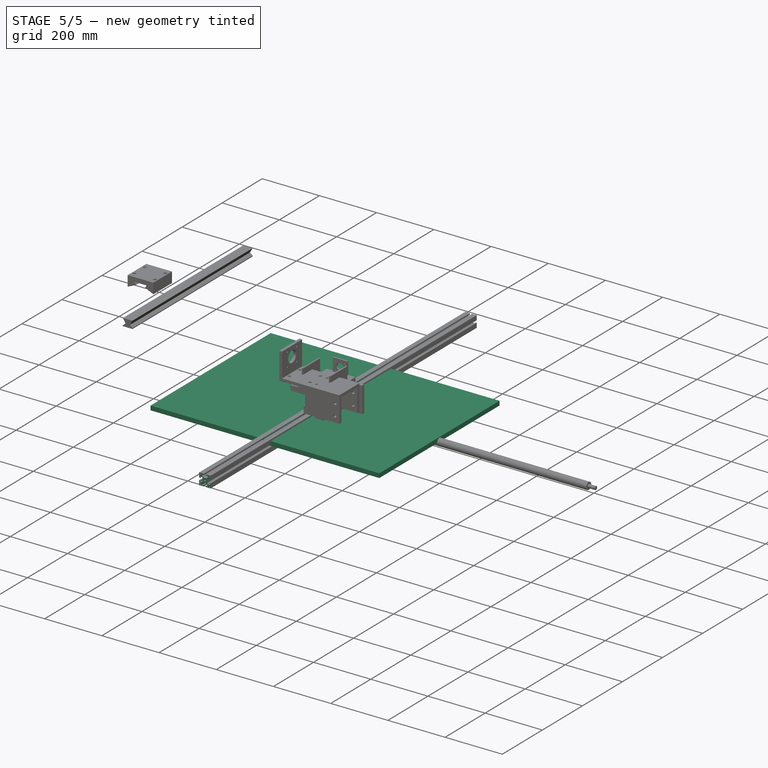
[diagram: stage 5 of 5 — iso view after this stage's code; geometry added in this stage tinted green]
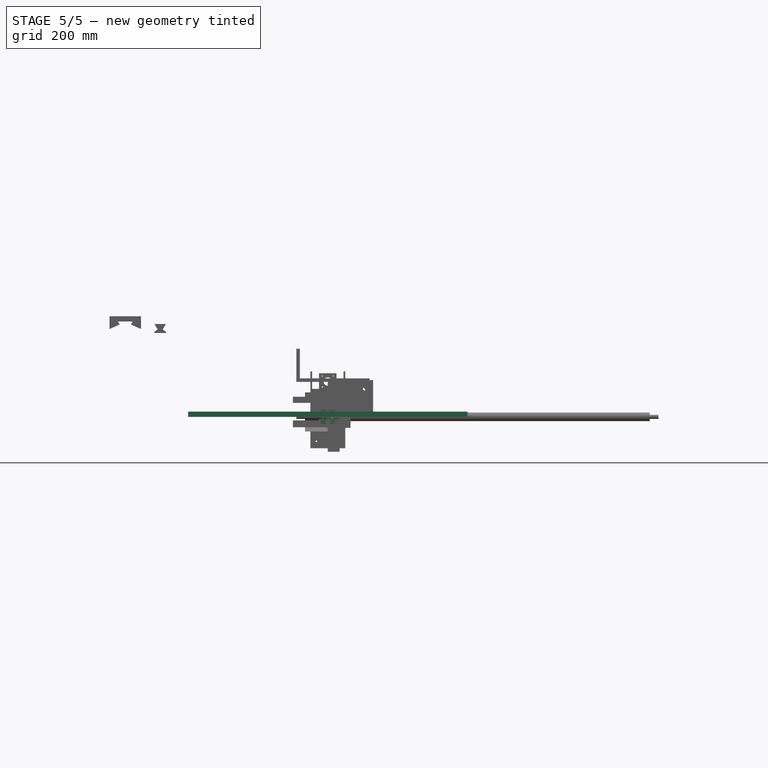
[diagram: stage 5 of 5 — front view after this stage's code; geometry added in this stage tinted green]
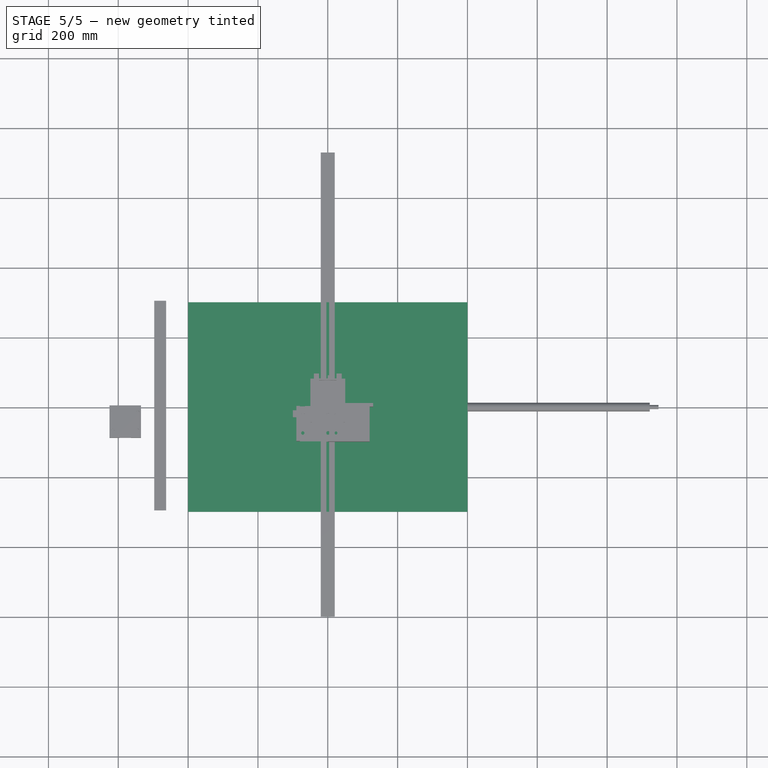
[diagram: stage 5 of 5 — top view after this stage's code; geometry added in this stage tinted green]
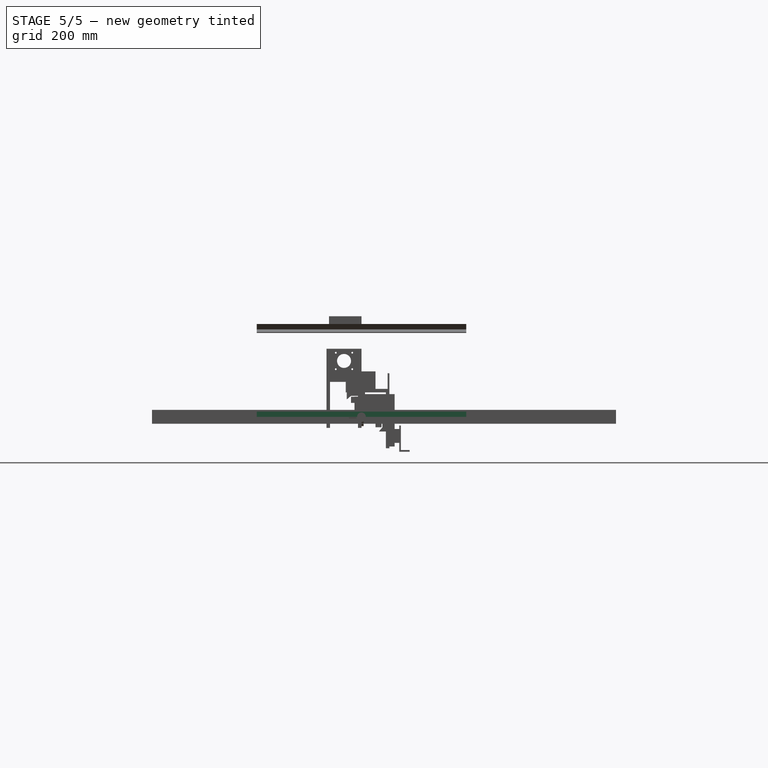
[diagram: stage 5 of 5 — right view after this stage's code; geometry added in this stage tinted green]
FEATURE [Sketcher::SketchObject] Sketch  label="base_plate_sketch"
  FullyConstrained = true
  MapMode = 5
  Support = -> [XY_Plane]
  sketch-geometry (4):
    g0: LineSegment StartX=-400 StartY=300 StartZ=0 EndX=400 EndY=300 EndZ=0
    g1: LineSegment StartX=400 StartY=300 StartZ=0 EndX=400 EndY=-300 EndZ=0
    g2: LineSegment StartX=400 StartY=-300 StartZ=0 EndX=-400 EndY=-300 EndZ=0
    g3: LineSegment StartX=-400 StartY=-300 StartZ=0 EndX=-400 EndY=300 EndZ=0
  constraints (12):
    c: Coincident(g0,g1)
    c: Coincident(g1,g2)
    c: Coincident(g2,g3)
    c: Coincident(g3,g0)
    c: Horizontal(g0)
    c: Horizontal(g2)
    c: Vertical(g1)
    c: Vertical(g3)
    c: Distance(g2) = 800
    c: Distance(g3) = 600
    c: DistanceX(g-1,g1) = 400
    c: DistanceY(g1,g-1) = 300
FEATURE [PartDesign::Pad] Pad  label="base plate"
  Direction = (1,1,1)
  Length = 15
  Length2 = 100
  Profile = -> Sketch
  Type = 0
FEATURE [PartDesign::Body] Body  label="base_plate"
  Group = -> [Sketch,Pad]
  Origin = -> Origin
  Placement = pos=(0,0,80) rot=(0,0,1;0rad)
  Tip = -> Pad
FEATURE [Sketcher::SketchObject] Sketch001
  FullyConstrained = true
  MapMode = 5
  Placement = pos=(0,0,0) rot=(1,0,0;1.5708rad)
  Support = -> [XZ_Plane001]
  sketch-geometry (5):
    g0: Circle CenterX=0 CenterY=0 CenterZ=0 NormalX=0 NormalY=0 NormalZ=1 AngleXU=0 Radius=3.4
    g1: LineSegment StartX=-20 StartY=20 StartZ=0 EndX=20 EndY=20 EndZ=0
    g2: LineSegment StartX=20 StartY=20 StartZ=0 EndX=20 EndY=-20 EndZ=0
    g3: LineSegment StartX=20 StartY=-20 StartZ=0 EndX=-20 EndY=-20 EndZ=0
    g4: LineSegment StartX=-20 StartY=-20 StartZ=0 EndX=-20 EndY=20 EndZ=0
  constraints (14):
    c: Coincident(g0,g-1)
    c: Radius(g0) = 3.4
    c: Coincident(g1,g2)
    c: Coincident(g2,g3)
    c: Coincident(g3,g4)
    c: Coincident(g4,g1)
    c: Horizontal(g1)
    c: Horizontal(g3)
    c: Vertical(g2)
    c: Vertical(g4)
    c: Distance(g2) = 40
    c: Distance(g3) = 40
    c: DistanceX(g0,g2) = 20
    c: DistanceY(g3,g0) = 20
FEATURE [PartDesign::Pad] Pad001  label="base"
  Direction = (1,1,1)
  Length = 300
  Length2 = 300
  Placement = pos=(0,0,0) rot=(1,0,0;1.5708rad)
  Profile = -> Sketch001
  Reversed = true
  Type = 4
FEATURE [Sketcher::SketchObject] Sketch002
  FullyConstrained = true
  MapMode = 5
  Placement = pos=(0,0,0) rot=(1,0,0;1.5708rad)
  Support = -> [XZ_Plane001]
  sketch-geometry (18):
    g0: LineSegment StartX=-4 StartY=20 StartZ=0 EndX=-4 EndY=15.5 EndZ=0
    g1: LineSegment StartX=-4 StartY=15.5 StartZ=0 EndX=-5.8 EndY=15.5 EndZ=0
    g2: LineSegment StartX=-5.8 StartY=15.5 StartZ=0 EndX=-5.8 EndY=18 EndZ=0
    g3: LineSegment StartX=-5.8 StartY=18 StartZ=0 EndX=-10 EndY=17 EndZ=0
    g4: LineSegment StartX=-10 StartY=17 StartZ=0 EndX=-10 EndY=13 EndZ=0
    g5: LineSegment StartX=-10 StartY=13 StartZ=0 EndX=-5.8 EndY=7.75 EndZ=0
    g6: LineSegment StartX=-5.8 StartY=7.75 StartZ=0 EndX=5.8 EndY=7.75 EndZ=0
    g7: LineSegment StartX=5.8 StartY=7.75 StartZ=0 EndX=10 EndY=13 EndZ=0
    g8: LineSegment StartX=10 StartY=13 StartZ=0 EndX=10 EndY=17 EndZ=0
    g9: LineSegment StartX=10 StartY=17 StartZ=0 EndX=5.8 EndY=18 EndZ=0
    g10: LineSegment StartX=5.8 StartY=18 StartZ=0 EndX=5.8 EndY=15.5 EndZ=0
    g11: LineSegment StartX=5.8 StartY=15.5 StartZ=0 EndX=4 EndY=15.5 EndZ=0
    g12: LineSegment StartX=4 StartY=15.5 StartZ=0 EndX=4 EndY=20 EndZ=0
    g13: LineSegment StartX=4 StartY=20 StartZ=0 EndX=-4 EndY=20 EndZ=0
    g14: LineSegment StartX=-14 StartY=18 StartZ=0 EndX=-18 EndY=18 EndZ=0
    g15: LineSegment StartX=-18 StartY=18 StartZ=0 EndX=-18 EndY=14 EndZ=0
    g16: LineSegment StartX=-18 StartY=14 StartZ=0 EndX=-14 EndY=14 EndZ=0
    g17: LineSegment StartX=-14 StartY=14 StartZ=0 EndX=-14 EndY=18 EndZ=0
  constraints (54):
    c: Vertical(g0)
    c: Coincident(g0,g1)
    c: Horizontal(g1)
    c: Coincident(g1,g2)
    c: Vertical(g2)
    c: Coincident(g2,g3)
    c: Coincident(g3,g4)
    c: Vertical(g4)
    c: Coincident(g4,g5)
    c: Coincident(g5,g6)
    c: Horizontal(g6)
    c: Coincident(g6,g7)
    c: Coincident(g7,g8)
    c: Vertical(g8)
    c: Coincident(g8,g9)
    c: Coincident(g9,g10)
    c: Coincident(g10,g11)
    c: Horizontal(g11)
    c: Coincident(g11,g12)
    c: Vertical(g12)
    c: Coincident(g12,g13)
    c: Coincident(g13,g0)
    c: Horizontal(g13)
    c: Vertical(g10)
    c: Distance(g12) = 4.5
    c: Distance(g0) = 4.5
    c: DistanceY(g5,g0) = 7.75
    c: Distance(g13) = 8
    c: Horizontal(g9,g2)
    c: Equal(g11,g1)
    c: Vertical(g10,g6)
    c: Vertical(g1,g5)
    c: Equal(g8,g4)
    c: Equal(g9,g3)
    c: Distance(g11) = 1.8
    c: DistanceY(g3,g2) = 1
    c: DistanceY(g2,g0) = 2
    c: Horizontal(g7,g4)
    c: Distance(g8) = 4
    c: DistanceX(g3,g8) = 20
    c: DistanceY(g-1,g12) = 20
    c: DistanceX(g-1,g12) = 4
    c: Coincident(g14,g15)
    c: Coincident(g15,g16)
    c: Coincident(g16,g17)
    c: Coincident(g17,g14)
    c: Horizontal(g14)
    c: Horizontal(g16)
    c: Vertical(g15)
    c: Vertical(g17)
    c: Equal(g17,g16)
    c: Distance(g17) = 4
    c: DistanceY(g-1,g14) = 18
    c: DistanceX(g14,g-1) = 18
FEATURE [PartDesign::Pocket] Pocket  label="nut"
  BaseFeature = -> Pad001
  Length = 1000
  Length2 = 1000
  Placement = pos=(0,0,0) rot=(1,0,0;1.5708rad)
  Profile = -> Sketch002
  Type = 4
FEATURE [PartDesign::PolarPattern] PolarPattern
  Angle = 360
  Axis = -> Sketch002 [N_Axis]
  Occurrences = 4
  Placement = pos=(0,0,0) rot=(1,0,0;1.5708rad)
FEATURE [PartDesign::MultiTransform] MultiTransform
  BaseFeature = -> Pocket
  Originals = -> [Pocket]
  Placement = pos=(0,0,0) rot=(1,0,0;1.5708rad)
  Transformations = -> [PolarPattern]
FEATURE [PartDesign::Body] Body001  label="alu profile 40x40"
  Group = -> [Sketch001,Pad001,Sketch002,Pocket,MultiTransform,PolarPattern]
  Origin = -> Origin001
  Tip = -> MultiTransform
FEATURE [Sketcher::SketchObject] Sketch003
  FullyConstrained = true
  MapMode = 5
  Placement = pos=(0,0,0) rot=(1,0,0;1.5708rad)
  Support = -> [XZ_Plane002]
  sketch-geometry (18):
    g0: LineSegment StartX=-4 StartY=20 StartZ=0 EndX=-4 EndY=15.5 EndZ=0
    g1: LineSegment StartX=-4 StartY=15.5 StartZ=0 EndX=-5.8 EndY=15.5 EndZ=0
    g2: LineSegment StartX=-5.8 StartY=15.5 StartZ=0 EndX=-5.8 EndY=18 EndZ=0
    g3: LineSegment StartX=-5.8 StartY=18 StartZ=0 EndX=-10 EndY=17 EndZ=0
    g4: LineSegment StartX=-10 StartY=17 StartZ=0 EndX=-10 EndY=13 EndZ=0
    g5: LineSegment StartX=-10 StartY=13 StartZ=0 EndX=-5.8 EndY=7.75 EndZ=0
    g6: LineSegment StartX=-5.8 StartY=7.75 StartZ=0 EndX=5.8 EndY=7.75 EndZ=0
    g7: LineSegment StartX=5.8 StartY=7.75 StartZ=0 EndX=10 EndY=13 EndZ=0
    g8: LineSegment StartX=10 StartY=13 StartZ=0 EndX=10 EndY=17 EndZ=0
    g9: LineSegment StartX=10 StartY=17 StartZ=0 EndX=5.8 EndY=18 EndZ=0
    g10: LineSegment StartX=5.8 StartY=18 StartZ=0 EndX=5.8 EndY=15.5 EndZ=0
    g11: LineSegment StartX=5.8 StartY=15.5 StartZ=0 EndX=4 EndY=15.5 EndZ=0
    g12: LineSegment StartX=4 StartY=15.5 StartZ=0 EndX=4 EndY=20 EndZ=0
    g13: LineSegment StartX=4 StartY=20 StartZ=0 EndX=-4 EndY=20 EndZ=0
    g14: LineSegment StartX=-14 StartY=18 StartZ=0 EndX=-18 EndY=18 EndZ=0
    g15: LineSegment StartX=-18 StartY=18 StartZ=0 EndX=-18 EndY=14 EndZ=0
    g16: LineSegment StartX=-18 StartY=14 StartZ=0 EndX=-14 EndY=14 EndZ=0
    g17: LineSegment StartX=-14 StartY=14 StartZ=0 EndX=-14 EndY=18 EndZ=0
  constraints (54):
    c: Vertical(g0)
    c: Coincident(g0,g1)
    c: Horizontal(g1)
    c: Coincident(g1,g2)
    c: Vertical(g2)
    c: Coincident(g2,g3)
    c: Coincident(g3,g4)
    c: Vertical(g4)
    c: Coincident(g4,g5)
    c: Coincident(g5,g6)
    c: Horizontal(g6)
    c: Coincident(g6,g7)
    c: Coincident(g7,g8)
    c: Vertical(g8)
    c: Coincident(g8,g9)
    c: Coincident(g9,g10)
    c: Coincident(g10,g11)
    c: Horizontal(g11)
    c: Coincident(g11,g12)
    c: Vertical(g12)
    c: Coincident(g12,g13)
    c: Coincident(g13,g0)
    c: Horizontal(g13)
    c: Vertical(g10)
    c: Distance(g12) = 4.5
    c: Distance(g0) = 4.5
    c: DistanceY(g5,g0) = 7.75
    c: Distance(g13) = 8
    c: Horizontal(g9,g2)
    c: Equal(g11,g1)
    c: Vertical(g10,g6)
    c: Vertical(g1,g5)
    c: Equal(g8,g4)
    c: Equal(g9,g3)
    c: Distance(g11) = 1.8
    c: DistanceY(g3,g2) = 1
    c: DistanceY(g2,g0) = 2
    c: Horizontal(g7,g4)
    c: Distance(g8) = 4
    c: DistanceX(g3,g8) = 20
    c: DistanceY(g-1,g12) = 20
    c: DistanceX(g-1,g12) = 4
    c: Coincident(g14,g15)
    c: Coincident(g15,g16)
    c: Coincident(g16,g17)
    c: Coincident(g17,g14)
    c: Horizontal(g14)
    c: Horizontal(g16)
    c: Vertical(g15)
    c: Vertical(g17)
    c: Equal(g17,g16)
    c: Distance(g17) = 4
    c: DistanceY(g-1,g14) = 18
    c: DistanceX(g14,g-1) = 18
FEATURE [PartDesign::PolarPattern] PolarPattern001
  Angle = 360
  Axis = -> Sketch003 [N_Axis]
  Occurrences = 4
  Placement = pos=(0,0,0) rot=(1,0,0;1.5708rad)
FEATURE [Sketcher::SketchObject] Sketch004
  FullyConstrained = true
  MapMode = 5
  Placement = pos=(0,0,0) rot=(1,0,0;1.5708rad)
  Support = -> [XZ_Plane002]
  sketch-geometry (5):
    g0: Circle CenterX=0 CenterY=0 CenterZ=0 NormalX=0 NormalY=0 NormalZ=1 AngleXU=0 Radius=3.4
    g1: LineSegment StartX=-20 StartY=20 StartZ=0 EndX=20 EndY=20 EndZ=0
    g2: LineSegment StartX=20 StartY=20 StartZ=0 EndX=20 EndY=-20 EndZ=0
    g3: LineSegment StartX=20 StartY=-20 StartZ=0 EndX=-20 EndY=-20 EndZ=0
    g4: LineSegment StartX=-20 StartY=-20 StartZ=0 EndX=-20 EndY=20 EndZ=0
  constraints (14):
    c: Coincident(g0,g-1)
    c: Radius(g0) = 3.4
    c: Coincident(g1,g2)
    c: Coincident(g2,g3)
    c: Coincident(g3,g4)
    c: Coincident(g4,g1)
    c: Horizontal(g1)
    c: Horizontal(g3)
    c: Vertical(g2)
    c: Vertical(g4)
    c: Distance(g2) = 40
    c: Distance(g3) = 40
    c: DistanceX(g0,g2) = 20
    c: DistanceY(g3,g0) = 20
FEATURE [PartDesign::Pad] Pad002  label="base001"
  Direction = (1,1,1)
  Length = 600
  Length2 = 500
  Placement = pos=(0,0,0) rot=(1,0,0;1.5708rad)
  Profile = -> Sketch004
  Reversed = true
  Type = 4
FEATURE [PartDesign::Pocket] Pocket001  label="nut001"
  BaseFeature = -> Pad002
  Length = 1000
  Length2 = 1000
  Placement = pos=(0,0,0) rot=(1,0,0;1.5708rad)
  Profile = -> Sketch003
  Type = 4
FEATURE [PartDesign::MultiTransform] MultiTransform001
  BaseFeature = -> Pocket001
  Originals = -> [Pocket001]
  Placement = pos=(0,0,0) rot=(1,0,0;1.5708rad)
  Transformations = -> [PolarPattern001]
FEATURE [PartDesign::Body] Body002  label="base_support1"
  Group = -> [Sketch004,Pad002,Sketch003,Pocket001,MultiTransform001,PolarPattern001]
  Origin = -> Origin002
  Placement = pos=(6.2e-14,280,-20) rot=(0,0,-1;1.5708rad)
  Tip = -> MultiTransform001
FEATURE [Sketcher::SketchObject] Sketch005
  FullyConstrained = true
  MapMode = 5
  Placement = pos=(0,0,0) rot=(1,0,0;1.5708rad)
  Support = -> [XZ_Plane003]
  sketch-geometry (18):
    g0: LineSegment StartX=-4 StartY=20 StartZ=0 EndX=-4 EndY=15.5 EndZ=0
    g1: LineSegment StartX=-4 StartY=15.5 StartZ=0 EndX=-5.8 EndY=15.5 EndZ=0
    g2: LineSegment StartX=-5.8 StartY=15.5 StartZ=0 EndX=-5.8 EndY=18 EndZ=0
    g3: LineSegment StartX=-5.8 StartY=18 StartZ=0 EndX=-10 EndY=17 EndZ=0
    g4: LineSegment StartX=-10 StartY=17 StartZ=0 EndX=-10 EndY=13 EndZ=0
    g5: LineSegment StartX=-10 StartY=13 StartZ=0 EndX=-5.8 EndY=7.75 EndZ=0
    g6: LineSegment StartX=-5.8 StartY=7.75 StartZ=0 EndX=5.8 EndY=7.75 EndZ=0
    g7: LineSegment StartX=5.8 StartY=7.75 StartZ=0 EndX=10 EndY=13 EndZ=0
    g8: LineSegment StartX=10 StartY=13 StartZ=0 EndX=10 EndY=17 EndZ=0
    g9: LineSegment StartX=10 StartY=17 StartZ=0 EndX=5.8 EndY=18 EndZ=0
    g10: LineSegment StartX=5.8 StartY=18 StartZ=0 EndX=5.8 EndY=15.5 EndZ=0
    g11: LineSegment StartX=5.8 StartY=15.5 StartZ=0 EndX=4 EndY=15.5 EndZ=0
    g12: LineSegment StartX=4 StartY=15.5 StartZ=0 EndX=4 EndY=20 EndZ=0
    g13: LineSegment StartX=4 StartY=20 StartZ=0 EndX=-4 EndY=20 EndZ=0
    g14: LineSegment StartX=-14 StartY=18 StartZ=0 EndX=-18 EndY=18 EndZ=0
    g15: LineSegment StartX=-18 StartY=18 StartZ=0 EndX=-18 EndY=14 EndZ=0
    g16: LineSegment StartX=-18 StartY=14 StartZ=0 EndX=-14 EndY=14 EndZ=0
    g17: LineSegment StartX=-14 StartY=14 StartZ=0 EndX=-14 EndY=18 EndZ=0
  constraints (54):
    c: Vertical(g0)
    c: Coincident(g0,g1)
    c: Horizontal(g1)
    c: Coincident(g1,g2)
    c: Vertical(g2)
    c: Coincident(g2,g3)
    c: Coincident(g3,g4)
    c: Vertical(g4)
    c: Coincident(g4,g5)
    c: Coincident(g5,g6)
    c: Horizontal(g6)
    c: Coincident(g6,g7)
    c: Coincident(g7,g8)
    c: Vertical(g8)
    c: Coincident(g8,g9)
    c: Coincident(g9,g10)
    c: Coincident(g10,g11)
    c: Horizontal(g11)
    c: Coincident(g11,g12)
    c: Vertical(g12)
    c: Coincident(g12,g13)
    c: Coincident(g13,g0)
    c: Horizontal(g13)
    c: Vertical(g10)
    c: Distance(g12) = 4.5
    c: Distance(g0) = 4.5
    c: DistanceY(g5,g0) = 7.75
    c: Distance(g13) = 8
    c: Horizontal(g9,g2)
    c: Equal(g11,g1)
    c: Vertical(g10,g6)
    c: Vertical(g1,g5)
    c: Equal(g8,g4)
    c: Equal(g9,g3)
    c: Distance(g11) = 1.8
    c: DistanceY(g3,g2) = 1
    c: DistanceY(g2,g0) = 2
    c: Horizontal(g7,g4)
    c: Distance(g8) = 4
    c: DistanceX(g3,g8) = 20
    c: DistanceY(g-1,g12) = 20
    c: DistanceX(g-1,g12) = 4
    c: Coincident(g14,g15)
    c: Coincident(g15,g16)
    c: Coincident(g16,g17)
    c: Coincident(g17,g14)
    c: Horizontal(g14)
    c: Horizontal(g16)
    c: Vertical(g15)
    c: Vertical(g17)
    c: Equal(g17,g16)
    c: Distance(g17) = 4
    c: DistanceY(g-1,g14) = 18
    c: DistanceX(g14,g-1) = 18
FEATURE [PartDesign::PolarPattern] PolarPattern002
  Angle = 360
  Axis = -> Sketch005 [N_Axis]
  Occurrences = 4
  Placement = pos=(0,0,0) rot=(1,0,0;1.5708rad)
FEATURE [Sketcher::SketchObject] Sketch006
  FullyConstrained = true
  MapMode = 5
  Placement = pos=(0,0,0) rot=(1,0,0;1.5708rad)
  Support = -> [XZ_Plane003]
  sketch-geometry (5):
    g0: Circle CenterX=0 CenterY=0 CenterZ=0 NormalX=0 NormalY=0 NormalZ=1 AngleXU=0 Radius=3.4
    g1: LineSegment StartX=-20 StartY=20 StartZ=0 EndX=20 EndY=20 EndZ=0
    g2: LineSegment StartX=20 StartY=20 StartZ=0 EndX=20 EndY=-20 EndZ=0
    g3: LineSegment StartX=20 StartY=-20 StartZ=0 EndX=-20 EndY=-20 EndZ=0
    g4: LineSegment StartX=-20 StartY=-20 StartZ=0 EndX=-20 EndY=20 EndZ=0
  constraints (14):
    c: Coincident(g0,g-1)
    c: Radius(g0) = 3.4
    c: Coincident(g1,g2)
    c: Coincident(g2,g3)
    c: Coincident(g3,g4)
    c: Coincident(g4,g1)
    c: Horizontal(g1)
    c: Horizontal(g3)
    c: Vertical(g2)
    c: Vertical(g4)
    c: Distance(g2) = 40
    c: Distance(g3) = 40
    c: DistanceX(g0,g2) = 20
    c: DistanceY(g3,g0) = 20
FEATURE [PartDesign::Pad] Pad003  label="base002"
  Direction = (1,1,1)
  Length = 600
  Length2 = 500
  Placement = pos=(0,0,0) rot=(1,0,0;1.5708rad)
  Profile = -> Sketch006
  Reversed = true
  Type = 4
FEATURE [PartDesign::Pocket] Pocket002  label="nut002"
  BaseFeature = -> Pad003
  Length = 1000
  Length2 = 1000
  Placement = pos=(0,0,0) rot=(1,0,0;1.5708rad)
  Profile = -> Sketch005
  Type = 4
FEATURE [PartDesign::MultiTransform] MultiTransform002
  BaseFeature = -> Pocket002
  Originals = -> [Pocket002]
  Placement = pos=(0,0,0) rot=(1,0,0;1.5708rad)
  Transformations = -> [PolarPattern002]
FEATURE [PartDesign::Body] Body003  label="base_support2"
  Group = -> [Sketch006,Pad003,Sketch005,Pocket002,MultiTransform002,PolarPattern002]
  Origin = -> Origin003
  Placement = pos=(6.2e-14,-280,-20) rot=(0,0,-1;1.5708rad)
  Tip = -> MultiTransform002
FEATURE [Sketcher::SketchObject] Sketch007
  FullyConstrained = true
  MapMode = 5
  Placement = pos=(0,0,0) rot=(1,0,0;1.5708rad)
  Support = -> [XZ_Plane004]
  sketch-geometry (18):
    g0: LineSegment StartX=-4 StartY=20 StartZ=0 EndX=-4 EndY=15.5 EndZ=0
    g1: LineSegment StartX=-4 StartY=15.5 StartZ=0 EndX=-5.8 EndY=15.5 EndZ=0
    g2: LineSegment StartX=-5.8 StartY=15.5 StartZ=0 EndX=-5.8 EndY=18 EndZ=0
    g3: LineSegment StartX=-5.8 StartY=18 StartZ=0 EndX=-10 EndY=17 EndZ=0
    g4: LineSegment StartX=-10 StartY=17 StartZ=0 EndX=-10 EndY=13 EndZ=0
    g5: LineSegment StartX=-10 StartY=13 StartZ=0 EndX=-5.8 EndY=7.75 EndZ=0
    g6: LineSegment StartX=-5.8 StartY=7.75 StartZ=0 EndX=5.8 EndY=7.75 EndZ=0
    g7: LineSegment StartX=5.8 StartY=7.75 StartZ=0 EndX=10 EndY=13 EndZ=0
    g8: LineSegment StartX=10 StartY=13 StartZ=0 EndX=10 EndY=17 EndZ=0
    g9: LineSegment StartX=10 StartY=17 StartZ=0 EndX=5.8 EndY=18 EndZ=0
    g10: LineSegment StartX=5.8 StartY=18 StartZ=0 EndX=5.8 EndY=15.5 EndZ=0
    g11: LineSegment StartX=5.8 StartY=15.5 StartZ=0 EndX=4 EndY=15.5 EndZ=0
    g12: LineSegment StartX=4 StartY=15.5 StartZ=0 EndX=4 EndY=20 EndZ=0
    g13: LineSegment StartX=4 StartY=20 StartZ=0 EndX=-4 EndY=20 EndZ=0
    g14: LineSegment StartX=-14 StartY=18 StartZ=0 EndX=-18 EndY=18 EndZ=0
    g15: LineSegment StartX=-18 StartY=18 StartZ=0 EndX=-18 EndY=14 EndZ=0
    g16: LineSegment StartX=-18 StartY=14 StartZ=0 EndX=-14 EndY=14 EndZ=0
    g17: LineSegment StartX=-14 StartY=14 StartZ=0 EndX=-14 EndY=18 EndZ=0
  constraints (54):
    c: Vertical(g0)
    c: Coincident(g0,g1)
    c: Horizontal(g1)
    c: Coincident(g1,g2)
    c: Vertical(g2)
    c: Coincident(g2,g3)
    c: Coincident(g3,g4)
    c: Vertical(g4)
    c: Coincident(g4,g5)
    c: Coincident(g5,g6)
    c: Horizontal(g6)
    c: Coincident(g6,g7)
    c: Coincident(g7,g8)
    c: Vertical(g8)
    c: Coincident(g8,g9)
    c: Coincident(g9,g10)
    c: Coincident(g10,g11)
    c: Horizontal(g11)
    c: Coincident(g11,g12)
    c: Vertical(g12)
    c: Coincident(g12,g13)
    c: Coincident(g13,g0)
    c: Horizontal(g13)
    c: Vertical(g10)
    c: Distance(g12) = 4.5
    c: Distance(g0) = 4.5
    c: DistanceY(g5,g0) = 7.75
    c: Distance(g13) = 8
    c: Horizontal(g9,g2)
    c: Equal(g11,g1)
    c: Vertical(g10,g6)
    c: Vertical(g1,g5)
    c: Equal(g8,g4)
    c: Equal(g9,g3)
    c: Distance(g11) = 1.8
    c: DistanceY(g3,g2) = 1
    c: DistanceY(g2,g0) = 2
    c: Horizontal(g7,g4)
    c: Distance(g8) = 4
    c: DistanceX(g3,g8) = 20
    c: DistanceY(g-1,g12) = 20
    c: DistanceX(g-1,g12) = 4
    c: Coincident(g14,g15)
    c: Coincident(g15,g16)
    c: Coincident(g16,g17)
    c: Coincident(g17,g14)
    c: Horizontal(g14)
    c: Horizontal(g16)
    c: Vertical(g15)
    c: Vertical(g17)
    c: Equal(g17,g16)
    c: Distance(g17) = 4
    c: DistanceY(g-1,g14) = 18
    c: DistanceX(g14,g-1) = 18
FEATURE [PartDesign::PolarPattern] PolarPattern003
  Angle = 360
  Axis = -> Sketch007 [N_Axis]
  Occurrences = 4
  Placement = pos=(0,0,0) rot=(1,0,0;1.5708rad)
FEATURE [Sketcher::SketchObject] Sketch008
  FullyConstrained = true
  MapMode = 5
  Placement = pos=(0,0,0) rot=(1,0,0;1.5708rad)
  Support = -> [XZ_Plane004]
  sketch-geometry (5):
    g0: Circle CenterX=0 CenterY=0 CenterZ=0 NormalX=0 NormalY=0 NormalZ=1 AngleXU=0 Radius=3.4
    g1: LineSegment StartX=-20 StartY=20 StartZ=0 EndX=20 EndY=20 EndZ=0
    g2: LineSegment StartX=20 StartY=20 StartZ=0 EndX=20 EndY=-20 EndZ=0
    g3: LineSegment StartX=20 StartY=-20 StartZ=0 EndX=-20 EndY=-20 EndZ=0
    g4: LineSegment StartX=-20 StartY=-20 StartZ=0 EndX=-20 EndY=20 EndZ=0
  constraints (14):
    c: Coincident(g0,g-1)
    c: Radius(g0) = 3.4
    c: Coincident(g1,g2)
    c: Coincident(g2,g3)
    c: Coincident(g3,g4)
    c: Coincident(g4,g1)
    c: Horizontal(g1)
    c: Horizontal(g3)
    c: Vertical(g2)
    c: Vertical(g4)
    c: Distance(g2) = 40
    c: Distance(g3) = 40
    c: DistanceX(g0,g2) = 20
    c: DistanceY(g3,g0) = 20
FEATURE [PartDesign::Pad] Pad004  label="base003"
  Direction = (1,1,1)
  Length = 260
  Length2 = 260
  Placement = pos=(0,0,0) rot=(1,0,0;1.5708rad)
  Profile = -> Sketch008
  Reversed = true
  Type = 4
FEATURE [PartDesign::Pocket] Pocket003  label="nut003"
  BaseFeature = -> Pad004
  Length = 1000
  Length2 = 1000
  Placement = pos=(0,0,0) rot=(1,0,0;1.5708rad)
  Profile = -> Sketch007
  Type = 4
FEATURE [PartDesign::MultiTransform] MultiTransform003
  BaseFeature = -> Pocket003
  Originals = -> [Pocket003]
  Placement = pos=(0,0,0) rot=(1,0,0;1.5708rad)
  Transformations = -> [PolarPattern003]
FEATURE [PartDesign::Body] Body004  label="base_support3"
  Group = -> [Sketch008,Pad004,Sketch007,Pocket003,MultiTransform003,PolarPattern003]
  Origin = -> Origin004
  Placement = pos=(-580,0,-20) rot=(0,0,1;0rad)
  Tip = -> MultiTransform003
FEATURE [Sketcher::SketchObject] Sketch009
  FullyConstrained = true
  MapMode = 5
  Placement = pos=(0,0,0) rot=(1,0,0;1.5708rad)
  Support = -> [XZ_Plane005]
  sketch-geometry (18):
    g0: LineSegment StartX=-4 StartY=20 StartZ=0 EndX=-4 EndY=15.5 EndZ=0
    g1: LineSegment StartX=-4 StartY=15.5 StartZ=0 EndX=-5.8 EndY=15.5 EndZ=0
    g2: LineSegment StartX=-5.8 StartY=15.5 StartZ=0 EndX=-5.8 EndY=18 EndZ=0
    g3: LineSegment StartX=-5.8 StartY=18 StartZ=0 EndX=-10 EndY=17 EndZ=0
    g4: LineSegment StartX=-10 StartY=17 StartZ=0 EndX=-10 EndY=13 EndZ=0
    g5: LineSegment StartX=-10 StartY=13 StartZ=0 EndX=-5.8 EndY=7.75 EndZ=0
    g6: LineSegment StartX=-5.8 StartY=7.75 StartZ=0 EndX=5.8 EndY=7.75 EndZ=0
    g7: LineSegment StartX=5.8 StartY=7.75 StartZ=0 EndX=10 EndY=13 EndZ=0
    g8: LineSegment StartX=10 StartY=13 StartZ=0 EndX=10 EndY=17 EndZ=0
    g9: LineSegment StartX=10 StartY=17 StartZ=0 EndX=5.8 EndY=18 EndZ=0
    g10: LineSegment StartX=5.8 StartY=18 StartZ=0 EndX=5.8 EndY=15.5 EndZ=0
    g11: LineSegment StartX=5.8 StartY=15.5 StartZ=0 EndX=4 EndY=15.5 EndZ=0
    g12: LineSegment StartX=4 StartY=15.5 StartZ=0 EndX=4 EndY=20 EndZ=0
    g13: LineSegment StartX=4 StartY=20 StartZ=0 EndX=-4 EndY=20 EndZ=0
    g14: LineSegment StartX=-14 StartY=18 StartZ=0 EndX=-18 EndY=18 EndZ=0
    g15: LineSegment StartX=-18 StartY=18 StartZ=0 EndX=-18 EndY=14 EndZ=0
    g16: LineSegment StartX=-18 StartY=14 StartZ=0 EndX=-14 EndY=14 EndZ=0
    g17: LineSegment StartX=-14 StartY=14 StartZ=0 EndX=-14 EndY=18 EndZ=0
  constraints (54):
    c: Vertical(g0)
    c: Coincident(g0,g1)
    c: Horizontal(g1)
    c: Coincident(g1,g2)
    c: Vertical(g2)
    c: Coincident(g2,g3)
    c: Coincident(g3,g4)
    c: Vertical(g4)
    c: Coincident(g4,g5)
    c: Coincident(g5,g6)
    c: Horizontal(g6)
    c: Coincident(g6,g7)
    c: Coincident(g7,g8)
    c: Vertical(g8)
    c: Coincident(g8,g9)
    c: Coincident(g9,g10)
    c: Coincident(g10,g11)
    c: Horizontal(g11)
    c: Coincident(g11,g12)
    c: Vertical(g12)
    c: Coincident(g12,g13)
    c: Coincident(g13,g0)
    c: Horizontal(g13)
    c: Vertical(g10)
    c: Distance(g12) = 4.5
    c: Distance(g0) = 4.5
    c: DistanceY(g5,g0) = 7.75
    c: Distance(g13) = 8
    c: Horizontal(g9,g2)
    c: Equal(g11,g1)
    c: Vertical(g10,g6)
    c: Vertical(g1,g5)
    c: Equal(g8,g4)
    c: Equal(g9,g3)
    c: Distance(g11) = 1.8
    c: DistanceY(g3,g2) = 1
    c: DistanceY(g2,g0) = 2
    c: Horizontal(g7,g4)
    c: Distance(g8) = 4
    c: DistanceX(g3,g8) = 20
    c: DistanceY(g-1,g12) = 20
    c: DistanceX(g-1,g12) = 4
    c: Coincident(g14,g15)
    c: Coincident(g15,g16)
    c: Coincident(g16,g17)
    c: Coincident(g17,g14)
    c: Horizontal(g14)
    c: Horizontal(g16)
    c: Vertical(g15)
    c: Vertical(g17)
    c: Equal(g17,g16)
    c: Distance(g17) = 4
    c: DistanceY(g-1,g14) = 18
    c: DistanceX(g14,g-1) = 18
FEATURE [PartDesign::PolarPattern] PolarPattern004
  Angle = 360
  Axis = -> Sketch009 [N_Axis]
  Occurrences = 4
  Placement = pos=(0,0,0) rot=(1,0,0;1.5708rad)
FEATURE [Sketcher::SketchObject] Sketch010
  FullyConstrained = true
  MapMode = 5
  Placement = pos=(0,0,0) rot=(1,0,0;1.5708rad)
  Support = -> [XZ_Plane005]
  sketch-geometry (5):
    g0: Circle CenterX=0 CenterY=0 CenterZ=0 NormalX=0 NormalY=0 NormalZ=1 AngleXU=0 Radius=3.4
    g1: LineSegment StartX=-20 StartY=20 StartZ=0 EndX=20 EndY=20 EndZ=0
    g2: LineSegment StartX=20 StartY=20 StartZ=0 EndX=20 EndY=-20 EndZ=0
    g3: LineSegment StartX=20 StartY=-20 StartZ=0 EndX=-20 EndY=-20 EndZ=0
    g4: LineSegment StartX=-20 StartY=-20 StartZ=0 EndX=-20 EndY=20 EndZ=0
  constraints (14):
    c: Coincident(g0,g-1)
    c: Radius(g0) = 3.4
    c: Coincident(g1,g2)
    c: Coincident(g2,g3)
    c: Coincident(g3,g4)
    c: Coincident(g4,g1)
    c: Horizontal(g1)
    c: Horizontal(g3)
    c: Vertical(g2)
    c: Vertical(g4)
    c: Distance(g2) = 40
    c: Distance(g3) = 40
    c: DistanceX(g0,g2) = 20
    c: DistanceY(g3,g0) = 20
FEATURE [PartDesign::Pad] Pad005  label="base004"
  Direction = (1,1,1)
  Length = 260
  Length2 = 260
  Placement = pos=(0,0,0) rot=(1,0,0;1.5708rad)
  Profile = -> Sketch010
  Reversed = true
  Type = 4
FEATURE [PartDesign::Pocket] Pocket004  label="nut004"
  BaseFeature = -> Pad005
  Length = 1000
  Length2 = 1000
  Placement = pos=(0,0,0) rot=(1,0,0;1.5708rad)
  Profile = -> Sketch009
  Type = 4
FEATURE [PartDesign::MultiTransform] MultiTransform004
  BaseFeature = -> Pocket004
  Originals = -> [Pocket004]
  Placement = pos=(0,0,0) rot=(1,0,0;1.5708rad)
  Transformations = -> [PolarPattern004]
FEATURE [PartDesign::Body] Body005  label="base_support4"
  Group = -> [Sketch010,Pad005,Sketch009,Pocket004,MultiTransform004,PolarPattern004]
  Origin = -> Origin005
  Placement = pos=(480,0,-20) rot=(0,0,1;0rad)
  Tip = -> MultiTransform004
FEATURE [Sketcher::SketchObject] Sketch011
  FullyConstrained = true
  MapMode = 5
  Placement = pos=(0,0,0) rot=(1,0,0;1.5708rad)
  Support = -> [XZ_Plane006]
  sketch-geometry (18):
    g0: LineSegment StartX=-4 StartY=20 StartZ=0 EndX=-4 EndY=15.5 EndZ=0
    g1: LineSegment StartX=-4 StartY=15.5 StartZ=0 EndX=-5.8 EndY=15.5 EndZ=0
    g2: LineSegment StartX=-5.8 StartY=15.5 StartZ=0 EndX=-5.8 EndY=18 EndZ=0
    g3: LineSegment StartX=-5.8 StartY=18 StartZ=0 EndX=-10 EndY=17 EndZ=0
    g4: LineSegment StartX=-10 StartY=17 StartZ=0 EndX=-10 EndY=13 EndZ=0
    g5: LineSegment StartX=-10 StartY=13 StartZ=0 EndX=-5.8 EndY=7.75 EndZ=0
    g6: LineSegment StartX=-5.8 StartY=7.75 StartZ=0 EndX=5.8 EndY=7.75 EndZ=0
    g7: LineSegment StartX=5.8 StartY=7.75 StartZ=0 EndX=10 EndY=13 EndZ=0
    g8: LineSegment StartX=10 StartY=13 StartZ=0 EndX=10 EndY=17 EndZ=0
    g9: LineSegment StartX=10 StartY=17 StartZ=0 EndX=5.8 EndY=18 EndZ=0
    g10: LineSegment StartX=5.8 StartY=18 StartZ=0 EndX=5.8 EndY=15.5 EndZ=0
    g11: LineSegment StartX=5.8 StartY=15.5 StartZ=0 EndX=4 EndY=15.5 EndZ=0
    g12: LineSegment StartX=4 StartY=15.5 StartZ=0 EndX=4 EndY=20 EndZ=0
    g13: LineSegment StartX=4 StartY=20 StartZ=0 EndX=-4 EndY=20 EndZ=0
    g14: LineSegment StartX=-14 StartY=18 StartZ=0 EndX=-18 EndY=18 EndZ=0
    g15: LineSegment StartX=-18 StartY=18 StartZ=0 EndX=-18 EndY=14 EndZ=0
    g16: LineSegment StartX=-18 StartY=14 StartZ=0 EndX=-14 EndY=14 EndZ=0
    g17: LineSegment StartX=-14 StartY=14 StartZ=0 EndX=-14 EndY=18 EndZ=0
  constraints (54):
    c: Vertical(g0)
    c: Coincident(g0,g1)
    c: Horizontal(g1)
    c: Coincident(g1,g2)
    c: Vertical(g2)
    c: Coincident(g2,g3)
    c: Coincident(g3,g4)
    c: Vertical(g4)
    c: Coincident(g4,g5)
    c: Coincident(g5,g6)
    c: Horizontal(g6)
    c: Coincident(g6,g7)
    c: Coincident(g7,g8)
    c: Vertical(g8)
    c: Coincident(g8,g9)
    c: Coincident(g9,g10)
    c: Coincident(g10,g11)
    c: Horizontal(g11)
    c: Coincident(g11,g12)
    c: Vertical(g12)
    c: Coincident(g12,g13)
    c: Coincident(g13,g0)
    c: Horizontal(g13)
    c: Vertical(g10)
    c: Distance(g12) = 4.5
    c: Distance(g0) = 4.5
    c: DistanceY(g5,g0) = 7.75
    c: Distance(g13) = 8
    c: Horizontal(g9,g2)
    c: Equal(g11,g1)
    c: Vertical(g10,g6)
    c: Vertical(g1,g5)
    c: Equal(g8,g4)
    c: Equal(g9,g3)
    c: Distance(g11) = 1.8
    c: DistanceY(g3,g2) = 1
    c: DistanceY(g2,g0) = 2
    c: Horizontal(g7,g4)
    c: Distance(g8) = 4
    c: DistanceX(g3,g8) = 20
    c: DistanceY(g-1,g12) = 20
    c: DistanceX(g-1,g12) = 4
    c: Coincident(g14,g15)
    c: Coincident(g15,g16)
    c: Coincident(g16,g17)
    c: Coincident(g17,g14)
    c: Horizontal(g14)
    c: Horizontal(g16)
    c: Vertical(g15)
    c: Vertical(g17)
    c: Equal(g17,g16)
    c: Distance(g17) = 4
    c: DistanceY(g-1,g14) = 18
    c: DistanceX(g14,g-1) = 18
FEATURE [PartDesign::PolarPattern] PolarPattern005
  Angle = 360
  Axis = -> Sketch011 [N_Axis]
  Occurrences = 4
  Placement = pos=(0,0,0) rot=(1,0,0;1.5708rad)
FEATURE [Sketcher::SketchObject] Sketch012
  FullyConstrained = true
  MapMode = 5
  Placement = pos=(0,0,0) rot=(1,0,0;1.5708rad)
  Support = -> [XZ_Plane006]
  sketch-geometry (5):
    g0: Circle CenterX=0 CenterY=0 CenterZ=0 NormalX=0 NormalY=0 NormalZ=1 AngleXU=0 Radius=3.4
    g1: LineSegment StartX=-20 StartY=20 StartZ=0 EndX=20 EndY=20 EndZ=0
    g2: LineSegment StartX=20 StartY=20 StartZ=0 EndX=20 EndY=-20 EndZ=0
    g3: LineSegment StartX=20 StartY=-20 StartZ=0 EndX=-20 EndY=-20 EndZ=0
    g4: LineSegment StartX=-20 StartY=-20 StartZ=0 EndX=-20 EndY=20 EndZ=0
  constraints (14):
    c: Coincident(g0,g-1)
    c: Radius(g0) = 3.4
    c: Coincident(g1,g2)
    c: Coincident(g2,g3)
    c: Coincident(g3,g4)
    c: Coincident(g4,g1)
    c: Horizontal(g1)
    c: Horizontal(g3)
    c: Vertical(g2)
    c: Vertical(g4)
    c: Distance(g2) = 40
    c: Distance(g3) = 40
    c: DistanceX(g0,g2) = 20
    c: DistanceY(g3,g0) = 20
FEATURE [PartDesign::Pad] Pad006  label="base005"
  Direction = (1,1,1)
  Length = 200
  Length2 = 0
  Placement = pos=(0,0,0) rot=(1,0,0;1.5708rad)
  Profile = -> Sketch012
  Reversed = true
  Type = 4
FEATURE [PartDesign::Pocket] Pocket005  label="nut005"
  BaseFeature = -> Pad006
  Length = 1000
  Length2 = 1000
  Placement = pos=(0,0,0) rot=(1,0,0;1.5708rad)
  Profile = -> Sketch011
  Type = 4
FEATURE [PartDesign::MultiTransform] MultiTransform005
  BaseFeature = -> Pocket005
  Originals = -> [Pocket005]
  Placement = pos=(0,0,0) rot=(1,0,0;1.5708rad)
  Transformations = -> [PolarPattern005]
FEATURE [PartDesign::Body] Body006  label="top_pillar1"
  Group = -> [Sketch012,Pad006,Sketch011,Pocket005,MultiTransform005,PolarPattern005]
  Origin = -> Origin006
  Placement = pos=(-580,-280,200) rot=(1,0,0;1.5708rad)
  Tip = -> MultiTransform005
FEATURE [Sketcher::SketchObject] Sketch013
  FullyConstrained = true
  MapMode = 5
  Placement = pos=(0,0,0) rot=(1,0,0;1.5708rad)
  Support = -> [XZ_Plane007]
  sketch-geometry (18):
    g0: LineSegment StartX=-4 StartY=20 StartZ=0 EndX=-4 EndY=15.5 EndZ=0
    g1: LineSegment StartX=-4 StartY=15.5 StartZ=0 EndX=-5.8 EndY=15.5 EndZ=0
    g2: LineSegment StartX=-5.8 StartY=15.5 StartZ=0 EndX=-5.8 EndY=18 EndZ=0
    g3: LineSegment StartX=-5.8 StartY=18 StartZ=0 EndX=-10 EndY=17 EndZ=0
    g4: LineSegment StartX=-10 StartY=17 StartZ=0 EndX=-10 EndY=13 EndZ=0
    g5: LineSegment StartX=-10 StartY=13 StartZ=0 EndX=-5.8 EndY=7.75 EndZ=0
    g6: LineSegment StartX=-5.8 StartY=7.75 StartZ=0 EndX=5.8 EndY=7.75 EndZ=0
    g7: LineSegment StartX=5.8 StartY=7.75 StartZ=0 EndX=10 EndY=13 EndZ=0
    g8: LineSegment StartX=10 StartY=13 StartZ=0 EndX=10 EndY=17 EndZ=0
    g9: LineSegment StartX=10 StartY=17 StartZ=0 EndX=5.8 EndY=18 EndZ=0
    g10: LineSegment StartX=5.8 StartY=18 StartZ=0 EndX=5.8 EndY=15.5 EndZ=0
    g11: LineSegment StartX=5.8 StartY=15.5 StartZ=0 EndX=4 EndY=15.5 EndZ=0
    g12: LineSegment StartX=4 StartY=15.5 StartZ=0 EndX=4 EndY=20 EndZ=0
    g13: LineSegment StartX=4 StartY=20 StartZ=0 EndX=-4 EndY=20 EndZ=0
    g14: LineSegment StartX=-14 StartY=18 StartZ=0 EndX=-18 EndY=18 EndZ=0
    g15: LineSegment StartX=-18 StartY=18 StartZ=0 EndX=-18 EndY=14 EndZ=0
    g16: LineSegment StartX=-18 StartY=14 StartZ=0 EndX=-14 EndY=14 EndZ=0
    g17: LineSegment StartX=-14 StartY=14 StartZ=0 EndX=-14 EndY=18 EndZ=0
  constraints (54):
    c: Vertical(g0)
    c: Coincident(g0,g1)
    c: Horizontal(g1)
    c: Coincident(g1,g2)
    c: Vertical(g2)
    c: Coincident(g2,g3)
    c: Coincident(g3,g4)
    c: Vertical(g4)
    c: Coincident(g4,g5)
    c: Coincident(g5,g6)
    c: Horizontal(g6)
    c: Coincident(g6,g7)
    c: Coincident(g7,g8)
    c: Vertical(g8)
    c: Coincident(g8,g9)
    c: Coincident(g9,g10)
    c: Coincident(g10,g11)
    c: Horizontal(g11)
    c: Coincident(g11,g12)
    c: Vertical(g12)
    c: Coincident(g12,g13)
    c: Coincident(g13,g0)
    c: Horizontal(g13)
    c: Vertical(g10)
    c: Distance(g12) = 4.5
    c: Distance(g0) = 4.5
    c: DistanceY(g5,g0) = 7.75
    c: Distance(g13) = 8
    c: Horizontal(g9,g2)
    c: Equal(g11,g1)
    c: Vertical(g10,g6)
    c: Vertical(g1,g5)
    c: Equal(g8,g4)
    c: Equal(g9,g3)
    c: Distance(g11) = 1.8
    c: DistanceY(g3,g2) = 1
    c: DistanceY(g2,g0) = 2
    c: Horizontal(g7,g4)
    c: Distance(g8) = 4
    c: DistanceX(g3,g8) = 20
    c: DistanceY(g-1,g12) = 20
    c: DistanceX(g-1,g12) = 4
    c: Coincident(g14,g15)
    c: Coincident(g15,g16)
    c: Coincident(g16,g17)
    c: Coincident(g17,g14)
    c: Horizontal(g14)
    c: Horizontal(g16)
    c: Vertical(g15)
    c: Vertical(g17)
    c: Equal(g17,g16)
    c: Distance(g17) = 4
    c: DistanceY(g-1,g14) = 18
    c: DistanceX(g14,g-1) = 18
FEATURE [PartDesign::PolarPattern] PolarPattern006
  Angle = 360
  Axis = -> Sketch013 [N_Axis]
  Occurrences = 4
  Placement = pos=(0,0,0) rot=(1,0,0;1.5708rad)
FEATURE [Sketcher::SketchObject] Sketch014
  FullyConstrained = true
  MapMode = 5
  Placement = pos=(0,0,0) rot=(1,0,0;1.5708rad)
  Support = -> [XZ_Plane007]
  sketch-geometry (5):
    g0: Circle CenterX=0 CenterY=0 CenterZ=0 NormalX=0 NormalY=0 NormalZ=1 AngleXU=0 Radius=3.4
    g1: LineSegment StartX=-20 StartY=20 StartZ=0 EndX=20 EndY=20 EndZ=0
    g2: LineSegment StartX=20 StartY=20 StartZ=0 EndX=20 EndY=-20 EndZ=0
    g3: LineSegment StartX=20 StartY=-20 StartZ=0 EndX=-20 EndY=-20 EndZ=0
    g4: LineSegment StartX=-20 StartY=-20 StartZ=0 EndX=-20 EndY=20 EndZ=0
  constraints (14):
    c: Coincident(g0,g-1)
    c: Radius(g0) = 3.4
    c: Coincident(g1,g2)
    c: Coincident(g2,g3)
    c: Coincident(g3,g4)
    c: Coincident(g4,g1)
    c: Horizontal(g1)
    c: Horizontal(g3)
    c: Vertical(g2)
    c: Vertical(g4)
    c: Distance(g2) = 40
    c: Distance(g3) = 40
    c: DistanceX(g0,g2) = 20
    c: DistanceY(g3,g0) = 20
FEATURE [PartDesign::Pad] Pad007  label="base006"
  Direction = (1,1,1)
  Length = 200
  Length2 = 0
  Placement = pos=(0,0,0) rot=(1,0,0;1.5708rad)
  Profile = -> Sketch014
  Reversed = true
  Type = 4
FEATURE [PartDesign::Pocket] Pocket006  label="nut006"
  BaseFeature = -> Pad007
  Length = 1000
  Length2 = 1000
  Placement = pos=(0,0,0) rot=(1,0,0;1.5708rad)
  Profile = -> Sketch013
  Type = 4
FEATURE [PartDesign::MultiTransform] MultiTransform006
  BaseFeature = -> Pocket006
  Originals = -> [Pocket006]
  Placement = pos=(0,0,0) rot=(1,0,0;1.5708rad)
  Transformations = -> [PolarPattern006]
FEATURE [PartDesign::Pocket] Pocket007  label="nut007"
  BaseFeature = -> Pad008
  Length = 1000
  Length2 = 1000
  Placement = pos=(0,0,0) rot=(1,0,0;1.5708rad)
  Profile = -> Sketch015
  Type = 4
FEATURE [PartDesign::MultiTransform] MultiTransform007
  BaseFeature = -> Pocket007
  Originals = -> [Pocket007]
  Placement = pos=(0,0,0) rot=(1,0,0;1.5708rad)
  Transformations = -> [PolarPattern007]
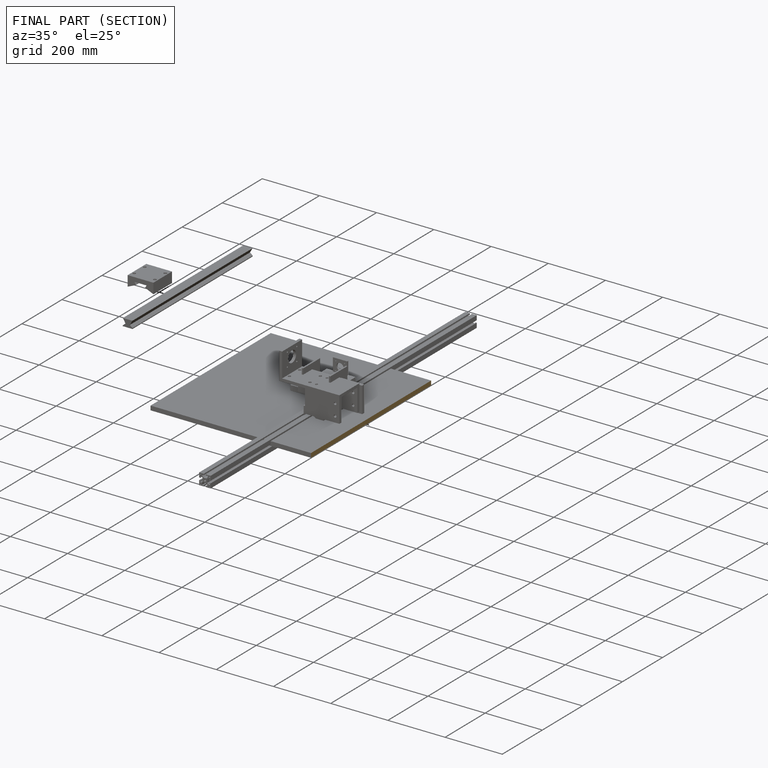
[diagram: finished part — half-section view (interior)]
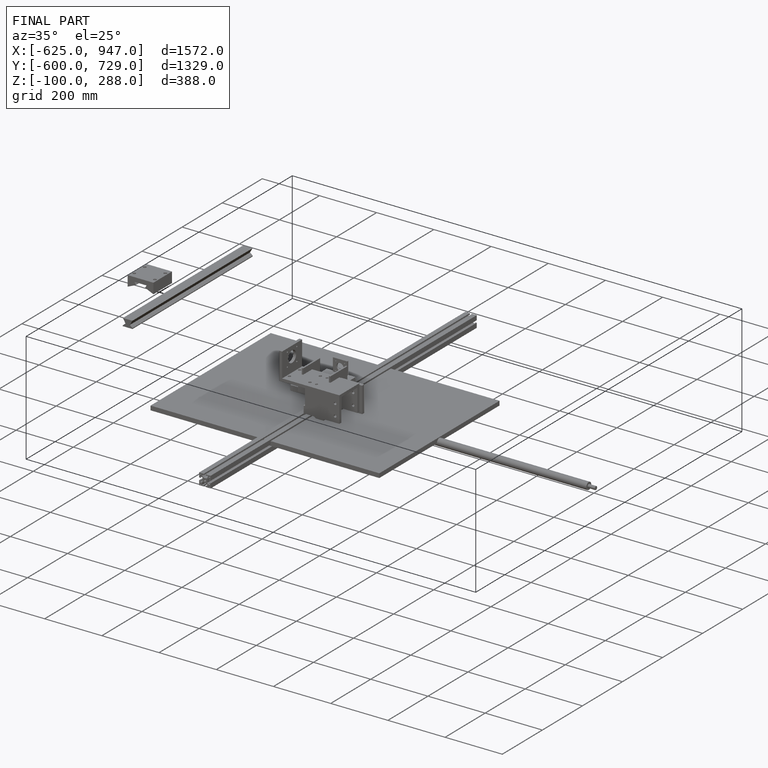
[diagram: finished part — iso view with bounding-box wireframe]
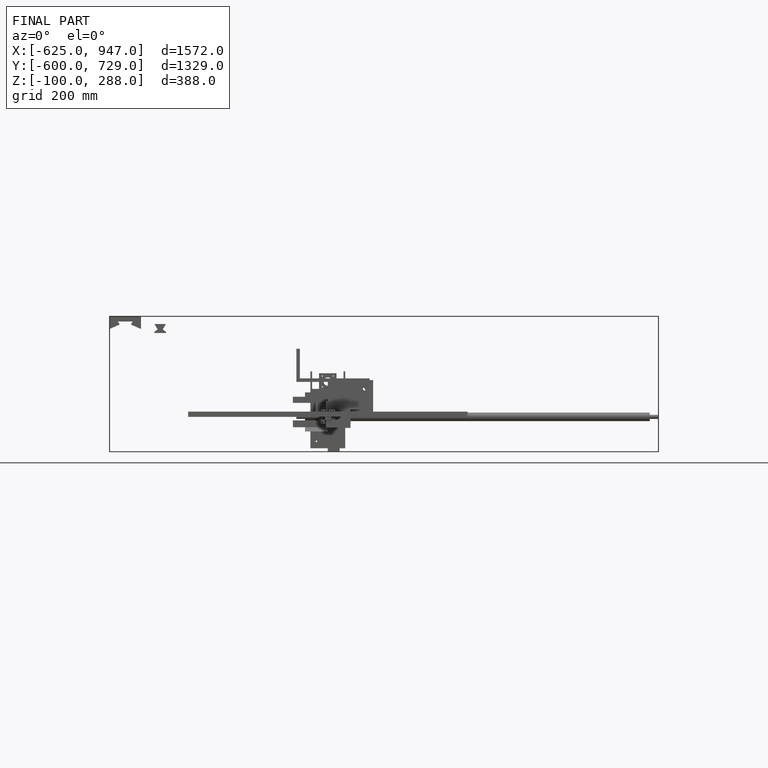
[diagram: finished part — front view with bounding-box wireframe]
